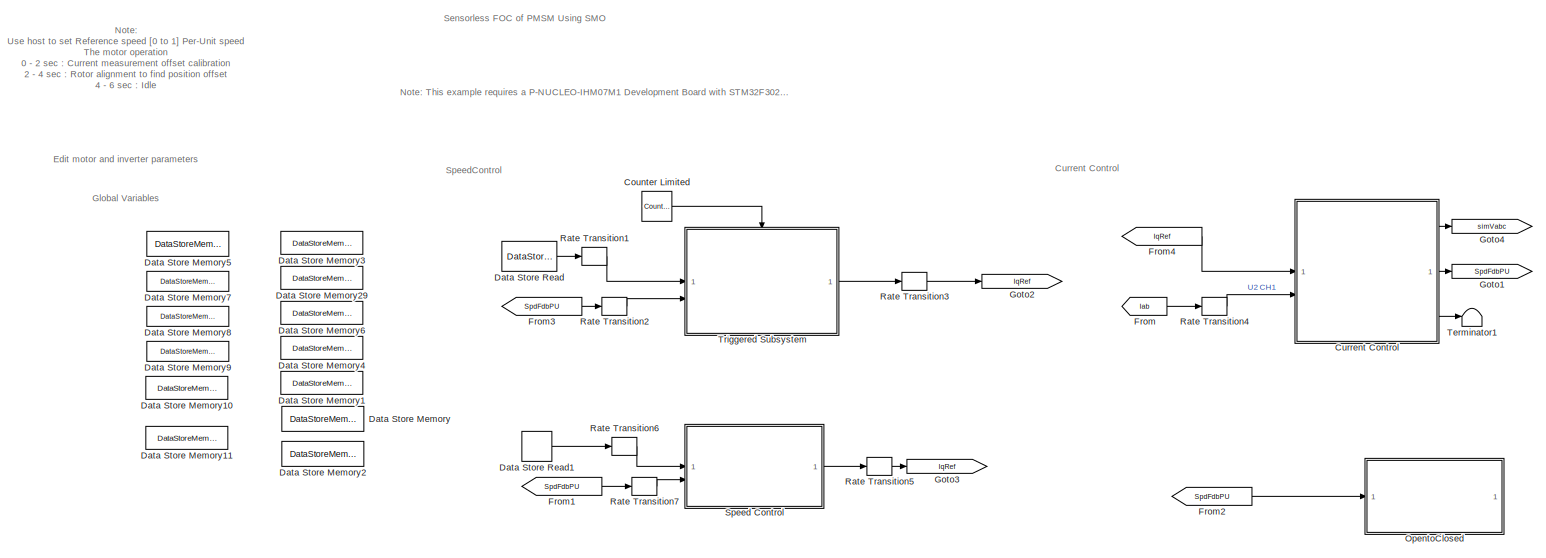
[diagram: root canvas - part 1/2, most of the canvas]
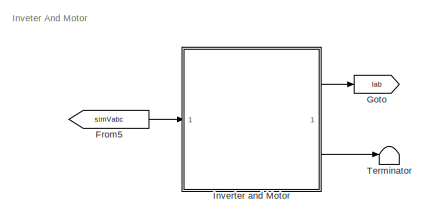
[diagram: root canvas - part 2/2, middle right region]
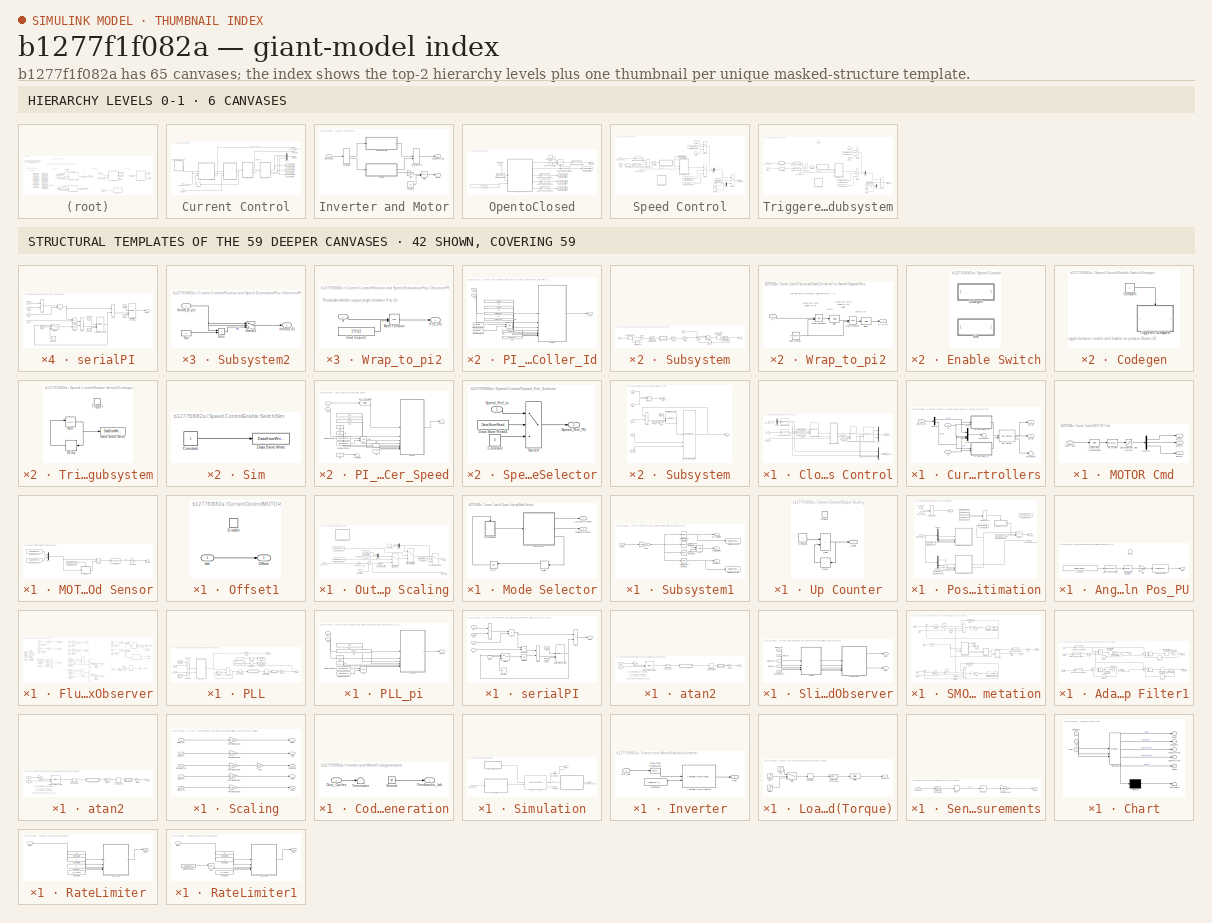
[diagram: thumbnail index - top-2 hierarchy levels (6 canvases) + 42 structural-template representatives of the remaining 59 canvases]
MODEL slx_b1277f1f082a
KIND model
CONFIG AbsTol = auto
CONFIG EnableMultiTasking = on
CONFIG FixedStep = .00005
CONFIG InitFcn = MBD_FOC_SENSORLESS_DATA;
CONFIG MaxStep = auto
CONFIG MinStep = auto
CONFIG PostLoadFcn = MBD_FOC_SENSORLESS_DATA;
CONFIG RelTol = 1e-3
CONFIG SampleTimeConstraint = Unconstrained
CONFIG SolverName = FixedStepDiscrete
CONFIG StartTime = 0.0
CONFIG StopTime = 4
WORKSPACE source: mxarray member
WORKSPACE mwTaskManagerKernelLatency = 1e-06
BLOCK [Reference] Counter Limited  REF=simulink/Sources/Counter
Limited
  Commented = on
  SourceBlock = simulink/Sources/Counter\nLimited
  SourceType = Counter Limited
BLOCK [SubSystem] Current Control
  VariantControl = Optimized
BLOCK [SubSystem] Current Control/Closed Loop Control
BLOCK [Reference] Current Control/Closed Loop Control/Clarke Transform  REF=mcbcontrolslib/Clarke Transform
  SourceBlock = mcbcontrolslib/Clarke Transform
  SourceType = Clarke Transform
BLOCK [SubSystem] Current Control/Closed Loop Control/Current_Controllers
BLOCK [Reference] Current Control/Closed Loop Control/Current_Controllers/DQ Limiter  REF=mcbcontrolslib/DQ Limiter
  SourceBlock = mcbcontrolslib/DQ Limiter
  SourceType = DQ Limiter
BLOCK [Demux] Current Control/Closed Loop Control/Current_Controllers/Demux
  Outputs = 2
BLOCK [Inport] Current Control/Closed Loop Control/Current_Controllers/Id
BLOCK [Inport] Current Control/Closed Loop Control/Current_Controllers/Idq_ref_PU
  Port = 3
BLOCK [Inport] Current Control/Closed Loop Control/Current_Controllers/Iq
  Port = 2
BLOCK [Mux] Current Control/Closed Loop Control/Current_Controllers/Mux
  DisplayOption = bar
BLOCK [SubSystem] Current Control/Closed Loop Control/Current_Controllers/PI_Controller_Id
  NameLocation = top
BLOCK [Logic] Current Control/Closed Loop Control/Current_Controllers/PI_Controller_Id/AND
  AllPortsSameDT = off
  IconShape = distinctive
  OutDataTypeStr = boolean
BLOCK [DataStoreRead] Current Control/Closed Loop Control/Current_Controllers/PI_Controller_Id/Data Store Read
  DataStoreName = Enable
  IndexOptions = Index vector (dialog)
  Indices = 1
  OutputSizes = 1
BLOCK [DataStoreRead] Current Control/Closed Loop Control/Current_Controllers/PI_Controller_Id/Data Store Read1
  DataStoreName = EnableFOC
  IndexOptions = Index vector (dialog)
  Indices = 1
  OutputSizes = 1
BLOCK [Inport] Current Control/Closed Loop Control/Current_Controllers/PI_Controller_Id/I_fb
  Port = 2
BLOCK [Inport] Current Control/Closed Loop Control/Current_Controllers/PI_Controller_Id/I_ref
BLOCK [Constant] Current Control/Closed Loop Control/Current_Controllers/PI_Controller_Id/Ki
  OutDataTypeStr = dataType
  SampleTime = -1
  Value = curPI.KiD
BLOCK [Constant] Current Control/Closed Loop Control/Current_Controllers/PI_Controller_Id/Ki1
  NameLocation = top
  OutDataTypeStr = dataType
  SampleTime = -1
  Value = curPI.UpLimitIntgD
BLOCK [Constant] Current Control/Closed Loop Control/Current_Controllers/PI_Controller_Id/Ki2
  NameLocation = top
  OutDataTypeStr = dataType
  SampleTime = -1
  Value = curPI.LoLimitIntgD
BLOCK [Constant] Current Control/Closed Loop Control/Current_Controllers/PI_Controller_Id/Ki3
  NameLocation = top
  OutDataTypeStr = dataType
  SampleTime = -1
  Value = curPI.LoLimitD
BLOCK [Constant] Current Control/Closed Loop Control/Current_Controllers/PI_Controller_Id/Ki4
  NameLocation = top
  OutDataTypeStr = dataType
  SampleTime = -1
  Value = curPI.UpLimitD
BLOCK [Constant] Current Control/Closed Loop Control/Current_Controllers/PI_Controller_Id/Kp
  NameLocation = top
  OutDataTypeStr = dataType
  SampleTime = -1
  Value = curPI.KpD
BLOCK [Outport] Current Control/Closed Loop Control/Current_Controllers/PI_Controller_Id/V_ref
  VectorParamsAs1DForOutWhenUnconnected = off
BLOCK [SubSystem] Current Control/Closed Loop Control/Current_Controllers/PI_Controller_Id/serialPI
BLOCK [Sum] Current Control/Closed Loop Control/Current_Controllers/PI_Controller_Id/serialPI/Add
  IconShape = rectangular
  Inputs = +-
BLOCK [Sum] Current Control/Closed Loop Control/Current_Controllers/PI_Controller_Id/serialPI/Add1
  IconShape = rectangular
BLOCK [Sum] Current Control/Closed Loop Control/Current_Controllers/PI_Controller_Id/serialPI/Add2
  IconShape = rectangular
BLOCK [Constant] Current Control/Closed Loop Control/Current_Controllers/PI_Controller_Id/serialPI/Constant
  NameLocation = top
  OutDataTypeStr = dataType
  Value = 0
BLOCK [Inport] Current Control/Closed Loop Control/Current_Controllers/PI_Controller_Id/serialPI/Fdb
  Port = 2
BLOCK [Inport] Current Control/Closed Loop Control/Current_Controllers/PI_Controller_Id/serialPI/Ki
  Port = 4
BLOCK [Inport] Current Control/Closed Loop Control/Current_Controllers/PI_Controller_Id/serialPI/Kp
  Port = 3
BLOCK [Inport] Current Control/Closed Loop Control/Current_Controllers/PI_Controller_Id/serialPI/LmLo
  Port = 9
BLOCK [Inport] Current Control/Closed Loop Control/Current_Controllers/PI_Controller_Id/serialPI/LmLoIntg
  Port = 6
BLOCK [Inport] Current Control/Closed Loop Control/Current_Controllers/PI_Controller_Id/serialPI/LmUp
  Port = 8
BLOCK [Inport] Current Control/Closed Loop Control/Current_Controllers/PI_Controller_Id/serialPI/LmUpIntg
  Port = 5
BLOCK [Outport] Current Control/Closed Loop Control/Current_Controllers/PI_Controller_Id/serialPI/Output
BLOCK [Product] Current Control/Closed Loop Control/Current_Controllers/PI_Controller_Id/serialPI/Product1
  OutDataTypeStr = dataType
BLOCK [Inport] Current Control/Closed Loop Control/Current_Controllers/PI_Controller_Id/serialPI/Ref
BLOCK [Inport] Current Control/Closed Loop Control/Current_Controllers/PI_Controller_Id/serialPI/RstUi
  Port = 7
BLOCK [Reference] Current Control/Closed Loop Control/Current_Controllers/PI_Controller_Id/serialPI/Saturation Dynamic  REF=simulink/Discontinuities/Saturation
Dynamic
  SourceBlock = simulink/Discontinuities/Saturation\nDynamic
  SourceType = Saturation Dynamic
BLOCK [Reference] Current Control/Closed Loop Control/Current_Controllers/PI_Controller_Id/serialPI/Saturation Dynamic1  REF=simulink/Discontinuities/Saturation
Dynamic
  SourceBlock = simulink/Discontinuities/Saturation\nDynamic
  SourceType = Saturation Dynamic
BLOCK [Switch] Current Control/Closed Loop Control/Current_Controllers/PI_Controller_Id/serialPI/Switch2
  Criteria = u2 > Threshold
  InputSameDT = off
  OutDataTypeStr = dataType
  SaturateOnIntegerOverflow = off
BLOCK [UnitDelay] Current Control/Closed Loop Control/Current_Controllers/PI_Controller_Id/serialPI/Unit Delay
  HasFrameUpgradeWarning = on
  SampleTime = -1
BLOCK [Product] Current Control/Closed Loop Control/Current_Controllers/PI_Controller_Id/serialPI/Up
  OutDataTypeStr = dataType
BLOCK [SubSystem] Current Control/Closed Loop Control/Current_Controllers/PI_Controller_Iq
  NameLocation = top
BLOCK [Logic] Current Control/Closed Loop Control/Current_Controllers/PI_Controller_Iq/AND
  AllPortsSameDT = off
  IconShape = distinctive
  OutDataTypeStr = boolean
BLOCK [DataStoreRead] Current Control/Closed Loop Control/Current_Controllers/PI_Controller_Iq/Data Store Read
  DataStoreName = Enable
  IndexOptions = Index vector (dialog)
  Indices = 1
  OutputSizes = 1
BLOCK [DataStoreRead] Current Control/Closed Loop Control/Current_Controllers/PI_Controller_Iq/Data Store Read1
  DataStoreName = EnableFOC
  IndexOptions = Index vector (dialog)
  Indices = 1
  OutputSizes = 1
BLOCK [Inport] Current Control/Closed Loop Control/Current_Controllers/PI_Controller_Iq/I_fb
  Port = 2
BLOCK [Inport] Current Control/Closed Loop Control/Current_Controllers/PI_Controller_Iq/I_ref
BLOCK [Constant] Current Control/Closed Loop Control/Current_Controllers/PI_Controller_Iq/Ki
  OutDataTypeStr = dataType
  SampleTime = -1
  Value = curPI.KiQ
BLOCK [Constant] Current Control/Closed Loop Control/Current_Controllers/PI_Controller_Iq/Ki1
  NameLocation = top
  OutDataTypeStr = dataType
  SampleTime = -1
  Value = curPI.UpLimitIntgQ
BLOCK [Constant] Current Control/Closed Loop Control/Current_Controllers/PI_Controller_Iq/Ki2
  NameLocation = top
  OutDataTypeStr = dataType
  SampleTime = -1
  Value = curPI.LoLimitIntgQ
BLOCK [Constant] Current Control/Closed Loop Control/Current_Controllers/PI_Controller_Iq/Ki3
  NameLocation = top
  OutDataTypeStr = dataType
  SampleTime = -1
  Value = curPI.LoLimitQ
BLOCK [Constant] Current Control/Closed Loop Control/Current_Controllers/PI_Controller_Iq/Ki4
  NameLocation = top
  OutDataTypeStr = dataType
  SampleTime = -1
  Value = curPI.UpLimitQ
BLOCK [Constant] Current Control/Closed Loop Control/Current_Controllers/PI_Controller_Iq/Kp
  NameLocation = top
  OutDataTypeStr = dataType
  SampleTime = -1
  Value = curPI.KpQ
BLOCK [Outport] Current Control/Closed Loop Control/Current_Controllers/PI_Controller_Iq/V_ref
  VectorParamsAs1DForOutWhenUnconnected = off
BLOCK [SubSystem] Current Control/Closed Loop Control/Current_Controllers/PI_Controller_Iq/serialPI
BLOCK [Sum] Current Control/Closed Loop Control/Current_Controllers/PI_Controller_Iq/serialPI/Add
  IconShape = rectangular
  Inputs = +-
BLOCK [Sum] Current Control/Closed Loop Control/Current_Controllers/PI_Controller_Iq/serialPI/Add1
  IconShape = rectangular
BLOCK [Sum] Current Control/Closed Loop Control/Current_Controllers/PI_Controller_Iq/serialPI/Add2
  IconShape = rectangular
BLOCK [Constant] Current Control/Closed Loop Control/Current_Controllers/PI_Controller_Iq/serialPI/Constant
  NameLocation = top
  OutDataTypeStr = dataType
  Value = 0
BLOCK [Inport] Current Control/Closed Loop Control/Current_Controllers/PI_Controller_Iq/serialPI/Fdb
  Port = 2
BLOCK [Inport] Current Control/Closed Loop Control/Current_Controllers/PI_Controller_Iq/serialPI/Ki
  Port = 4
BLOCK [Inport] Current Control/Closed Loop Control/Current_Controllers/PI_Controller_Iq/serialPI/Kp
  Port = 3
BLOCK [Inport] Current Control/Closed Loop Control/Current_Controllers/PI_Controller_Iq/serialPI/LmLo
  Port = 9
BLOCK [Inport] Current Control/Closed Loop Control/Current_Controllers/PI_Controller_Iq/serialPI/LmLoIntg
  Port = 6
BLOCK [Inport] Current Control/Closed Loop Control/Current_Controllers/PI_Controller_Iq/serialPI/LmUp
  Port = 8
BLOCK [Inport] Current Control/Closed Loop Control/Current_Controllers/PI_Controller_Iq/serialPI/LmUpIntg
  Port = 5
BLOCK [Outport] Current Control/Closed Loop Control/Current_Controllers/PI_Controller_Iq/serialPI/Output
BLOCK [Product] Current Control/Closed Loop Control/Current_Controllers/PI_Controller_Iq/serialPI/Product1
  OutDataTypeStr = dataType
BLOCK [Inport] Current Control/Closed Loop Control/Current_Controllers/PI_Controller_Iq/serialPI/Ref
BLOCK [Inport] Current Control/Closed Loop Control/Current_Controllers/PI_Controller_Iq/serialPI/RstUi
  Port = 7
BLOCK [Reference] Current Control/Closed Loop Control/Current_Controllers/PI_Controller_Iq/serialPI/Saturation Dynamic  REF=simulink/Discontinuities/Saturation
Dynamic
  SourceBlock = simulink/Discontinuities/Saturation\nDynamic
  SourceType = Saturation Dynamic
BLOCK [Reference] Current Control/Closed Loop Control/Current_Controllers/PI_Controller_Iq/serialPI/Saturation Dynamic1  REF=simulink/Discontinuities/Saturation
Dynamic
  SourceBlock = simulink/Discontinuities/Saturation\nDynamic
  SourceType = Saturation Dynamic
BLOCK [Switch] Current Control/Closed Loop Control/Current_Controllers/PI_Controller_Iq/serialPI/Switch2
  Criteria = u2 > Threshold
  InputSameDT = off
  OutDataTypeStr = dataType
  SaturateOnIntegerOverflow = off
BLOCK [UnitDelay] Current Control/Closed Loop Control/Current_Controllers/PI_Controller_Iq/serialPI/Unit Delay
  HasFrameUpgradeWarning = on
  SampleTime = -1
BLOCK [Product] Current Control/Closed Loop Control/Current_Controllers/PI_Controller_Iq/serialPI/Up
  OutDataTypeStr = dataType
BLOCK [Terminator] Current Control/Closed Loop Control/Current_Controllers/Terminator
BLOCK [Terminator] Current Control/Closed Loop Control/Current_Controllers/Terminator1
BLOCK [Outport] Current Control/Closed Loop Control/Current_Controllers/Vd_ref
  VectorParamsAs1DForOutWhenUnconnected = off
BLOCK [Outport] Current Control/Closed Loop Control/Current_Controllers/Vq_ref
  Port = 2
  VectorParamsAs1DForOutWhenUnconnected = off
BLOCK [Demux] Current Control/Closed Loop Control/Demux
  Outputs = 2
BLOCK [From] Current Control/Closed Loop Control/From
  GotoTag = sinTheta
BLOCK [From] Current Control/Closed Loop Control/From1
  GotoTag = cosTheta
BLOCK [Goto] Current Control/Closed Loop Control/Goto
  GotoTag = sinTheta
BLOCK [Goto] Current Control/Closed Loop Control/Goto1
  GotoTag = cosTheta
BLOCK [Inport] Current Control/Closed Loop Control/Iab_meas_PU
BLOCK [Inport] Current Control/Closed Loop Control/Idq_ref_PU
  Port = 3
BLOCK [Reference] Current Control/Closed Loop Control/Inverse Park Transform  REF=mcbcontrolslib/Inverse Park Transform
  SourceBlock = mcbcontrolslib/Inverse Park Transform
  SourceType = Inverse Park Transform
BLOCK [Mux] Current Control/Closed Loop Control/Mux
  DisplayOption = bar
BLOCK [Mux] Current Control/Closed Loop Control/Mux1
  DisplayOption = bar
  Inputs = 3
BLOCK [Reference] Current Control/Closed Loop Control/Park Transform  REF=mcbcontrolslib/Park Transform
  SourceBlock = mcbcontrolslib/Park Transform
  SourceType = Park Transform
BLOCK [Inport] Current Control/Closed Loop Control/Pos_PU
  Port = 2
BLOCK [Reference] Current Control/Closed Loop Control/Sine-Cosine Lookup  REF=mcbcontrolslib/Sine-Cosine Lookup
  SourceBlock = mcbcontrolslib/Sine-Cosine Lookup
  SourceType = Sine-Cosine Lookup
BLOCK [Reference] Current Control/Closed Loop Control/Space Vector Generator  REF=mcbcontrolslib/PWM Reference Generator
  SourceBlock = mcbcontrolslib/PWM Reference Generator
  SourceType = PWM Modulation
BLOCK [Outport] Current Control/Closed Loop Control/VIalphabeta_Fb
  Port = 2
BLOCK [Outport] Current Control/Closed Loop Control/Vabc in PU
  VectorParamsAs1DForOutWhenUnconnected = off
BLOCK [DataStoreWrite] Current Control/Data Store Write
  DataStoreElements = Pwm1Duty
  DataStoreName = Pwm1Duty
  IndexOptions = Index vector (dialog)
  Indices = 1
  OutputSizes = 1
BLOCK [DataStoreWrite] Current Control/Data Store Write1
  DataStoreElements = Pwm2Duty
  DataStoreName = Pwm2Duty
  IndexOptions = Index vector (dialog)
  Indices = 1
  OutputSizes = 1
BLOCK [DataStoreWrite] Current Control/Data Store Write2
  DataStoreElements = Pwm3Duty
  DataStoreName = Pwm3Duty
  IndexOptions = Index vector (dialog)
  Indices = 1
  OutputSizes = 1
BLOCK [Delay] Current Control/Delay
  DelayLength = 1
  InputPortMap = u0
  NameLocation = top
BLOCK [Inport] Current Control/Feedbacks_Iab
  Port = 2
BLOCK [Inport] Current Control/Idq_Ref
BLOCK [SubSystem] Current Control/MOTOR - Board Sensor
BLOCK [Sum] Current Control/MOTOR - Board Sensor/Add2
  IconShape = rectangular
  Inputs = +-
  OutDataTypeStr = int16
  RndMeth = Simplest
BLOCK [DataStoreRead] Current Control/MOTOR - Board Sensor/Data Store Read
  DataStoreName = EnCurOffset
  IndexOptions = Index vector (dialog)
  Indices = 1
  OutputSizes = 1
BLOCK [DataStoreRead] Current Control/MOTOR - Board Sensor/Data Store Read1
  DataStoreName = ADC_IA
  IndexOptions = Index vector (dialog)
  Indices = 1
  OutputSizes = 1
BLOCK [DataStoreRead] Current Control/MOTOR - Board Sensor/Data Store Read2
  DataStoreName = ADC_IB
  IndexOptions = Index vector (dialog)
  Indices = 1
  OutputSizes = 1
BLOCK [Outport] Current Control/MOTOR - Board Sensor/Iab_PU
  OutDataTypeStr = dataType
  VectorParamsAs1DForOutWhenUnconnected = off
BLOCK [Mux] Current Control/MOTOR - Board Sensor/Mux2
  DisplayOption = bar
  Inputs = 2
BLOCK [SubSystem] Current Control/MOTOR - Board Sensor/Offset1
BLOCK [EnablePort] Current Control/MOTOR - Board Sensor/Offset1/Enable
BLOCK [Inport] Current Control/MOTOR - Board Sensor/Offset1/Iab
BLOCK [Outport] Current Control/MOTOR - Board Sensor/Offset1/Offset
BLOCK [DataTypeConversion] Current Control/MOTOR - Board Sensor/Scale Ia Ib to (A)
  ConvertRealWorld = Stored Integer (SI)
  OutDataTypeStr = fixdt(1,16, 1.65/2048 / (inverter.Rshunt * inverter.opamp_Gain),0)
  RndMeth = Floor
  SaturateOnIntegerOverflow = off
BLOCK [Gain] Current Control/MOTOR - Board Sensor/To Per-Unit
  Gain = inverter.invertingAmp/Ibase
  OutDataTypeStr = dataType
  OutMax = 1
  OutMin = -1
  RndMeth = Zero
BLOCK [SubSystem] Current Control/MOTOR Cmd
BLOCK [Bias] Current Control/MOTOR Cmd/Dead time Compensation
  Bias = round( (inverter.deadtime/5e-5) *PWM1max )
  SaturateOnIntegerOverflow = off
BLOCK [Demux] Current Control/MOTOR Cmd/Demux
  Outputs = 3
BLOCK [Inport] Current Control/MOTOR Cmd/PWM (abc)
BLOCK [Saturate] Current Control/MOTOR Cmd/Saturation low side turn on
  LowerLimit = round( (inverter.deadtime/5e-5) *PWM1max )* 2
  UpperLimit = PWM1max
BLOCK [DataTypeConversion] Current Control/MOTOR Cmd/int to uint
  ConvertRealWorld = Stored Integer (SI)
  OutDataTypeStr = uint16
  RndMeth = Floor
  SaturateOnIntegerOverflow = off
BLOCK [Outport] Current Control/MOTOR Cmd/pwm1
  OutDataTypeStr = uint16
BLOCK [Outport] Current Control/MOTOR Cmd/pwm2
  OutDataTypeStr = uint16
  Port = 2
BLOCK [Outport] Current Control/MOTOR Cmd/pwm3
  OutDataTypeStr = uint16
  Port = 3
BLOCK [Mux] Current Control/Mux1
  DisplayOption = bar
  Inputs = 3
BLOCK [SubSystem] Current Control/Output Scaling
BLOCK [Constant] Current Control/Output Scaling/Constant
  OutDataTypeStr = dataType
  SampleTime = -1
  Value = 0.5
BLOCK [Constant] Current Control/Output Scaling/Constant2
  OutDataTypeStr = Inherit: Inherit via back propagation
  Value = 0
BLOCK [Constant] Current Control/Output Scaling/Constant3
  OutDataTypeStr = Inherit: Inherit via back propagation
  Value = 1371/4
BLOCK [Constant] Current Control/Output Scaling/Constant4
  OutDataTypeStr = Inherit: Inherit via back propagation
  Value = 2128/4
BLOCK [DataStoreRead] Current Control/Output Scaling/Data Store Read
  DataStoreName = EnCurOffset
  IndexOptions = Index vector (dialog)
  Indices = 1
  OutputSizes = 1
BLOCK [DataStoreRead] Current Control/Output Scaling/Data Store Read1
  DataStoreName = EnPosOffset
  IndexOptions = Index vector (dialog)
  Indices = 1
  OutputSizes = 1
BLOCK [DataStoreRead] Current Control/Output Scaling/Enable
  DataStoreName = Enable
  IndexOptions = Index vector (dialog)
  Indices = 1
  OutputSizes = 1
BLOCK [Switch] Current Control/Output Scaling/Enable motor control
  Criteria = u2 ~= 0
  InputSameDT = off
  SaturateOnIntegerOverflow = off
  Threshold = 250
BLOCK [SubSystem] Current Control/Output Scaling/Mode Selector
  Commented = on
BLOCK [Outport] Current Control/Output Scaling/Mode Selector/CurrentOffsetEn
BLOCK [Delay] Current Control/Output Scaling/Mode Selector/Delay
  DelayLength = 1
  InputPortMap = u0
BLOCK [Logic] Current Control/Output Scaling/Mode Selector/NOT
  AllPortsSameDT = off
  IconShape = distinctive
  Operator = NOT
  OutDataTypeStr = boolean
BLOCK [Outport] Current Control/Output Scaling/Mode Selector/PositionOffsetEn
  Port = 2
BLOCK [SubSystem] Current Control/Output Scaling/Mode Selector/Subsystem1
BLOCK [Logic] Current Control/Output Scaling/Mode Selector/Subsystem1/AND
  AllPortsSameDT = off
  IconShape = distinctive
  OutDataTypeStr = boolean
BLOCK [Reference] Current Control/Output Scaling/Mode Selector/Subsystem1/Compare To Constant  REF=simulink/Logic and Bit
Operations/Compare
To Constant
  SourceBlock = simulink/Logic and Bit\nOperations/Compare\nTo Constant
  SourceType = Compare To Constant
BLOCK [Reference] Current Control/Output Scaling/Mode Selector/Subsystem1/Compare To Constant1  REF=simulink/Logic and Bit
Operations/Compare
To Constant
  SourceBlock = simulink/Logic and Bit\nOperations/Compare\nTo Constant
  SourceType = Compare To Constant
BLOCK [Reference] Current Control/Output Scaling/Mode Selector/Subsystem1/Compare To Constant2  REF=simulink/Logic and Bit
Operations/Compare
To Constant
  SourceBlock = simulink/Logic and Bit\nOperations/Compare\nTo Constant
  SourceType = Compare To Constant
BLOCK [Reference] Current Control/Output Scaling/Mode Selector/Subsystem1/Compare To Constant3  REF=simulink/Logic and Bit
Operations/Compare
To Constant
  SourceBlock = simulink/Logic and Bit\nOperations/Compare\nTo Constant
  SourceType = Compare To Constant
BLOCK [Inport] Current Control/Output Scaling/Mode Selector/Subsystem1/Count
BLOCK [Outport] Current Control/Output Scaling/Mode Selector/Subsystem1/Current Offset
BLOCK [DataStoreWrite] Current Control/Output Scaling/Mode Selector/Subsystem1/Data Store Write
  DataStoreName = EnCurOffset
  IndexOptions = Index vector (dialog)
  Indices = 1
  OutputSizes = 1
BLOCK [DataStoreWrite] Current Control/Output Scaling/Mode Selector/Subsystem1/Data Store Write1
  DataStoreName = EnableFOC
  IndexOptions = Index vector (dialog)
  Indices = 1
  OutputSizes = 1
BLOCK [Outport] Current Control/Output Scaling/Mode Selector/Subsystem1/EnableFOC
  Port = 3
BLOCK [Gain] Current Control/Output Scaling/Mode Selector/Subsystem1/Gain
  Gain = 1/PWM_frequency
  OutDataTypeStr = dataType2
  RndMeth = Simplest
BLOCK [Outport] Current Control/Output Scaling/Mode Selector/Subsystem1/PositionOffset
  Port = 2
BLOCK [SubSystem] Current Control/Output Scaling/Mode Selector/Up Counter
BLOCK [Sum] Current Control/Output Scaling/Mode Selector/Up Counter/Add1
  IconShape = rectangular
  SaturateOnIntegerOverflow = on
BLOCK [Constant] Current Control/Output Scaling/Mode Selector/Up Counter/Constant
  OutDataTypeStr = uint32
BLOCK [Outport] Current Control/Output Scaling/Mode Selector/Up Counter/Count
  InitialOutput = 0
BLOCK [Delay] Current Control/Output Scaling/Mode Selector/Up Counter/Delay
  DelayLength = 1
  InputPortMap = u0
BLOCK [EnablePort] Current Control/Output Scaling/Mode Selector/Up Counter/Enable
  StatesWhenEnabling = reset
BLOCK [Mux] Current Control/Output Scaling/Mux1
  DisplayOption = bar
  Inputs = 3
BLOCK [Mux] Current Control/Output Scaling/Mux2
  DisplayOption = bar
  Inputs = 3
BLOCK [Gain] Current Control/Output Scaling/One_by_Two
  Gain = 0.5
  OutDataTypeStr = Inherit: Same as input
  RndMeth = Simplest
BLOCK [Outport] Current Control/Output Scaling/PWM
  Port = 2
BLOCK [Gain] Current Control/Output Scaling/Scale_to_PWM_Counter_PRD
  Gain = PWM1max + 1
  OutDataTypeStr = uint16
  RndMeth = Simplest
BLOCK [Sum] Current Control/Output Scaling/Sum
  AccumDataTypeStr = Inherit: Same as first input
  Inputs = |++
BLOCK [Switch] Current Control/Output Scaling/Switch for Current offset calibration
  Criteria = u2 ~= 0
  InputSameDT = off
  SaturateOnIntegerOverflow = off
  Threshold = 250
BLOCK [Switch] Current Control/Output Scaling/Switch for rotor alignment
  Criteria = u2 ~= 0
  InputSameDT = off
  SaturateOnIntegerOverflow = off
  Threshold = 250
BLOCK [Inport] Current Control/Output Scaling/Vabc_PU
BLOCK [Outport] Current Control/Output Scaling/Vabc_Sim
BLOCK [SubSystem] Current Control/Position and Speed Estimation
BLOCK [SubSystem] Current Control/Position and Speed Estimation/AngleGen Pos_PU
  TreatAsAtomicUnit = on
BLOCK [Constant] Current Control/Position and Speed Estimation/AngleGen Pos_PU/Constant
  OutDataTypeStr = dataType
  Value = Speed_Ref_openLoop/pmsm.N_max
BLOCK [DataTypeConversion] Current Control/Position and Speed Estimation/AngleGen Pos_PU/Data Type Conversion
  ConvertRealWorld = Stored Integer (SI)
  OutDataTypeStr = fixdt(1,32,20)
  RndMeth = Floor
  SaturateOnIntegerOverflow = off
BLOCK [DiscreteIntegrator] Current Control/Position and Speed Estimation/AngleGen Pos_PU/Discrete-Time Integrator
  ICPrevOutput = DiscIntNeverNeededParam
  ICPrevScaledInput = DiscIntNeverNeededParam
  InitialConditionSetting = Auto
  IntegratorMethod = Accumulation: Forward Euler
  LimitOutput = on
  LowerSaturationLimit = 0
  OutDataTypeStr = fixdt(1,32,20)
  SampleTime = -1
  UpperSaturationLimit = 500/Nbase
  gainval = 0.006
BLOCK [Gain] Current Control/Position and Speed Estimation/AngleGen Pos_PU/Gain
  Gain = Ts*pmsm.N_max*pmsm.p/60
  OutDataTypeStr = dataType
  ParamDataTypeStr = Inherit: Same as input
BLOCK [Reference] Current Control/Position and Speed Estimation/AngleGen Pos_PU/Position Generator  REF=mcbcontrolslib/Position Generator
  SourceBlock = mcbcontrolslib/Position Generator
  SourceType = Position Generator
BLOCK [ResetPort] Current Control/Position and Speed Estimation/AngleGen Pos_PU/Reset
  DisableCoverage = on
BLOCK [Outport] Current Control/Position and Speed Estimation/AngleGen Pos_PU/eps
BLOCK [DataStoreRead] Current Control/Position and Speed Estimation/Data Store Read
  DataStoreName = SpeedRef
  IndexOptions = Index vector (dialog)
  Indices = 1
  OutputSizes = 1
BLOCK [DataStoreRead] Current Control/Position and Speed Estimation/Data Store Read1
  DataStoreName = EnableFOC
  IndexOptions = Index vector (dialog)
  Indices = 1
  OutputSizes = 1
BLOCK [DataStoreRead] Current Control/Position and Speed Estimation/Data Store Read2
  DataStoreName = Enable
  IndexOptions = Index vector (dialog)
  Indices = 1
  OutputSizes = 1
BLOCK [DataStoreRead] Current Control/Position and Speed Estimation/Data Store Read3
  DataStoreName = EnableClosedLoop
  IndexOptions = Index vector (dialog)
  Indices = 1
  OutputSizes = 1
BLOCK [DataStoreRead] Current Control/Position and Speed Estimation/Data Store Read4
  Commented = on
  DataStoreName = EnPosOffset
  IndexOptions = Index vector (dialog)
  Indices = 1
  OutputSizes = 1
BLOCK [DataStoreRead] Current Control/Position and Speed Estimation/Data Store Read5
  DataStoreName = SpeedRef
  IndexOptions = Index vector (dialog)
  Indices = 1
  OutputSizes = 1
BLOCK [DataStoreWrite] Current Control/Position and Speed Estimation/Data Store Write
  DataStoreName = smoAnglePU
  IndexOptions = Index vector (dialog)
  Indices = 1
  OutputSizes = 1
BLOCK [Demux] Current Control/Position and Speed Estimation/Demux
BLOCK [Demux] Current Control/Position and Speed Estimation/Demux1
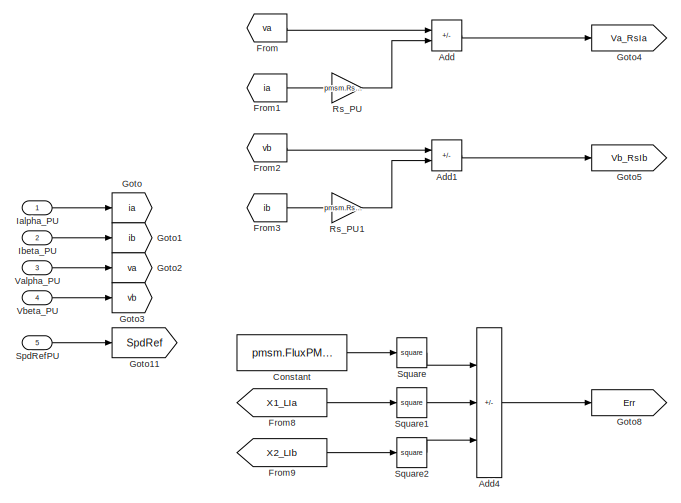
[diagram: Current Control/Position and Speed Estimation/Flux  Observer - part 1/2, middle left region]
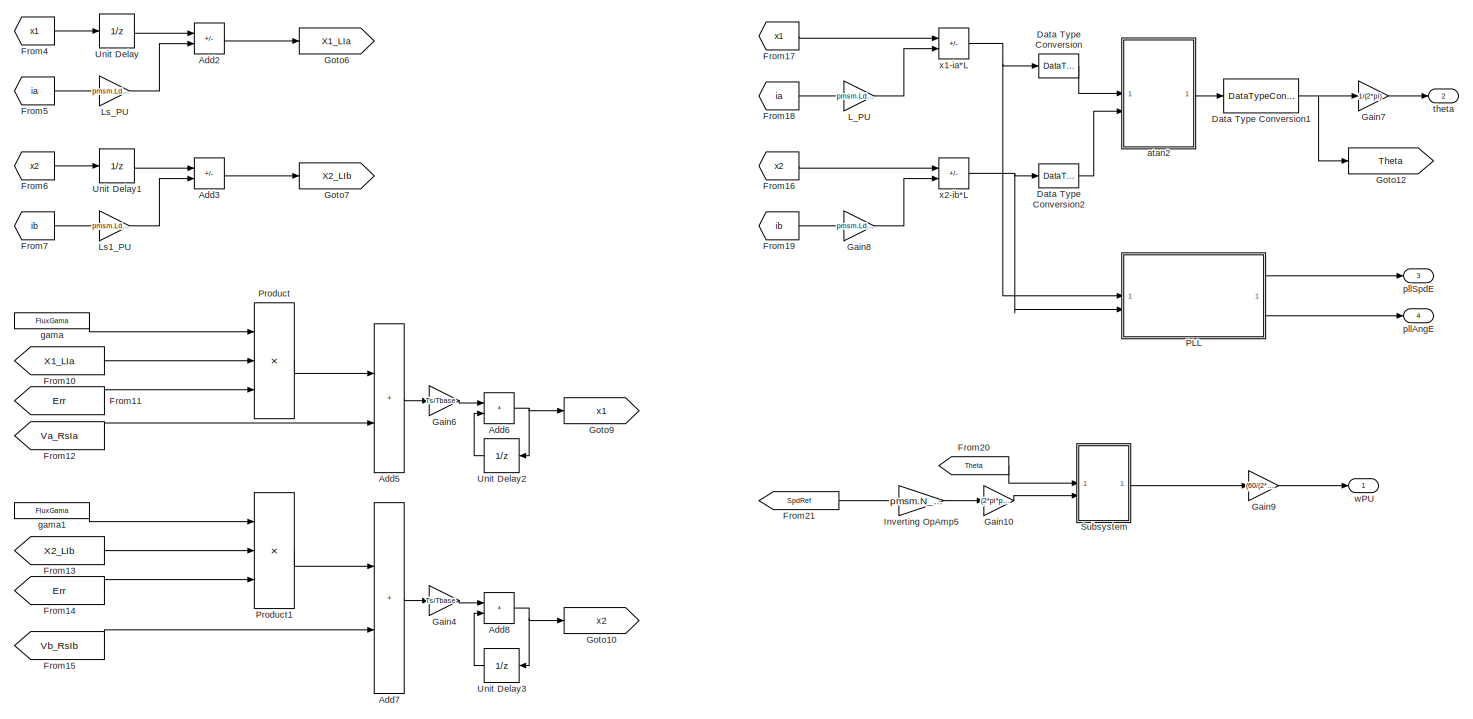
[diagram: Current Control/Position and Speed Estimation/Flux  Observer - part 2/2, right side, full height]
BLOCK [SubSystem] Current Control/Position and Speed Estimation/Flux  Observer
BLOCK [Sum] Current Control/Position and Speed Estimation/Flux  Observer/Add
  IconShape = rectangular
  Inputs = +-
BLOCK [Sum] Current Control/Position and Speed Estimation/Flux  Observer/Add1
  IconShape = rectangular
  Inputs = +-
BLOCK [Sum] Current Control/Position and Speed Estimation/Flux  Observer/Add2
  IconShape = rectangular
  Inputs = +-
BLOCK [Sum] Current Control/Position and Speed Estimation/Flux  Observer/Add3
  IconShape = rectangular
  Inputs = +-
BLOCK [Sum] Current Control/Position and Speed Estimation/Flux  Observer/Add4
  IconShape = rectangular
  Inputs = +--
BLOCK [Sum] Current Control/Position and Speed Estimation/Flux  Observer/Add5
  IconShape = rectangular
BLOCK [Sum] Current Control/Position and Speed Estimation/Flux  Observer/Add6
  IconShape = rectangular
BLOCK [Sum] Current Control/Position and Speed Estimation/Flux  Observer/Add7
  IconShape = rectangular
BLOCK [Sum] Current Control/Position and Speed Estimation/Flux  Observer/Add8
  IconShape = rectangular
BLOCK [Constant] Current Control/Position and Speed Estimation/Flux  Observer/Constant
  OutDataTypeStr = dataType
  Value = pmsm.FluxPM/Phibase
BLOCK [DataTypeConversion] Current Control/Position and Speed Estimation/Flux  Observer/Data Type Conversion
  OutDataTypeStr = dataType2
  RndMeth = Floor
  SaturateOnIntegerOverflow = off
BLOCK [DataTypeConversion] Current Control/Position and Speed Estimation/Flux  Observer/Data Type Conversion1
  OutDataTypeStr = fixdt(1,16,12)
  RndMeth = Floor
  SaturateOnIntegerOverflow = off
BLOCK [DataTypeConversion] Current Control/Position and Speed Estimation/Flux  Observer/Data Type Conversion2
  OutDataTypeStr = dataType2
  RndMeth = Floor
  SaturateOnIntegerOverflow = off
BLOCK [From] Current Control/Position and Speed Estimation/Flux  Observer/From
  GotoTag = va
BLOCK [From] Current Control/Position and Speed Estimation/Flux  Observer/From1
  GotoTag = ia
BLOCK [From] Current Control/Position and Speed Estimation/Flux  Observer/From10
  GotoTag = X1_LIa
BLOCK [From] Current Control/Position and Speed Estimation/Flux  Observer/From11
  GotoTag = Err
BLOCK [From] Current Control/Position and Speed Estimation/Flux  Observer/From12
  GotoTag = Va_RsIa
BLOCK [From] Current Control/Position and Speed Estimation/Flux  Observer/From13
  GotoTag = X2_LIb
BLOCK [From] Current Control/Position and Speed Estimation/Flux  Observer/From14
  GotoTag = Err
BLOCK [From] Current Control/Position and Speed Estimation/Flux  Observer/From15
  GotoTag = Vb_RsIb
BLOCK [From] Current Control/Position and Speed Estimation/Flux  Observer/From16
  GotoTag = x2
BLOCK [From] Current Control/Position and Speed Estimation/Flux  Observer/From17
  GotoTag = x1
BLOCK [From] Current Control/Position and Speed Estimation/Flux  Observer/From18
  GotoTag = ia
BLOCK [From] Current Control/Position and Speed Estimation/Flux  Observer/From19
  GotoTag = ib
BLOCK [From] Current Control/Position and Speed Estimation/Flux  Observer/From2
  GotoTag = vb
BLOCK [From] Current Control/Position and Speed Estimation/Flux  Observer/From20
  GotoTag = Theta
BLOCK [From] Current Control/Position and Speed Estimation/Flux  Observer/From21
  GotoTag = SpdRef
BLOCK [From] Current Control/Position and Speed Estimation/Flux  Observer/From3
  GotoTag = ib
BLOCK [From] Current Control/Position and Speed Estimation/Flux  Observer/From4
  GotoTag = x1
BLOCK [From] Current Control/Position and Speed Estimation/Flux  Observer/From5
  GotoTag = ia
BLOCK [From] Current Control/Position and Speed Estimation/Flux  Observer/From6
  GotoTag = x2
BLOCK [From] Current Control/Position and Speed Estimation/Flux  Observer/From7
  GotoTag = ib
BLOCK [From] Current Control/Position and Speed Estimation/Flux  Observer/From8
  GotoTag = X1_LIa
BLOCK [From] Current Control/Position and Speed Estimation/Flux  Observer/From9
  GotoTag = X2_LIb
BLOCK [Gain] Current Control/Position and Speed Estimation/Flux  Observer/Gain10
  Gain = (2*pi*pmsm.p)/60
  OutDataTypeStr = fixdt(1,16,3)
BLOCK [Gain] Current Control/Position and Speed Estimation/Flux  Observer/Gain4
  Gain = Ts/Tbase
  OutDataTypeStr = dataType
BLOCK [Gain] Current Control/Position and Speed Estimation/Flux  Observer/Gain6
  Gain = Ts/Tbase
  OutDataTypeStr = dataType
BLOCK [Gain] Current Control/Position and Speed Estimation/Flux  Observer/Gain7
  Gain = 1/(2*pi)
  OutDataTypeStr = dataType
BLOCK [Gain] Current Control/Position and Speed Estimation/Flux  Observer/Gain8
  Gain = pmsm.Ld/Lbase
  OutDataTypeStr = dataType
BLOCK [Gain] Current Control/Position and Speed Estimation/Flux  Observer/Gain9
  Gain = (60/(2*pi*pmsm.p))/pmsm.N_max
  OutDataTypeStr = dataType
BLOCK [Goto] Current Control/Position and Speed Estimation/Flux  Observer/Goto
  GotoTag = ia
BLOCK [Goto] Current Control/Position and Speed Estimation/Flux  Observer/Goto1
  GotoTag = ib
BLOCK [Goto] Current Control/Position and Speed Estimation/Flux  Observer/Goto10
  GotoTag = x2
BLOCK [Goto] Current Control/Position and Speed Estimation/Flux  Observer/Goto11
  GotoTag = SpdRef
BLOCK [Goto] Current Control/Position and Speed Estimation/Flux  Observer/Goto12
  GotoTag = Theta
BLOCK [Goto] Current Control/Position and Speed Estimation/Flux  Observer/Goto2
  GotoTag = va
BLOCK [Goto] Current Control/Position and Speed Estimation/Flux  Observer/Goto3
  GotoTag = vb
BLOCK [Goto] Current Control/Position and Speed Estimation/Flux  Observer/Goto4
  GotoTag = Va_RsIa
BLOCK [Goto] Current Control/Position and Speed Estimation/Flux  Observer/Goto5
  GotoTag = Vb_RsIb
BLOCK [Goto] Current Control/Position and Speed Estimation/Flux  Observer/Goto6
  GotoTag = X1_LIa
BLOCK [Goto] Current Control/Position and Speed Estimation/Flux  Observer/Goto7
  GotoTag = X2_LIb
BLOCK [Goto] Current Control/Position and Speed Estimation/Flux  Observer/Goto8
  GotoTag = Err
BLOCK [Goto] Current Control/Position and Speed Estimation/Flux  Observer/Goto9
  GotoTag = x1
BLOCK [Inport] Current Control/Position and Speed Estimation/Flux  Observer/Ialpha_PU
  NameLocation = top
BLOCK [Inport] Current Control/Position and Speed Estimation/Flux  Observer/Ibeta_PU
  NameLocation = top
  Port = 2
BLOCK [Gain] Current Control/Position and Speed Estimation/Flux  Observer/Inverting OpAmp5
  Gain = pmsm.N_max
  OutDataTypeStr = fixdt(1,16,2)
  RndMeth = Simplest
BLOCK [Gain] Current Control/Position and Speed Estimation/Flux  Observer/L_PU
  Gain = pmsm.Ld/Lbase
  OutDataTypeStr = dataType
BLOCK [Gain] Current Control/Position and Speed Estimation/Flux  Observer/Ls1_PU
  Gain = pmsm.Ld/Lbase
  OutDataTypeStr = dataType
BLOCK [Gain] Current Control/Position and Speed Estimation/Flux  Observer/Ls_PU
  Gain = pmsm.Ld/Lbase
  OutDataTypeStr = dataType
BLOCK [SubSystem] Current Control/Position and Speed Estimation/Flux  Observer/PLL
BLOCK [DataTypeConversion] Current Control/Position and Speed Estimation/Flux  Observer/PLL/Data Type Conversion1
  ConvertRealWorld = Stored Integer (SI)
  OutDataTypeStr = uint16
  RndMeth = Floor
  SaturateOnIntegerOverflow = off
BLOCK [DataTypeConversion] Current Control/Position and Speed Estimation/Flux  Observer/PLL/Data Type Conversion3
  OutDataTypeStr = fixdt(1,16,12)
  RndMeth = Floor
  SaturateOnIntegerOverflow = off
BLOCK [Gain] Current Control/Position and Speed Estimation/Flux  Observer/PLL/Gain1
  Gain = 600/pmsm.p
  OutDataTypeStr = dataType
BLOCK [Goto] Current Control/Position and Speed Estimation/Flux  Observer/PLL/Goto11
  GotoTag = sinEst
BLOCK [Goto] Current Control/Position and Speed Estimation/Flux  Observer/PLL/Goto12
  GotoTag = cosEst
BLOCK [Memory] Current Control/Position and Speed Estimation/Flux  Observer/PLL/Memory
BLOCK [Memory] Current Control/Position and Speed Estimation/Flux  Observer/PLL/Memory1
BLOCK [SubSystem] Current Control/Position and Speed Estimation/Flux  Observer/PLL/PLL_pi
BLOCK [Logic] Current Control/Position and Speed Estimation/Flux  Observer/PLL/PLL_pi/AND
  AllPortsSameDT = off
  IconShape = distinctive
  OutDataTypeStr = boolean
BLOCK [DataStoreRead] Current Control/Position and Speed Estimation/Flux  Observer/PLL/PLL_pi/Data Store Read1
  DataStoreName = EnableFOC
  IndexOptions = Index vector (dialog)
  Indices = 1
  OutputSizes = 1
BLOCK [DataStoreRead] Current Control/Position and Speed Estimation/Flux  Observer/PLL/PLL_pi/Data Store Read2
  DataStoreName = Enable
  IndexOptions = Index vector (dialog)
  Indices = 1
  OutputSizes = 1
BLOCK [Inport] Current Control/Position and Speed Estimation/Flux  Observer/PLL/PLL_pi/Fdb
  Port = 2
BLOCK [Constant] Current Control/Position and Speed Estimation/Flux  Observer/PLL/PLL_pi/Ki1
  NameLocation = top
  OutDataTypeStr = dataType
  SampleTime = -1
  Value = 0.0001
BLOCK [Constant] Current Control/Position and Speed Estimation/Flux  Observer/PLL/PLL_pi/Ki3
  NameLocation = top
  OutDataTypeStr = dataType
  SampleTime = -1
BLOCK [Constant] Current Control/Position and Speed Estimation/Flux  Observer/PLL/PLL_pi/Ki4
  NameLocation = top
  OutDataTypeStr = dataType
  SampleTime = -1
  Value = -1
BLOCK [Constant] Current Control/Position and Speed Estimation/Flux  Observer/PLL/PLL_pi/Kp1
  NameLocation = top
  OutDataTypeStr = dataType
  SampleTime = -1
  Value = 0.02
BLOCK [Inport] Current Control/Position and Speed Estimation/Flux  Observer/PLL/PLL_pi/Ref
BLOCK [Outport] Current Control/Position and Speed Estimation/Flux  Observer/PLL/PLL_pi/pll_spd
  VectorParamsAs1DForOutWhenUnconnected = off
BLOCK [SubSystem] Current Control/Position and Speed Estimation/Flux  Observer/PLL/PLL_pi/serialPI
BLOCK [Sum] Current Control/Position and Speed Estimation/Flux  Observer/PLL/PLL_pi/serialPI/Add
  IconShape = rectangular
  Inputs = +-
BLOCK [Sum] Current Control/Position and Speed Estimation/Flux  Observer/PLL/PLL_pi/serialPI/Add1
  IconShape = rectangular
BLOCK [Sum] Current Control/Position and Speed Estimation/Flux  Observer/PLL/PLL_pi/serialPI/Add2
  IconShape = rectangular
BLOCK [Constant] Current Control/Position and Speed Estimation/Flux  Observer/PLL/PLL_pi/serialPI/Constant
  NameLocation = top
  OutDataTypeStr = dataType
  Value = 0
BLOCK [Inport] Current Control/Position and Speed Estimation/Flux  Observer/PLL/PLL_pi/serialPI/Fdb
  Port = 2
BLOCK [Inport] Current Control/Position and Speed Estimation/Flux  Observer/PLL/PLL_pi/serialPI/Ki
  Port = 4
BLOCK [Inport] Current Control/Position and Speed Estimation/Flux  Observer/PLL/PLL_pi/serialPI/Kp
  Port = 3
BLOCK [Inport] Current Control/Position and Speed Estimation/Flux  Observer/PLL/PLL_pi/serialPI/LmLo
  Port = 6
BLOCK [Inport] Current Control/Position and Speed Estimation/Flux  Observer/PLL/PLL_pi/serialPI/LmUp
  Port = 5
BLOCK [Outport] Current Control/Position and Speed Estimation/Flux  Observer/PLL/PLL_pi/serialPI/Output
BLOCK [Product] Current Control/Position and Speed Estimation/Flux  Observer/PLL/PLL_pi/serialPI/Product1
  OutDataTypeStr = dataType
BLOCK [Inport] Current Control/Position and Speed Estimation/Flux  Observer/PLL/PLL_pi/serialPI/Ref
BLOCK [Inport] Current Control/Position and Speed Estimation/Flux  Observer/PLL/PLL_pi/serialPI/RstUi
  Port = 7
BLOCK [Reference] Current Control/Position and Speed Estimation/Flux  Observer/PLL/PLL_pi/serialPI/Saturation Dynamic  REF=simulink/Discontinuities/Saturation
Dynamic
  SourceBlock = simulink/Discontinuities/Saturation\nDynamic
  SourceType = Saturation Dynamic
BLOCK [Switch] Current Control/Position and Speed Estimation/Flux  Observer/PLL/PLL_pi/serialPI/Switch2
  Criteria = u2 > Threshold
  InputSameDT = off
  OutDataTypeStr = dataType
  SaturateOnIntegerOverflow = off
BLOCK [UnitDelay] Current Control/Position and Speed Estimation/Flux  Observer/PLL/PLL_pi/serialPI/Unit Delay
  HasFrameUpgradeWarning = on
  SampleTime = -1
BLOCK [Product] Current Control/Position and Speed Estimation/Flux  Observer/PLL/PLL_pi/serialPI/Up
  OutDataTypeStr = dataType
BLOCK [Sum] Current Control/Position and Speed Estimation/Flux  Observer/PLL/PLL_preAng
  IconShape = rectangular
  OutDataTypeStr = dataType
BLOCK [Product] Current Control/Position and Speed Estimation/Flux  Observer/PLL/Product2
  OutDataTypeStr = dataType
BLOCK [Product] Current Control/Position and Speed Estimation/Flux  Observer/PLL/Product3
  OutDataTypeStr = dataType
BLOCK [Reference] Current Control/Position and Speed Estimation/Flux  Observer/PLL/Sine-Cosine Lookup  REF=mcbcontrolslib/Sine-Cosine Lookup
  SourceBlock = mcbcontrolslib/Sine-Cosine Lookup
  SourceType = Sine-Cosine Lookup
BLOCK [SubSystem] Current Control/Position and Speed Estimation/Flux  Observer/PLL/Subsystem2
BLOCK [Constant] Current Control/Position and Speed Estimation/Flux  Observer/PLL/Subsystem2/2pi
  CopyFcn = if exist('tl_reset_reviewflag','file')==2,tl_reset_reviewflag(gcbh);end
  DeleteFcn = if exist('delete_tlblock','file')==2,delete_tlblock(gcbh);end
  NameChangeFcn = if exist('rename_tlblock','file')==2,rename_tlblock(gcbh);end
  OpenFcn = if exist('tl_open_blockdlg','file')==2,tl_open_blockdlg(gcbh);else,open_system(gcbh,'parameter');end
  OutDataTypeStr = fixdt(1,16,12)
  SampleTime = -1
  Value = 4
BLOCK [Sum] Current Control/Position and Speed Estimation/Flux  Observer/PLL/Subsystem2/Sum
  IconShape = rectangular
BLOCK [Switch] Current Control/Position and Speed Estimation/Flux  Observer/PLL/Subsystem2/Switch2
  Criteria = u2 > Threshold
  InputSameDT = off
  SaturateOnIntegerOverflow = off
BLOCK [Inport] Current Control/Position and Speed Estimation/Flux  Observer/PLL/Subsystem2/theta(-pi,pi)
BLOCK [Outport] Current Control/Position and Speed Estimation/Flux  Observer/PLL/Subsystem2/theta(0,4)
  VectorParamsAs1DForOutWhenUnconnected = off
BLOCK [Gain] Current Control/Position and Speed Estimation/Flux  Observer/PLL/ThetaPll
  Gain = 1/2^12
  OutDataTypeStr = dataType
BLOCK [UnitDelay] Current Control/Position and Speed Estimation/Flux  Observer/PLL/Unit Delay4
  HasFrameUpgradeWarning = on
  SampleTime = -1
BLOCK [SubSystem] Current Control/Position and Speed Estimation/Flux  Observer/PLL/Wrap_to_pi2
  VariantControl = VSS_STD
BLOCK [Math] Current Control/Position and Speed Estimation/Flux  Observer/PLL/Wrap_to_pi2/Math Function
  Operator = rem
  SignedPower = on
BLOCK [Constant] Current Control/Position and Speed Estimation/Flux  Observer/PLL/Wrap_to_pi2/load torque2
  OutDataTypeStr = uint16
  SampleTime = -1
  Value = 1*2^12
BLOCK [Inport] Current Control/Position and Speed Estimation/Flux  Observer/PLL/Wrap_to_pi2/θ
BLOCK [Outport] Current Control/Position and Speed Estimation/Flux  Observer/PLL/Wrap_to_pi2/θ (0,2π)
  VectorParamsAs1DForOutWhenUnconnected = off
BLOCK [From] Current Control/Position and Speed Estimation/Flux  Observer/PLL/cosEst
  GotoTag = cosEst
BLOCK [Inport] Current Control/Position and Speed Estimation/Flux  Observer/PLL/cosPhi
  OutDataTypeStr = dataType
BLOCK [Outport] Current Control/Position and Speed Estimation/Flux  Observer/PLL/pllAng
  Port = 2
  VectorParamsAs1DForOutWhenUnconnected = off
BLOCK [Outport] Current Control/Position and Speed Estimation/Flux  Observer/PLL/pllSpd
  OutDataTypeStr = dataType
BLOCK [From] Current Control/Position and Speed Estimation/Flux  Observer/PLL/sinEst
  GotoTag = sinEst
BLOCK [Inport] Current Control/Position and Speed Estimation/Flux  Observer/PLL/sinPhi
  OutDataTypeStr = dataType
  Port = 2
BLOCK [Product] Current Control/Position and Speed Estimation/Flux  Observer/Product
  Inputs = 3
  OutDataTypeStr = dataType
BLOCK [Product] Current Control/Position and Speed Estimation/Flux  Observer/Product1
  Inputs = 3
  OutDataTypeStr = dataType
BLOCK [Gain] Current Control/Position and Speed Estimation/Flux  Observer/Rs_PU
  Gain = pmsm.Rs/Rbase
  OutDataTypeStr = dataType
BLOCK [Gain] Current Control/Position and Speed Estimation/Flux  Observer/Rs_PU1
  Gain = pmsm.Rs/Rbase
  OutDataTypeStr = dataType
BLOCK [Inport] Current Control/Position and Speed Estimation/Flux  Observer/SpdRefPU
  NameLocation = top
  Port = 5
BLOCK [Math] Current Control/Position and Speed Estimation/Flux  Observer/Square
  Operator = square
BLOCK [Math] Current Control/Position and Speed Estimation/Flux  Observer/Square1
  Operator = square
BLOCK [Math] Current Control/Position and Speed Estimation/Flux  Observer/Square2
  Operator = square
BLOCK [SubSystem] Current Control/Position and Speed Estimation/Flux  Observer/Subsystem
BLOCK [DataTypeConversion] Current Control/Position and Speed Estimation/Flux  Observer/Subsystem/Data Type Conversion
  ConvertRealWorld = Stored Integer (SI)
  OutDataTypeStr = int32
  RndMeth = Floor
  SaturateOnIntegerOverflow = off
BLOCK [DataTypeConversion] Current Control/Position and Speed Estimation/Flux  Observer/Subsystem/Data Type Conversion1
  OutDataTypeStr = fixdt(1,16,2)
  RndMeth = Floor
  SaturateOnIntegerOverflow = off
BLOCK [Delay] Current Control/Position and Speed Estimation/Flux  Observer/Subsystem/Delay1
  DelayLength = 1
  InputPortMap = u0
  NameLocation = top
BLOCK [DiscreteIntegrator] Current Control/Position and Speed Estimation/Flux  Observer/Subsystem/Discrete-Time Integrator4
  ICPrevOutput = DiscIntNeverNeededParam
  ICPrevScaledInput = DiscIntNeverNeededParam
  InitialConditionSetting = Auto
  IntegratorMethod = Integration: Backward Euler
  OutDataTypeStr = fixdt(1,32,8)
  SampleTime = -1
BLOCK [Gain] Current Control/Position and Speed Estimation/Flux  Observer/Subsystem/Gain1
  Gain = 1/Ts
  OutDataTypeStr = fixdt(1,16,3)
BLOCK [Gain] Current Control/Position and Speed Estimation/Flux  Observer/Subsystem/Gain3
  Gain = 1/2^24
  OutDataTypeStr = fixdt(1,16,12)
BLOCK [Product] Current Control/Position and Speed Estimation/Flux  Observer/Subsystem/Product1
  OutDataTypeStr = fixdt(1,32,8)
BLOCK [Sum] Current Control/Position and Speed Estimation/Flux  Observer/Subsystem/Sum2
  AccumDataTypeStr = fixdt(1,16,12)
  Inputs = |+-
  NameLocation = top
  OutDataTypeStr = fixdt(1,32,24)
BLOCK [Sum] Current Control/Position and Speed Estimation/Flux  Observer/Subsystem/Sum4
  Inputs = |+-
BLOCK [UnitDelay] Current Control/Position and Speed Estimation/Flux  Observer/Subsystem/Unit Delay3
  HasFrameUpgradeWarning = on
  SampleTime = -1
BLOCK [SubSystem] Current Control/Position and Speed Estimation/Flux  Observer/Subsystem/Wrap_to_pi2
  VariantControl = VSS_STD
BLOCK [Bias] Current Control/Position and Speed Estimation/Flux  Observer/Subsystem/Wrap_to_pi2/Bias
  Bias = pi*16777216
  SaturateOnIntegerOverflow = off
BLOCK [Bias] Current Control/Position and Speed Estimation/Flux  Observer/Subsystem/Wrap_to_pi2/Bias1
  Bias = -pi*16777216
  SaturateOnIntegerOverflow = off
BLOCK [Math] Current Control/Position and Speed Estimation/Flux  Observer/Subsystem/Wrap_to_pi2/Math Function
  Operator = mod
  SignedPower = on
BLOCK [Math] Current Control/Position and Speed Estimation/Flux  Observer/Subsystem/Wrap_to_pi2/Math Function1
  Operator = mod
  SignedPower = on
BLOCK [Constant] Current Control/Position and Speed Estimation/Flux  Observer/Subsystem/Wrap_to_pi2/load torque1
  OutDataTypeStr = int32
  SampleTime = -1
  Value = 2*pi*16777216
BLOCK [Inport] Current Control/Position and Speed Estimation/Flux  Observer/Subsystem/Wrap_to_pi2/θ
BLOCK [Outport] Current Control/Position and Speed Estimation/Flux  Observer/Subsystem/Wrap_to_pi2/θ (-π,π)
  VectorParamsAs1DForOutWhenUnconnected = off
BLOCK [ZeroOrderHold] Current Control/Position and Speed Estimation/Flux  Observer/Subsystem/Zero-Order Hold2
  SampleTime = -1
BLOCK [Inport] Current Control/Position and Speed Estimation/Flux  Observer/Subsystem/w
  Port = 2
BLOCK [Inport] Current Control/Position and Speed Estimation/Flux  Observer/Subsystem/θ
BLOCK [Outport] Current Control/Position and Speed Estimation/Flux  Observer/Subsystem/ω_est
  VectorParamsAs1DForOutWhenUnconnected = off
BLOCK [UnitDelay] Current Control/Position and Speed Estimation/Flux  Observer/Unit Delay
  HasFrameUpgradeWarning = on
  SampleTime = -1
BLOCK [UnitDelay] Current Control/Position and Speed Estimation/Flux  Observer/Unit Delay1
  HasFrameUpgradeWarning = on
  SampleTime = -1
BLOCK [UnitDelay] Current Control/Position and Speed Estimation/Flux  Observer/Unit Delay2
  HasFrameUpgradeWarning = on
  NameLocation = top
  SampleTime = -1
BLOCK [UnitDelay] Current Control/Position and Speed Estimation/Flux  Observer/Unit Delay3
  HasFrameUpgradeWarning = on
  NameLocation = top
  SampleTime = -1
BLOCK [Inport] Current Control/Position and Speed Estimation/Flux  Observer/Valpha_PU
  NameLocation = top
  Port = 3
BLOCK [Inport] Current Control/Position and Speed Estimation/Flux  Observer/Vbeta_PU
  NameLocation = top
  Port = 4
BLOCK [SubSystem] Current Control/Position and Speed Estimation/Flux  Observer/atan2
BLOCK [DataTypeConversion] Current Control/Position and Speed Estimation/Flux  Observer/atan2/Data Type Conversion3
  OutDataTypeStr = fixdt(1,16,12)
  RndMeth = Floor
  SaturateOnIntegerOverflow = off
BLOCK [DataTypeConversion] Current Control/Position and Speed Estimation/Flux  Observer/atan2/Data Type Conversion4
  ConvertRealWorld = Stored Integer (SI)
  OutDataTypeStr = uint16
  RndMeth = Floor
  SaturateOnIntegerOverflow = off
BLOCK [Gain] Current Control/Position and Speed Estimation/Flux  Observer/atan2/Gain
  OutDataTypeStr = dataType2
BLOCK [Gain] Current Control/Position and Speed Estimation/Flux  Observer/atan2/Gain2
  Gain = 1/2^12
  OutDataTypeStr = fixdt(1,16,12)
BLOCK [SubSystem] Current Control/Position and Speed Estimation/Flux  Observer/atan2/Subsystem1
BLOCK [Constant] Current Control/Position and Speed Estimation/Flux  Observer/atan2/Subsystem1/2pi
  CopyFcn = if exist('tl_reset_reviewflag','file')==2,tl_reset_reviewflag(gcbh);end
  DeleteFcn = if exist('delete_tlblock','file')==2,delete_tlblock(gcbh);end
  NameChangeFcn = if exist('rename_tlblock','file')==2,rename_tlblock(gcbh);end
  OpenFcn = if exist('tl_open_blockdlg','file')==2,tl_open_blockdlg(gcbh);else,open_system(gcbh,'parameter');end
  OutDataTypeStr = fixdt(1,16,12)
  SampleTime = -1
  Value = 2*pi
BLOCK [Sum] Current Control/Position and Speed Estimation/Flux  Observer/atan2/Subsystem1/Sum
  IconShape = rectangular
BLOCK [Switch] Current Control/Position and Speed Estimation/Flux  Observer/atan2/Subsystem1/Switch2
  Criteria = u2 > Threshold
  InputSameDT = off
  SaturateOnIntegerOverflow = off
BLOCK [Inport] Current Control/Position and Speed Estimation/Flux  Observer/atan2/Subsystem1/theta(-pi,pi)
BLOCK [Outport] Current Control/Position and Speed Estimation/Flux  Observer/atan2/Subsystem1/theta(0,2pi)
  VectorParamsAs1DForOutWhenUnconnected = off
BLOCK [Trigonometry] Current Control/Position and Speed Estimation/Flux  Observer/atan2/Trigonometric Function
  ApproximationMethod = CORDIC
  Operator = atan2
BLOCK [SubSystem] Current Control/Position and Speed Estimation/Flux  Observer/atan2/Wrap_to_pi1
  VariantControl = VSS_STD
BLOCK [Math] Current Control/Position and Speed Estimation/Flux  Observer/atan2/Wrap_to_pi1/Math Function
  Operator = rem
  SignedPower = on
BLOCK [Constant] Current Control/Position and Speed Estimation/Flux  Observer/atan2/Wrap_to_pi1/load torque2
  OutDataTypeStr = uint16
  SampleTime = -1
  Value = 2*pi*2^12
BLOCK [Inport] Current Control/Position and Speed Estimation/Flux  Observer/atan2/Wrap_to_pi1/θ
BLOCK [Outport] Current Control/Position and Speed Estimation/Flux  Observer/atan2/Wrap_to_pi1/θ (0,2π)
  VectorParamsAs1DForOutWhenUnconnected = off
BLOCK [Inport] Current Control/Position and Speed Estimation/Flux  Observer/atan2/α
  NameLocation = top
BLOCK [Inport] Current Control/Position and Speed Estimation/Flux  Observer/atan2/β
  NameLocation = top
  Port = 2
BLOCK [Outport] Current Control/Position and Speed Estimation/Flux  Observer/atan2/θ
  VectorParamsAs1DForOutWhenUnconnected = off
BLOCK [Constant] Current Control/Position and Speed Estimation/Flux  Observer/gama
  OutDataTypeStr = dataType
  Value = FluxGama
BLOCK [Constant] Current Control/Position and Speed Estimation/Flux  Observer/gama1
  OutDataTypeStr = dataType
  Value = FluxGama
BLOCK [Outport] Current Control/Position and Speed Estimation/Flux  Observer/pllAngE
  NameLocation = top
  OutDataTypeStr = dataType
  Port = 4
BLOCK [Outport] Current Control/Position and Speed Estimation/Flux  Observer/pllSpdE
  NameLocation = top
  OutDataTypeStr = dataType
  Port = 3
BLOCK [Outport] Current Control/Position and Speed Estimation/Flux  Observer/theta
  NameLocation = top
  OutDataTypeStr = dataType
  Port = 2
BLOCK [Outport] Current Control/Position and Speed Estimation/Flux  Observer/wPU
  NameLocation = top
  OutDataTypeStr = dataType
BLOCK [Sum] Current Control/Position and Speed Estimation/Flux  Observer/x1-ia*L
  IconShape = rectangular
  Inputs = +-
  OutDataTypeStr = dataType
BLOCK [Sum] Current Control/Position and Speed Estimation/Flux  Observer/x2-ib*L
  IconShape = rectangular
  Inputs = +-
  OutDataTypeStr = dataType
BLOCK [Outport] Current Control/Position and Speed Estimation/Iab_PU
BLOCK [Inport] Current Control/Position and Speed Estimation/Iab_PU_In
  OutDataTypeStr = dataType
  SignalType = real
BLOCK [Inport] Current Control/Position and Speed Estimation/Iab_PU_Sim
  Port = 2
BLOCK [Outport] Current Control/Position and Speed Estimation/Pos_PU
  Port = 2
BLOCK [SubSystem] Current Control/Position and Speed Estimation/Sliding Mode Observer
  Commented = on
BLOCK [Inport] Current Control/Position and Speed Estimation/Sliding Mode Observer/Ialpha_PU
  NameLocation = top
BLOCK [Inport] Current Control/Position and Speed Estimation/Sliding Mode Observer/Ibeta_PU
  NameLocation = top
  Port = 2
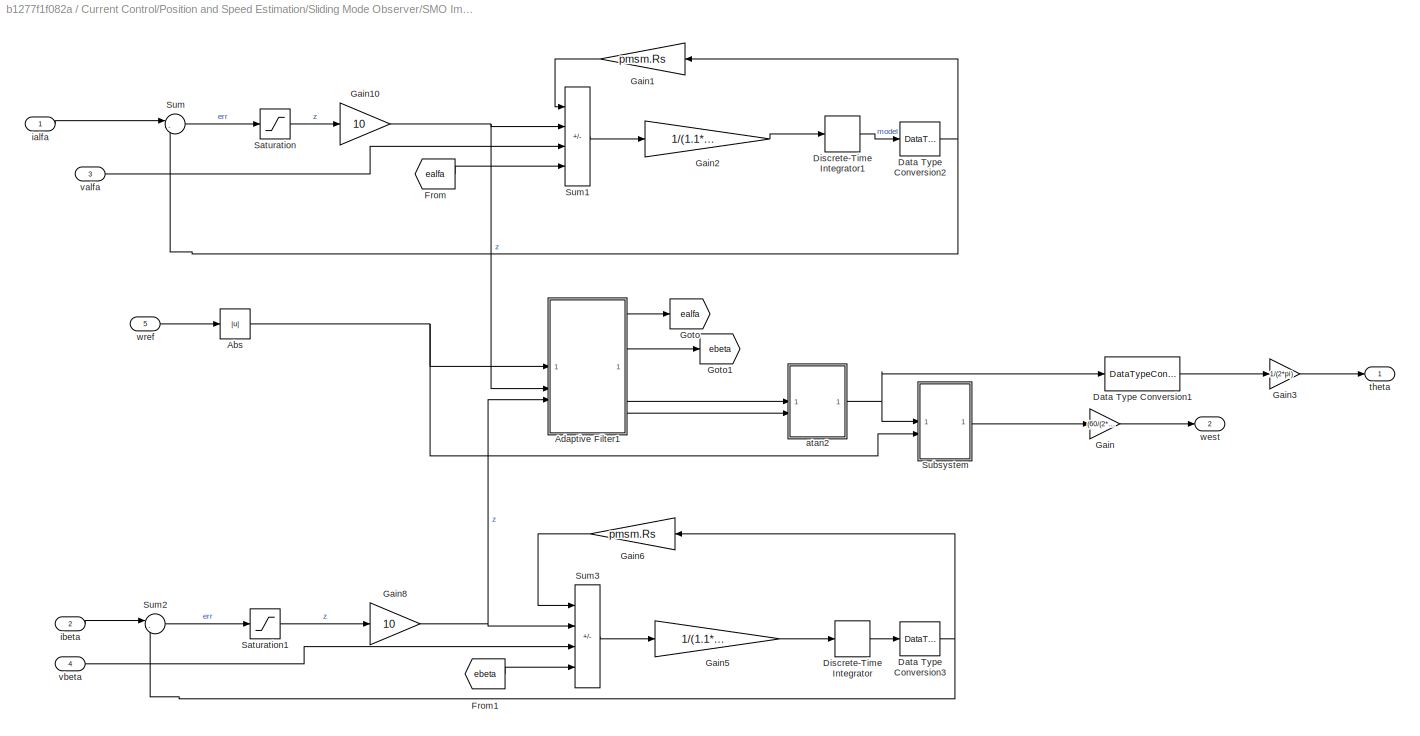
BLOCK [SubSystem] Current Control/Position and Speed Estimation/Sliding Mode Observer/SMO Implemetation
BLOCK [Abs] Current Control/Position and Speed Estimation/Sliding Mode Observer/SMO Implemetation/Abs
  SaturateOnIntegerOverflow = off
BLOCK [SubSystem] Current Control/Position and Speed Estimation/Sliding Mode Observer/SMO Implemetation/Adaptive Filter1
BLOCK [DataTypeConversion] Current Control/Position and Speed Estimation/Sliding Mode Observer/SMO Implemetation/Adaptive Filter1/Data Type Conversion
  OutDataTypeStr = fixdt(1,16,3)
  RndMeth = Floor
  SaturateOnIntegerOverflow = off
BLOCK [DataTypeConversion] Current Control/Position and Speed Estimation/Sliding Mode Observer/SMO Implemetation/Adaptive Filter1/Data Type Conversion1
  OutDataTypeStr = fixdt(1,16,11)
  RndMeth = Floor
  SaturateOnIntegerOverflow = off
BLOCK [DataTypeConversion] Current Control/Position and Speed Estimation/Sliding Mode Observer/SMO Implemetation/Adaptive Filter1/Data Type Conversion2
  OutDataTypeStr = fixdt(1,16,11)
  RndMeth = Floor
  SaturateOnIntegerOverflow = off
BLOCK [DataTypeConversion] Current Control/Position and Speed Estimation/Sliding Mode Observer/SMO Implemetation/Adaptive Filter1/Data Type Conversion3
  OutDataTypeStr = fixdt(1,16,11)
  RndMeth = Floor
  SaturateOnIntegerOverflow = off
BLOCK [DataTypeConversion] Current Control/Position and Speed Estimation/Sliding Mode Observer/SMO Implemetation/Adaptive Filter1/Data Type Conversion4
  OutDataTypeStr = fixdt(1,16,11)
  RndMeth = Floor
  SaturateOnIntegerOverflow = off
BLOCK [DataTypeConversion] Current Control/Position and Speed Estimation/Sliding Mode Observer/SMO Implemetation/Adaptive Filter1/Data Type Conversion5
  OutDataTypeStr = fixdt(1,16,11)
  RndMeth = Floor
  SaturateOnIntegerOverflow = off
BLOCK [DataTypeConversion] Current Control/Position and Speed Estimation/Sliding Mode Observer/SMO Implemetation/Adaptive Filter1/Data Type Conversion6
  OutDataTypeStr = fixdt(1,16,11)
  RndMeth = Floor
  SaturateOnIntegerOverflow = off
BLOCK [Delay] Current Control/Position and Speed Estimation/Sliding Mode Observer/SMO Implemetation/Adaptive Filter1/Delay
  DelayLength = 1
  InputPortMap = u0
  NameLocation = top
BLOCK [Delay] Current Control/Position and Speed Estimation/Sliding Mode Observer/SMO Implemetation/Adaptive Filter1/Delay1
  DelayLength = 1
  InputPortMap = u0
  NameLocation = top
BLOCK [Delay] Current Control/Position and Speed Estimation/Sliding Mode Observer/SMO Implemetation/Adaptive Filter1/Delay2
  DelayLength = 1
  InputPortMap = u0
  NameLocation = top
BLOCK [Delay] Current Control/Position and Speed Estimation/Sliding Mode Observer/SMO Implemetation/Adaptive Filter1/Delay3
  DelayLength = 1
  InputPortMap = u0
  NameLocation = top
BLOCK [DiscreteIntegrator] Current Control/Position and Speed Estimation/Sliding Mode Observer/SMO Implemetation/Adaptive Filter1/Discrete-Time Integrator
  ICPrevOutput = DiscIntNeverNeededParam
  ICPrevScaledInput = DiscIntNeverNeededParam
  InitialConditionSetting = Auto
  IntegratorMethod = Integration: Backward Euler
  OutDataTypeStr = fixdt(1,32,17)
  SampleTime = -1
BLOCK [DiscreteIntegrator] Current Control/Position and Speed Estimation/Sliding Mode Observer/SMO Implemetation/Adaptive Filter1/Discrete-Time Integrator1
  ICPrevOutput = DiscIntNeverNeededParam
  ICPrevScaledInput = DiscIntNeverNeededParam
  InitialConditionSetting = Auto
  IntegratorMethod = Integration: Backward Euler
  OutDataTypeStr = fixdt(1,32,17)
  SampleTime = -1
BLOCK [DiscreteIntegrator] Current Control/Position and Speed Estimation/Sliding Mode Observer/SMO Implemetation/Adaptive Filter1/Discrete-Time Integrator2
  ICPrevOutput = DiscIntNeverNeededParam
  ICPrevScaledInput = DiscIntNeverNeededParam
  InitialConditionSetting = Auto
  IntegratorMethod = Integration: Backward Euler
  OutDataTypeStr = fixdt(1,32,17)
  SampleTime = -1
BLOCK [DiscreteIntegrator] Current Control/Position and Speed Estimation/Sliding Mode Observer/SMO Implemetation/Adaptive Filter1/Discrete-Time Integrator3
  ICPrevOutput = DiscIntNeverNeededParam
  ICPrevScaledInput = DiscIntNeverNeededParam
  InitialConditionSetting = Auto
  IntegratorMethod = Integration: Backward Euler
  OutDataTypeStr = fixdt(1,32,17)
  SampleTime = -1
BLOCK [Product] Current Control/Position and Speed Estimation/Sliding Mode Observer/SMO Implemetation/Adaptive Filter1/Product
  OutDataTypeStr = fixdt(1,32,14)
BLOCK [Product] Current Control/Position and Speed Estimation/Sliding Mode Observer/SMO Implemetation/Adaptive Filter1/Product1
  OutDataTypeStr = fixdt(1,32,11)
BLOCK [Product] Current Control/Position and Speed Estimation/Sliding Mode Observer/SMO Implemetation/Adaptive Filter1/Product2
BLOCK [Product] Current Control/Position and Speed Estimation/Sliding Mode Observer/SMO Implemetation/Adaptive Filter1/Product3
BLOCK [Sum] Current Control/Position and Speed Estimation/Sliding Mode Observer/SMO Implemetation/Adaptive Filter1/Sum1
  Inputs = |+-
BLOCK [Sum] Current Control/Position and Speed Estimation/Sliding Mode Observer/SMO Implemetation/Adaptive Filter1/Sum2
  Inputs = |+-
BLOCK [Sum] Current Control/Position and Speed Estimation/Sliding Mode Observer/SMO Implemetation/Adaptive Filter1/Sum3
  Inputs = |+-
BLOCK [Sum] Current Control/Position and Speed Estimation/Sliding Mode Observer/SMO Implemetation/Adaptive Filter1/Sum4
  Inputs = |+-
BLOCK [Outport] Current Control/Position and Speed Estimation/Sliding Mode Observer/SMO Implemetation/Adaptive Filter1/ealfa
  NameLocation = top
  VectorParamsAs1DForOutWhenUnconnected = off
BLOCK [Outport] Current Control/Position and Speed Estimation/Sliding Mode Observer/SMO Implemetation/Adaptive Filter1/ealfa_fil
  NameLocation = top
  Port = 3
  VectorParamsAs1DForOutWhenUnconnected = off
BLOCK [Outport] Current Control/Position and Speed Estimation/Sliding Mode Observer/SMO Implemetation/Adaptive Filter1/ebeta
  NameLocation = top
  Port = 2
  VectorParamsAs1DForOutWhenUnconnected = off
BLOCK [Outport] Current Control/Position and Speed Estimation/Sliding Mode Observer/SMO Implemetation/Adaptive Filter1/ebeta_fil
  NameLocation = top
  Port = 4
  VectorParamsAs1DForOutWhenUnconnected = off
BLOCK [Inport] Current Control/Position and Speed Estimation/Sliding Mode Observer/SMO Implemetation/Adaptive Filter1/wc
BLOCK [Inport] Current Control/Position and Speed Estimation/Sliding Mode Observer/SMO Implemetation/Adaptive Filter1/zalfa
  Port = 2
BLOCK [Inport] Current Control/Position and Speed Estimation/Sliding Mode Observer/SMO Implemetation/Adaptive Filter1/zbeta
  Port = 3
BLOCK [DataTypeConversion] Current Control/Position and Speed Estimation/Sliding Mode Observer/SMO Implemetation/Data Type Conversion1
  OutDataTypeStr = fixdt(1,16,12)
  RndMeth = Floor
  SaturateOnIntegerOverflow = off
BLOCK [DataTypeConversion] Current Control/Position and Speed Estimation/Sliding Mode Observer/SMO Implemetation/Data Type Conversion2
  OutDataTypeStr = fixdt(1,16,12)
  RndMeth = Floor
  SaturateOnIntegerOverflow = off
BLOCK [DataTypeConversion] Current Control/Position and Speed Estimation/Sliding Mode Observer/SMO Implemetation/Data Type Conversion3
  OutDataTypeStr = fixdt(1,16,12)
  RndMeth = Floor
  SaturateOnIntegerOverflow = off
BLOCK [DiscreteIntegrator] Current Control/Position and Speed Estimation/Sliding Mode Observer/SMO Implemetation/Discrete-Time Integrator
  ICPrevOutput = DiscIntNeverNeededParam
  ICPrevScaledInput = DiscIntNeverNeededParam
  InitialConditionSetting = Auto
  OutDataTypeStr = fixdt(1,32,17)
  SampleTime = -1
BLOCK [DiscreteIntegrator] Current Control/Position and Speed Estimation/Sliding Mode Observer/SMO Implemetation/Discrete-Time Integrator1
  ICPrevOutput = DiscIntNeverNeededParam
  ICPrevScaledInput = DiscIntNeverNeededParam
  InitialConditionSetting = Auto
  OutDataTypeStr = fixdt(1,32,17)
  SampleTime = -1
BLOCK [From] Current Control/Position and Speed Estimation/Sliding Mode Observer/SMO Implemetation/From
  GotoTag = ealfa
BLOCK [From] Current Control/Position and Speed Estimation/Sliding Mode Observer/SMO Implemetation/From1
  GotoTag = ebeta
BLOCK [Gain] Current Control/Position and Speed Estimation/Sliding Mode Observer/SMO Implemetation/Gain
  Gain = (60/(2*pi*pmsm.p))/PU_System.N_base
  OutDataTypeStr = dataType
BLOCK [Gain] Current Control/Position and Speed Estimation/Sliding Mode Observer/SMO Implemetation/Gain1
  Gain = pmsm.Rs
  OutDataTypeStr = fixdt(1,16,12)
BLOCK [Gain] Current Control/Position and Speed Estimation/Sliding Mode Observer/SMO Implemetation/Gain10
  Gain = 10
  OutDataTypeStr = fixdt(1,16,8)
BLOCK [Gain] Current Control/Position and Speed Estimation/Sliding Mode Observer/SMO Implemetation/Gain2
  Gain = 1/(1.1*pmsm.Ld)
  OutDataTypeStr = fixdt(1,32,14)
BLOCK [Gain] Current Control/Position and Speed Estimation/Sliding Mode Observer/SMO Implemetation/Gain3
  Gain = 1/(2*pi)
  OutDataTypeStr = dataType
BLOCK [Gain] Current Control/Position and Speed Estimation/Sliding Mode Observer/SMO Implemetation/Gain5
  Gain = 1/(1.1*pmsm.Ld)
  OutDataTypeStr = fixdt(1,32,14)
BLOCK [Gain] Current Control/Position and Speed Estimation/Sliding Mode Observer/SMO Implemetation/Gain6
  Gain = pmsm.Rs
  OutDataTypeStr = fixdt(1,16,12)
BLOCK [Gain] Current Control/Position and Speed Estimation/Sliding Mode Observer/SMO Implemetation/Gain8
  Gain = 10
  OutDataTypeStr = fixdt(1,16,8)
BLOCK [Goto] Current Control/Position and Speed Estimation/Sliding Mode Observer/SMO Implemetation/Goto
  GotoTag = ealfa
BLOCK [Goto] Current Control/Position and Speed Estimation/Sliding Mode Observer/SMO Implemetation/Goto1
  GotoTag = ebeta
BLOCK [Saturate] Current Control/Position and Speed Estimation/Sliding Mode Observer/SMO Implemetation/Saturation
  LowerLimit = -0.7
  UpperLimit = 0.7
BLOCK [Saturate] Current Control/Position and Speed Estimation/Sliding Mode Observer/SMO Implemetation/Saturation1
  LowerLimit = -0.7
  UpperLimit = 0.7
BLOCK [SubSystem] Current Control/Position and Speed Estimation/Sliding Mode Observer/SMO Implemetation/Subsystem
BLOCK [DataTypeConversion] Current Control/Position and Speed Estimation/Sliding Mode Observer/SMO Implemetation/Subsystem/Data Type Conversion
  ConvertRealWorld = Stored Integer (SI)
  OutDataTypeStr = int32
  RndMeth = Floor
  SaturateOnIntegerOverflow = off
BLOCK [DataTypeConversion] Current Control/Position and Speed Estimation/Sliding Mode Observer/SMO Implemetation/Subsystem/Data Type Conversion1
  OutDataTypeStr = fixdt(1,16,2)
  RndMeth = Floor
  SaturateOnIntegerOverflow = off
BLOCK [Delay] Current Control/Position and Speed Estimation/Sliding Mode Observer/SMO Implemetation/Subsystem/Delay1
  DelayLength = 1
  InputPortMap = u0
  NameLocation = top
BLOCK [DiscreteIntegrator] Current Control/Position and Speed Estimation/Sliding Mode Observer/SMO Implemetation/Subsystem/Discrete-Time Integrator4
  ICPrevOutput = DiscIntNeverNeededParam
  ICPrevScaledInput = DiscIntNeverNeededParam
  InitialConditionSetting = Auto
  IntegratorMethod = Integration: Backward Euler
  OutDataTypeStr = fixdt(1,32,8)
  SampleTime = -1
BLOCK [Gain] Current Control/Position and Speed Estimation/Sliding Mode Observer/SMO Implemetation/Subsystem/Gain1
  Gain = 1/Ts
  OutDataTypeStr = fixdt(1,16,3)
BLOCK [Gain] Current Control/Position and Speed Estimation/Sliding Mode Observer/SMO Implemetation/Subsystem/Gain3
  Gain = 1/2^24
  OutDataTypeStr = fixdt(1,16,12)
BLOCK [Product] Current Control/Position and Speed Estimation/Sliding Mode Observer/SMO Implemetation/Subsystem/Product1
  OutDataTypeStr = fixdt(1,32,8)
BLOCK [Sum] Current Control/Position and Speed Estimation/Sliding Mode Observer/SMO Implemetation/Subsystem/Sum2
  AccumDataTypeStr = fixdt(1,16,12)
  Inputs = |+-
  NameLocation = top
  OutDataTypeStr = fixdt(1,32,24)
BLOCK [Sum] Current Control/Position and Speed Estimation/Sliding Mode Observer/SMO Implemetation/Subsystem/Sum4
  Inputs = |+-
BLOCK [UnitDelay] Current Control/Position and Speed Estimation/Sliding Mode Observer/SMO Implemetation/Subsystem/Unit Delay3
  HasFrameUpgradeWarning = on
  SampleTime = -1
BLOCK [SubSystem] Current Control/Position and Speed Estimation/Sliding Mode Observer/SMO Implemetation/Subsystem/Wrap_to_pi2
  VariantControl = VSS_STD
BLOCK [Bias] Current Control/Position and Speed Estimation/Sliding Mode Observer/SMO Implemetation/Subsystem/Wrap_to_pi2/Bias
  Bias = pi*16777216
  SaturateOnIntegerOverflow = off
BLOCK [Bias] Current Control/Position and Speed Estimation/Sliding Mode Observer/SMO Implemetation/Subsystem/Wrap_to_pi2/Bias1
  Bias = -pi*16777216
  SaturateOnIntegerOverflow = off
BLOCK [Math] Current Control/Position and Speed Estimation/Sliding Mode Observer/SMO Implemetation/Subsystem/Wrap_to_pi2/Math Function
  Operator = mod
  SignedPower = on
BLOCK [Math] Current Control/Position and Speed Estimation/Sliding Mode Observer/SMO Implemetation/Subsystem/Wrap_to_pi2/Math Function1
  Operator = mod
  SignedPower = on
BLOCK [Constant] Current Control/Position and Speed Estimation/Sliding Mode Observer/SMO Implemetation/Subsystem/Wrap_to_pi2/load torque1
  OutDataTypeStr = int32
  SampleTime = -1
  Value = 2*pi*16777216
BLOCK [Inport] Current Control/Position and Speed Estimation/Sliding Mode Observer/SMO Implemetation/Subsystem/Wrap_to_pi2/θ
BLOCK [Outport] Current Control/Position and Speed Estimation/Sliding Mode Observer/SMO Implemetation/Subsystem/Wrap_to_pi2/θ (-π,π)
  VectorParamsAs1DForOutWhenUnconnected = off
BLOCK [ZeroOrderHold] Current Control/Position and Speed Estimation/Sliding Mode Observer/SMO Implemetation/Subsystem/Zero-Order Hold2
  SampleTime = -1
BLOCK [Inport] Current Control/Position and Speed Estimation/Sliding Mode Observer/SMO Implemetation/Subsystem/w
  Port = 2
BLOCK [Inport] Current Control/Position and Speed Estimation/Sliding Mode Observer/SMO Implemetation/Subsystem/θ
BLOCK [Outport] Current Control/Position and Speed Estimation/Sliding Mode Observer/SMO Implemetation/Subsystem/ω_est
  VectorParamsAs1DForOutWhenUnconnected = off
BLOCK [Sum] Current Control/Position and Speed Estimation/Sliding Mode Observer/SMO Implemetation/Sum
  AccumDataTypeStr = fixdt(1,16,10)
  Inputs = |-+
  OutDataTypeStr = fixdt(1,16,10)
BLOCK [Sum] Current Control/Position and Speed Estimation/Sliding Mode Observer/SMO Implemetation/Sum1
  AccumDataTypeStr = fixdt(1,16,8)
  IconShape = rectangular
  Inputs = --+-
  OutDataTypeStr = fixdt(1,16,8)
BLOCK [Sum] Current Control/Position and Speed Estimation/Sliding Mode Observer/SMO Implemetation/Sum2
  AccumDataTypeStr = fixdt(1,16,10)
  Inputs = |-+
  OutDataTypeStr = fixdt(1,16,10)
BLOCK [Sum] Current Control/Position and Speed Estimation/Sliding Mode Observer/SMO Implemetation/Sum3
  AccumDataTypeStr = fixdt(1,16,8)
  IconShape = rectangular
  Inputs = --+-
  OutDataTypeStr = fixdt(1,16,8)
BLOCK [SubSystem] Current Control/Position and Speed Estimation/Sliding Mode Observer/SMO Implemetation/atan2
BLOCK [Bias] Current Control/Position and Speed Estimation/Sliding Mode Observer/SMO Implemetation/atan2/Bias2
  Bias = (pi/4)+(pi/4)
  SaturateOnIntegerOverflow = off
BLOCK [DataTypeConversion] Current Control/Position and Speed Estimation/Sliding Mode Observer/SMO Implemetation/atan2/Data Type Conversion3
  OutDataTypeStr = fixdt(1,16,12)
  RndMeth = Floor
  SaturateOnIntegerOverflow = off
BLOCK [DataTypeConversion] Current Control/Position and Speed Estimation/Sliding Mode Observer/SMO Implemetation/atan2/Data Type Conversion4
  ConvertRealWorld = Stored Integer (SI)
  OutDataTypeStr = uint16
  RndMeth = Floor
  SaturateOnIntegerOverflow = off
BLOCK [Gain] Current Control/Position and Speed Estimation/Sliding Mode Observer/SMO Implemetation/atan2/Gain2
  Gain = 1/2^12
  OutDataTypeStr = fixdt(1,16,12)
BLOCK [Gain] Current Control/Position and Speed Estimation/Sliding Mode Observer/SMO Implemetation/atan2/Gain3
  Gain = -1
  OutDataTypeStr = Inherit: Same as input
BLOCK [SubSystem] Current Control/Position and Speed Estimation/Sliding Mode Observer/SMO Implemetation/atan2/Subsystem1
BLOCK [Constant] Current Control/Position and Speed Estimation/Sliding Mode Observer/SMO Implemetation/atan2/Subsystem1/2pi
  CopyFcn = if exist('tl_reset_reviewflag','file')==2,tl_reset_reviewflag(gcbh);end
  DeleteFcn = if exist('delete_tlblock','file')==2,delete_tlblock(gcbh);end
  NameChangeFcn = if exist('rename_tlblock','file')==2,rename_tlblock(gcbh);end
  OpenFcn = if exist('tl_open_blockdlg','file')==2,tl_open_blockdlg(gcbh);else,open_system(gcbh,'parameter');end
  OutDataTypeStr = fixdt(1,16,12)
  SampleTime = -1
  Value = 2*pi
BLOCK [Sum] Current Control/Position and Speed Estimation/Sliding Mode Observer/SMO Implemetation/atan2/Subsystem1/Sum
  IconShape = rectangular
BLOCK [Switch] Current Control/Position and Speed Estimation/Sliding Mode Observer/SMO Implemetation/atan2/Subsystem1/Switch2
  Criteria = u2 > Threshold
  InputSameDT = off
  SaturateOnIntegerOverflow = off
BLOCK [Inport] Current Control/Position and Speed Estimation/Sliding Mode Observer/SMO Implemetation/atan2/Subsystem1/theta(-pi,pi)
BLOCK [Outport] Current Control/Position and Speed Estimation/Sliding Mode Observer/SMO Implemetation/atan2/Subsystem1/theta(0,2pi)
  VectorParamsAs1DForOutWhenUnconnected = off
BLOCK [Trigonometry] Current Control/Position and Speed Estimation/Sliding Mode Observer/SMO Implemetation/atan2/Trigonometric Function
  ApproximationMethod = CORDIC
  Operator = atan2
BLOCK [SubSystem] Current Control/Position and Speed Estimation/Sliding Mode Observer/SMO Implemetation/atan2/Wrap_to_pi1
  VariantControl = VSS_STD
BLOCK [Math] Current Control/Position and Speed Estimation/Sliding Mode Observer/SMO Implemetation/atan2/Wrap_to_pi1/Math Function
  Operator = rem
  SignedPower = on
BLOCK [Constant] Current Control/Position and Speed Estimation/Sliding Mode Observer/SMO Implemetation/atan2/Wrap_to_pi1/load torque2
  OutDataTypeStr = uint16
  SampleTime = -1
  Value = 2*pi*2^12
BLOCK [Inport] Current Control/Position and Speed Estimation/Sliding Mode Observer/SMO Implemetation/atan2/Wrap_to_pi1/θ
BLOCK [Outport] Current Control/Position and Speed Estimation/Sliding Mode Observer/SMO Implemetation/atan2/Wrap_to_pi1/θ (0,2π)
  VectorParamsAs1DForOutWhenUnconnected = off
BLOCK [Inport] Current Control/Position and Speed Estimation/Sliding Mode Observer/SMO Implemetation/atan2/α
  NameLocation = top
BLOCK [Inport] Current Control/Position and Speed Estimation/Sliding Mode Observer/SMO Implemetation/atan2/β
  NameLocation = top
  Port = 2
BLOCK [Outport] Current Control/Position and Speed Estimation/Sliding Mode Observer/SMO Implemetation/atan2/θ
  VectorParamsAs1DForOutWhenUnconnected = off
BLOCK [Inport] Current Control/Position and Speed Estimation/Sliding Mode Observer/SMO Implemetation/ialfa
  NameLocation = top
BLOCK [Inport] Current Control/Position and Speed Estimation/Sliding Mode Observer/SMO Implemetation/ibeta
  NameLocation = top
  Port = 2
BLOCK [Outport] Current Control/Position and Speed Estimation/Sliding Mode Observer/SMO Implemetation/theta
  VectorParamsAs1DForOutWhenUnconnected = off
BLOCK [Inport] Current Control/Position and Speed Estimation/Sliding Mode Observer/SMO Implemetation/valfa
  Port = 3
BLOCK [Inport] Current Control/Position and Speed Estimation/Sliding Mode Observer/SMO Implemetation/vbeta
  Port = 4
BLOCK [Outport] Current Control/Position and Speed Estimation/Sliding Mode Observer/SMO Implemetation/west
  Port = 2
  VectorParamsAs1DForOutWhenUnconnected = off
BLOCK [Inport] Current Control/Position and Speed Estimation/Sliding Mode Observer/SMO Implemetation/wref
  Port = 5
BLOCK [SubSystem] Current Control/Position and Speed Estimation/Sliding Mode Observer/Scaling
BLOCK [Gain] Current Control/Position and Speed Estimation/Sliding Mode Observer/Scaling/Gain
  Gain = (2*pi*pmsm.p)/60
  OutDataTypeStr = fixdt(1,16,3)
BLOCK [Outport] Current Control/Position and Speed Estimation/Sliding Mode Observer/Scaling/Ialpha
  NameLocation = top
BLOCK [Inport] Current Control/Position and Speed Estimation/Sliding Mode Observer/Scaling/Ialpha_PU
BLOCK [Outport] Current Control/Position and Speed Estimation/Sliding Mode Observer/Scaling/Ibeta
  NameLocation = top
  Port = 2
BLOCK [Inport] Current Control/Position and Speed Estimation/Sliding Mode Observer/Scaling/Ibeta_PU
  Port = 2
BLOCK [Gain] Current Control/Position and Speed Estimation/Sliding Mode Observer/Scaling/Inverting OpAmp1
  Gain = PU_System.I_base
  OutDataTypeStr = fixdt(1,16,12)
  RndMeth = Simplest
BLOCK [Gain] Current Control/Position and Speed Estimation/Sliding Mode Observer/Scaling/Inverting OpAmp2
  Gain = PU_System.I_base
  OutDataTypeStr = fixdt(1,16,12)
  RndMeth = Simplest
BLOCK [Gain] Current Control/Position and Speed Estimation/Sliding Mode Observer/Scaling/Inverting OpAmp3
  Gain = PU_System.V_base
  OutDataTypeStr = fixdt(1,16,11)
  RndMeth = Simplest
BLOCK [Gain] Current Control/Position and Speed Estimation/Sliding Mode Observer/Scaling/Inverting OpAmp4
  Gain = PU_System.V_base
  OutDataTypeStr = fixdt(1,16,11)
  RndMeth = Simplest
BLOCK [Gain] Current Control/Position and Speed Estimation/Sliding Mode Observer/Scaling/Inverting OpAmp5
  Gain = PU_System.N_base
  OutDataTypeStr = fixdt(1,16,2)
  RndMeth = Simplest
BLOCK [Outport] Current Control/Position and Speed Estimation/Sliding Mode Observer/Scaling/SpeedRef
  NameLocation = top
  Port = 5
BLOCK [Inport] Current Control/Position and Speed Estimation/Sliding Mode Observer/Scaling/SpeedRef_PU
  NameLocation = top
  Port = 5
BLOCK [Outport] Current Control/Position and Speed Estimation/Sliding Mode Observer/Scaling/Valpha
  NameLocation = top
  Port = 3
BLOCK [Inport] Current Control/Position and Speed Estimation/Sliding Mode Observer/Scaling/Valpha_PU
  Port = 3
BLOCK [Outport] Current Control/Position and Speed Estimation/Sliding Mode Observer/Scaling/Vbeta
  NameLocation = top
  Port = 4
BLOCK [Inport] Current Control/Position and Speed Estimation/Sliding Mode Observer/Scaling/Vbeta_PU
  Port = 4
BLOCK [Inport] Current Control/Position and Speed Estimation/Sliding Mode Observer/SpeedRef_PU
  NameLocation = top
  Port = 5
BLOCK [Inport] Current Control/Position and Speed Estimation/Sliding Mode Observer/Valpha_PU
  NameLocation = top
  Port = 3
BLOCK [Inport] Current Control/Position and Speed Estimation/Sliding Mode Observer/Vbeta_PU
  NameLocation = top
  Port = 4
BLOCK [Outport] Current Control/Position and Speed Estimation/Sliding Mode Observer/theta
  NameLocation = top
BLOCK [Outport] Current Control/Position and Speed Estimation/Sliding Mode Observer/west
  NameLocation = top
  Port = 2
BLOCK [Outport] Current Control/Position and Speed Estimation/Speed_meas_PU
  Port = 3
BLOCK [Switch] Current Control/Position and Speed Estimation/Switch
  Criteria = u2 > Threshold
  InputSameDT = off
  SaturateOnIntegerOverflow = off
BLOCK [Inport] Current Control/Position and Speed Estimation/VIalphabeta_Fb
  Port = 3
BLOCK [VariantSource] Current Control/Position and Speed Estimation/Variant Source
BLOCK [VariantSource] Current Control/Position and Speed Estimation/Variant Source3
BLOCK [Outport] Current Control/Speed_meas_PU
  Port = 2
BLOCK [Outport] Current Control/Vabc_Sim
BLOCK [Outport] Current Control/pwm123
  OutDataTypeStr = uint16
  Port = 3
BLOCK [DataStoreMemory] Data Store Memory
  DataStoreName = ADC_IA
  OutDataTypeStr = uint16
  ShowAdditionalParam = off
  WriteAfterWriteMsg = warning
BLOCK [DataStoreMemory] Data Store Memory1
  DataStoreName = EnCurOffset
  OutDataTypeStr = boolean
  ShowAdditionalParam = off
BLOCK [DataStoreMemory] Data Store Memory10
  DataStoreName = EnPosOffset
  OutDataTypeStr = boolean
  ShowAdditionalParam = off
BLOCK [DataStoreMemory] Data Store Memory11
  DataStoreName = VelRef
  OutDataTypeStr = single
  ShowAdditionalParam = off
BLOCK [DataStoreMemory] Data Store Memory2
  DataStoreName = ADC_IB
  OutDataTypeStr = uint16
  ShowAdditionalParam = off
  WriteAfterWriteMsg = warning
BLOCK [DataStoreMemory] Data Store Memory29
  DataStoreName = EnableFOC
  OutDataTypeStr = boolean
  ShowAdditionalParam = off
BLOCK [DataStoreMemory] Data Store Memory3
  DataStoreName = Enable
  OutDataTypeStr = boolean
  ShowAdditionalParam = off
BLOCK [DataStoreMemory] Data Store Memory4
  DataStoreName = SpeedRef
  OutDataTypeStr = single
  ShowAdditionalParam = off
BLOCK [DataStoreMemory] Data Store Memory5
  DataStoreName = Pwm1Duty
  NameLocation = top
  OutDataTypeStr = uint16
  ShowAdditionalParam = off
  WriteAfterWriteMsg = warning
BLOCK [DataStoreMemory] Data Store Memory6
  DataStoreName = EnableClosedLoop
  OutDataTypeStr = boolean
  ShowAdditionalParam = off
BLOCK [DataStoreMemory] Data Store Memory7
  DataStoreName = Pwm2Duty
  OutDataTypeStr = uint16
  ShowAdditionalParam = off
  WriteAfterWriteMsg = warning
BLOCK [DataStoreMemory] Data Store Memory8
  DataStoreName = Pwm3Duty
  OutDataTypeStr = uint16
  ShowAdditionalParam = off
  WriteAfterWriteMsg = warning
BLOCK [DataStoreMemory] Data Store Memory9
  DataStoreName = smoAnglePU
  OutDataTypeStr = dataType
  ShowAdditionalParam = off
  WriteAfterWriteMsg = warning
BLOCK [DataStoreRead] Data Store Read
  Commented = on
  DataStoreName = SpeedRef
  IndexOptions = Index vector (dialog)
  Indices = 1
  OutputSizes = 1
BLOCK [DataStoreRead] Data Store Read1
  DataStoreName = VelRef
  IndexOptions = Index vector (dialog)
  Indices = 1
  OutputSizes = 1
BLOCK [From] From
  GotoTag = Iab
BLOCK [From] From1
  GotoTag = SpdFdbPU
BLOCK [From] From2
  GotoTag = SpdFdbPU
BLOCK [From] From3
  Commented = on
  GotoTag = SpdFdbPU
BLOCK [From] From4
  GotoTag = IqRef
BLOCK [From] From5
  GotoTag = simVabc
BLOCK [Goto] Goto
  GotoTag = Iab
BLOCK [Goto] Goto1
  GotoTag = SpdFdbPU
BLOCK [Goto] Goto2
  Commented = on
  GotoTag = IqRef
BLOCK [Goto] Goto3
  GotoTag = IqRef
BLOCK [Goto] Goto4
  GotoTag = simVabc
BLOCK [SubSystem] Inverter and Motor
  RTWSystemCode = Reusable function
BLOCK [SubSystem] Inverter and Motor/Codegeneration
BLOCK [Inport] Inverter and Motor/Codegeneration/Duty_Cycles
BLOCK [Outport] Inverter and Motor/Codegeneration/Feedbacks_Iab
  VectorParamsAs1DForOutWhenUnconnected = off
BLOCK [Ground] Inverter and Motor/Codegeneration/Ground
BLOCK [Terminator] Inverter and Motor/Codegeneration/Terminator
BLOCK [Constant] Inverter and Motor/Constant
  Value = 1.0
BLOCK [Inport] Inverter and Motor/Duty_Cycles
BLOCK [Outport] Inverter and Motor/Feedbacks_Iab
  VectorParamsAs1DForOutWhenUnconnected = off
BLOCK [Gain] Inverter and Motor/Gain
  Gain = pmsm.p/2/pi
BLOCK [Math] Inverter and Motor/Mod
  Operator = mod
BLOCK [Outport] Inverter and Motor/MtrPos
  Port = 2
BLOCK [SubSystem] Inverter and Motor/Simulation
BLOCK [BusSelector] Inverter and Motor/Simulation/Bus Selector
  OutputSignals = MtrPos
BLOCK [Inport] Inverter and Motor/Simulation/Duty_Cycles
BLOCK [Outport] Inverter and Motor/Simulation/Feedbacks_Iab
  VectorParamsAs1DForOutWhenUnconnected = off
BLOCK [SubSystem] Inverter and Motor/Simulation/Inverter
BLOCK [Reference] Inverter and Motor/Simulation/Inverter/Average-Value Inverter  REF=mcbplantlib/Average-Value Inverter
  SourceBlock = mcbplantlib/Average-Value Inverter
  SourceType = Average Value Inverter
BLOCK [Constant] Inverter and Motor/Simulation/Inverter/Constant2
  OutDataTypeStr = single
  SampleTime = -1
  Value = inverter.V_dc
BLOCK [DataTypeConversion] Inverter and Motor/Simulation/Inverter/Data Type Conversion1
  OutDataTypeStr = single
  RndMeth = Simplest
  SaturateOnIntegerOverflow = off
BLOCK [Inport] Inverter and Motor/Simulation/Inverter/Duty_abc
BLOCK [Outport] Inverter and Motor/Simulation/Inverter/Vabc
  VectorParamsAs1DForOutWhenUnconnected = off
BLOCK [SubSystem] Inverter and Motor/Simulation/Load_Profile (Torque)
BLOCK [DataTypeConversion] Inverter and Motor/Simulation/Load_Profile (Torque)/Data Type Conversion
  OutDataTypeStr = single
  RndMeth = Floor
  SaturateOnIntegerOverflow = off
BLOCK [Reference] Inverter and Motor/Simulation/Load_Profile (Torque)/IIR Filter  REF=mcbcontrolslib/IIR Filter
  SourceBlock = mcbcontrolslib/IIR Filter
  SourceType = IIR Filter
BLOCK [Outport] Inverter and Motor/Simulation/Load_Profile (Torque)/Load_Trq
  VectorParamsAs1DForOutWhenUnconnected = off
BLOCK [RateLimiter] Inverter and Motor/Simulation/Load_Profile (Torque)/Rate Limiter1
  FallingSlewLimit = -0.2
  RisingSlewLimit = 0.5
  SampleTimeMode = inherited
BLOCK [Step] Inverter and Motor/Simulation/Load_Profile (Torque)/Step
  After = 0.25* pmsm.T_rated
  Before = 0.0* pmsm.T_rated
  Commented = on
  Time = 5
BLOCK [Step] Inverter and Motor/Simulation/Load_Profile (Torque)/Step1
  After = pmsm.T_rated
  Before = 0.25* pmsm.T_rated
  Commented = on
  Time = 8
BLOCK [Step] Inverter and Motor/Simulation/Load_Profile (Torque)/Step2
  After = 0
  Before = 1
  Commented = on
  Time = 8
BLOCK [Switch] Inverter and Motor/Simulation/Load_Profile (Torque)/Switch
  Criteria = u2 > Threshold
  InputSameDT = off
  SaturateOnIntegerOverflow = off
BLOCK [Outport] Inverter and Motor/Simulation/MtrPos
  Port = 2
BLOCK [SubSystem] Inverter and Motor/Simulation/Sensor_Measurements
BLOCK [DataTypeConversion] Inverter and Motor/Simulation/Sensor_Measurements/Data Type Conversion4
  OutDataTypeStr = single
  RndMeth = Simplest
  SaturateOnIntegerOverflow = off
BLOCK [Delay] Inverter and Motor/Simulation/Sensor_Measurements/Delay1
  DelayLength = Ts/Ts_simulink
  InputPortMap = u0
BLOCK [Outport] Inverter and Motor/Simulation/Sensor_Measurements/Iab_fb
  VectorParamsAs1DForOutWhenUnconnected = off
BLOCK [Gain] Inverter and Motor/Simulation/Sensor_Measurements/Inverting OpAmp
  Gain = 1/Ibase
  OutDataTypeStr = dataType
  RndMeth = Simplest
BLOCK [Inport] Inverter and Motor/Simulation/Sensor_Measurements/PhaseCurr
BLOCK [Selector] Inverter and Motor/Simulation/Sensor_Measurements/Selector
  IndexOptions = Index vector (dialog)
  Indices = [1 2]
  InputPortWidth = 3
  OutputSizes = 1
BLOCK [Reference] Inverter and Motor/Simulation/Surface Mount PMSM  REF=autolibpmsmexterior/Surface Mount PMSM
  SourceBlock = autolibpmsmexterior/Surface Mount PMSM
  SourceType = Surface Mount PMSM
BLOCK [Terminator] Inverter and Motor/Simulation/Terminator
BLOCK [VariantSink] Inverter and Motor/Variant Sink
BLOCK [VariantSource] Inverter and Motor/Variant Source
BLOCK [SubSystem] OpentoClosed
BLOCK [SubSystem] OpentoClosed/Chart
  ErrorFcn = Stateflow.Translate.translate
  PermitHierarchicalResolution = ExplicitOnly
  SFBlockType = Chart
  TreatAsAtomicUnit = on
BLOCK [Demux] OpentoClosed/Chart/ Demux 
  Outputs = 1
BLOCK [S-Function] OpentoClosed/Chart/ SFunction 
  EnableBusSupport = on
  FunctionName = sf_sfun
  PortCounts = [3 6]
  SFcnIsStateOwnerBlock = off
  SFunctionDeploymentMode = off
  Tag = Stateflow S-Function 3
BLOCK [Terminator] OpentoClosed/Chart/ Terminator 
BLOCK [Inport] OpentoClosed/Chart/En
  Port = 2
BLOCK [Outport] OpentoClosed/Chart/EnCurOffset
  Port = 3
BLOCK [Outport] OpentoClosed/Chart/EnFoc
  Port = 5
BLOCK [Outport] OpentoClosed/Chart/EnPosOffset
  Port = 4
BLOCK [Inport] OpentoClosed/Chart/Limit
  Port = 3
BLOCK [Outport] OpentoClosed/Chart/Mode
BLOCK [Outport] OpentoClosed/Chart/SpeedCtrl
  Port = 2
BLOCK [Inport] OpentoClosed/Chart/SpeedFb
BLOCK [Constant] OpentoClosed/Constant
  OutDataTypeStr = dataType
  Value = (Speed_Ref_openLoop/Nbase)-0.1
BLOCK [DataStoreRead] OpentoClosed/Data Store Read5
  DataStoreName = Enable
  IndexOptions = Index vector (dialog)
  Indices = 1
  OutputSizes = 1
BLOCK [DataStoreWrite] OpentoClosed/Data Store Write
  DataStoreName = EnCurOffset
  IndexOptions = Index vector (dialog)
  Indices = 1
  OutputSizes = 1
BLOCK [DataStoreWrite] OpentoClosed/Data Store Write1
  DataStoreName = EnPosOffset
  IndexOptions = Index vector (dialog)
  Indices = 1
  OutputSizes = 1
BLOCK [DataStoreWrite] OpentoClosed/Data Store Write3
  DataStoreName = EnableFOC
  IndexOptions = Index vector (dialog)
  Indices = 1
  OutputSizes = 1
BLOCK [DataStoreWrite] OpentoClosed/Data Store Write4
  DataStoreName = EnableClosedLoop
  IndexOptions = Index vector (dialog)
  Indices = 1
  OutputSizes = 1
BLOCK [DataTypeConversion] OpentoClosed/Data Type Conversion
  OutDataTypeStr = boolean
  RndMeth = Simplest
  SaturateOnIntegerOverflow = off
BLOCK [DataTypeConversion] OpentoClosed/Data Type Conversion1
  OutDataTypeStr = boolean
  RndMeth = Simplest
  SaturateOnIntegerOverflow = off
BLOCK [DataTypeConversion] OpentoClosed/Data Type Conversion2
  OutDataTypeStr = boolean
  RndMeth = Simplest
  SaturateOnIntegerOverflow = off
BLOCK [DataTypeConversion] OpentoClosed/Data Type Conversion3
  OutDataTypeStr = boolean
  RndMeth = Simplest
  SaturateOnIntegerOverflow = off
BLOCK [DataTypeConversion] OpentoClosed/Data Type Conversion4
  OutDataTypeStr = boolean
  RndMeth = Simplest
  SaturateOnIntegerOverflow = off
BLOCK [Constant] OpentoClosed/Enable Closed Loop
  OutDataTypeStr = uint16
BLOCK [Constant] OpentoClosed/Open Loop Start-up
  OutDataTypeStr = uint16
  Value = 0
BLOCK [Inport] OpentoClosed/Speed_fb
BLOCK [Switch] OpentoClosed/Switch2
  Criteria = u2 > Threshold
  InputSameDT = off
  SaturateOnIntegerOverflow = off
  Threshold = 1
BLOCK [Terminator] OpentoClosed/Terminator
BLOCK [RateTransition] Rate Transition1
  Commented = on
  Deterministic = off
BLOCK [RateTransition] Rate Transition2
  Commented = on
  Deterministic = off
BLOCK [RateTransition] Rate Transition3
  Commented = on
  Deterministic = off
BLOCK [RateTransition] Rate Transition4
  Deterministic = off
BLOCK [RateTransition] Rate Transition5
  Deterministic = off
BLOCK [RateTransition] Rate Transition6
  Deterministic = off
BLOCK [RateTransition] Rate Transition7
  Deterministic = off
BLOCK [SubSystem] Speed Control
  RTWSystemCode = Reusable function
  SystemSampleTime = Ts_speed
  TreatAsAtomicUnit = on
BLOCK [DataStoreRead] Speed Control/Data Store Read
  DataStoreName = EnableClosedLoop
  IndexOptions = Index vector (dialog)
  Indices = 1
  OutputSizes = 1
BLOCK [DataStoreRead] Speed Control/Data Store Read1
  DataStoreName = EnableClosedLoop
  IndexOptions = Index vector (dialog)
  Indices = 1
  OutputSizes = 1
BLOCK [DataStoreRead] Speed Control/Data Store Read5
  DataStoreName = Enable
  IndexOptions = Index vector (dialog)
  Indices = 1
  OutputSizes = 1
BLOCK [DataStoreWrite] Speed Control/Data Store Write
  DataStoreName = SpeedRef
  IndexOptions = Index vector (dialog)
  Indices = 1
  OutputSizes = 1
BLOCK [DataTypeConversion] Speed Control/Data Type Conversion
  RndMeth = Floor
  SaturateOnIntegerOverflow = off
BLOCK [DataTypeConversion] Speed Control/Data Type Conversion1
  RndMeth = Floor
  SaturateOnIntegerOverflow = off
BLOCK [SubSystem] Speed Control/Enable Switch
  Variant = on
  VariantControlMode = sim codegen switching
BLOCK [SubSystem] Speed Control/Enable Switch/Codegen
  VariantControl = (codegen)
BLOCK [Constant] Speed Control/Enable Switch/Codegen/Constant
  OutDataTypeStr = boolean
BLOCK [SubSystem] Speed Control/Enable Switch/Codegen/Triggered Subsystem
  TreatAsAtomicUnit = on
BLOCK [DataStoreWrite] Speed Control/Enable Switch/Codegen/Triggered Subsystem/Data Store Write
  DataStoreName = Enable
  IndexOptions = Index vector (dialog)
  Indices = 1
  OutputSizes = 1
BLOCK [Delay] Speed Control/Enable Switch/Codegen/Triggered Subsystem/Delay
  DelayLength = 1
  InitialCondition = 0
  InputPortMap = u0
BLOCK [Logic] Speed Control/Enable Switch/Codegen/Triggered Subsystem/NOT
  AllPortsSameDT = off
  IconShape = distinctive
  Operator = NOT
  OutDataTypeStr = boolean
BLOCK [TriggerPort] Speed Control/Enable Switch/Codegen/Triggered Subsystem/Trigger
  StatesWhenEnabling = held
  TriggerType = falling
  VariantControl = Variant
BLOCK [SubSystem] Speed Control/Enable Switch/Sim
  VariantControl = (sim)
BLOCK [Constant] Speed Control/Enable Switch/Sim/Constant
  OutDataTypeStr = Inherit: Inherit via back propagation
BLOCK [DataStoreWrite] Speed Control/Enable Switch/Sim/Data Store Write
  DataStoreName = Enable
  IndexOptions = Index vector (dialog)
  Indices = 1
  OutputSizes = 1
BLOCK [Constant] Speed Control/Id_ref
  OutDataTypeStr = dataType
  SampleTime = Ts_speed
  Value = 0.8
BLOCK [Constant] Speed Control/Id_ref1
  OutDataTypeStr = dataType
  SampleTime = Ts_speed
  Value = 0
BLOCK [Constant] Speed Control/Id_ref2
  OutDataTypeStr = dataType
  SampleTime = Ts_speed
  Value = 0
BLOCK [Outport] Speed Control/IdqRef_PU
  VectorParamsAs1DForOutWhenUnconnected = off
BLOCK [Constant] Speed Control/Iq_ref3
  OutDataTypeStr = dataType
  SampleTime = Ts_speed
  Value = 0
BLOCK [Constant] Speed Control/Iq_ref_openloop
  OutDataTypeStr = dataType
  SampleTime = Ts_speed
  Value = Iq_Ref_openLoop/Ibase
BLOCK [Mux] Speed Control/Mux1
  DisplayOption = bar
  Inputs = 2
BLOCK [Mux] Speed Control/Mux2
  DisplayOption = bar
  Inputs = 2
BLOCK [SubSystem] Speed Control/PI_Controller_Speed
BLOCK [Logic] Speed Control/PI_Controller_Speed/AND
  AllPortsSameDT = off
  IconShape = distinctive
  OutDataTypeStr = boolean
BLOCK [DataStoreRead] Speed Control/PI_Controller_Speed/Data Store Read1
  DataStoreName = EnableClosedLoop
  IndexOptions = Index vector (dialog)
  Indices = 1
  OutputSizes = 1
BLOCK [DataStoreRead] Speed Control/PI_Controller_Speed/Data Store Read2
  DataStoreName = Enable
  IndexOptions = Index vector (dialog)
  Indices = 1
  OutputSizes = 1
BLOCK [Outport] Speed Control/PI_Controller_Speed/Iq_ref
  VectorParamsAs1DForOutWhenUnconnected = off
BLOCK [Constant] Speed Control/PI_Controller_Speed/Ki1
  NameLocation = top
  OutDataTypeStr = dataType
  SampleTime = -1
  Value = 0.0093
BLOCK [Constant] Speed Control/PI_Controller_Speed/Ki2
  NameLocation = top
  OutDataTypeStr = dataType
  SampleTime = -1
  Value = 0
BLOCK [Constant] Speed Control/PI_Controller_Speed/Ki3
  NameLocation = top
  OutDataTypeStr = dataType
  SampleTime = -1
  Value = 0.8
BLOCK [Constant] Speed Control/PI_Controller_Speed/Ki4
  NameLocation = top
  OutDataTypeStr = dataType
  SampleTime = -1
  Value = -0.8
BLOCK [Constant] Speed Control/PI_Controller_Speed/Ki5
  NameLocation = top
  OutDataTypeStr = dataType
  SampleTime = -1
BLOCK [Constant] Speed Control/PI_Controller_Speed/Ki6
  NameLocation = top
  OutDataTypeStr = dataType
  SampleTime = -1
  Value = -1
BLOCK [Constant] Speed Control/PI_Controller_Speed/Kp1
  NameLocation = top
  OutDataTypeStr = dataType
  SampleTime = -1
  Value = 0.65
BLOCK [Inport] Speed Control/PI_Controller_Speed/N_fb
  Port = 2
BLOCK [Inport] Speed Control/PI_Controller_Speed/N_ref
BLOCK [Terminator] Speed Control/PI_Controller_Speed/Terminator
BLOCK [Reference] Speed Control/PI_Controller_Speed/Zero_Cancellation  REF=mcbcontrolslib/IIR Filter
  SourceBlock = mcbcontrolslib/IIR Filter
  SourceType = IIR Filter
BLOCK [SubSystem] Speed Control/PI_Controller_Speed/serialPI
BLOCK [Sum] Speed Control/PI_Controller_Speed/serialPI/Add
  IconShape = rectangular
  Inputs = +-
BLOCK [Sum] Speed Control/PI_Controller_Speed/serialPI/Add1
  IconShape = rectangular
BLOCK [Sum] Speed Control/PI_Controller_Speed/serialPI/Add2
  IconShape = rectangular
BLOCK [Constant] Speed Control/PI_Controller_Speed/serialPI/Constant
  NameLocation = top
  OutDataTypeStr = dataType
  Value = 0
BLOCK [Inport] Speed Control/PI_Controller_Speed/serialPI/Fdb
  Port = 2
BLOCK [Inport] Speed Control/PI_Controller_Speed/serialPI/Ki
  Port = 4
BLOCK [Inport] Speed Control/PI_Controller_Speed/serialPI/Kp
  Port = 3
BLOCK [Inport] Speed Control/PI_Controller_Speed/serialPI/LmLo
  Port = 9
BLOCK [Inport] Speed Control/PI_Controller_Speed/serialPI/LmLoIntg
  Port = 6
BLOCK [Inport] Speed Control/PI_Controller_Speed/serialPI/LmUp
  Port = 8
BLOCK [Inport] Speed Control/PI_Controller_Speed/serialPI/LmUpIntg
  Port = 5
BLOCK [Outport] Speed Control/PI_Controller_Speed/serialPI/Output
BLOCK [Product] Speed Control/PI_Controller_Speed/serialPI/Product1
  OutDataTypeStr = dataType
BLOCK [Inport] Speed Control/PI_Controller_Speed/serialPI/Ref
BLOCK [Inport] Speed Control/PI_Controller_Speed/serialPI/RstUi
  Port = 7
BLOCK [Reference] Speed Control/PI_Controller_Speed/serialPI/Saturation Dynamic  REF=simulink/Discontinuities/Saturation
Dynamic
  SourceBlock = simulink/Discontinuities/Saturation\nDynamic
  SourceType = Saturation Dynamic
BLOCK [Reference] Speed Control/PI_Controller_Speed/serialPI/Saturation Dynamic1  REF=simulink/Discontinuities/Saturation
Dynamic
  SourceBlock = simulink/Discontinuities/Saturation\nDynamic
  SourceType = Saturation Dynamic
BLOCK [Switch] Speed Control/PI_Controller_Speed/serialPI/Switch2
  Criteria = u2 > Threshold
  InputSameDT = off
  OutDataTypeStr = dataType
  SaturateOnIntegerOverflow = off
BLOCK [UnitDelay] Speed Control/PI_Controller_Speed/serialPI/Unit Delay
  HasFrameUpgradeWarning = on
  SampleTime = -1
BLOCK [Product] Speed Control/PI_Controller_Speed/serialPI/Up
  OutDataTypeStr = dataType
BLOCK [RateLimiter] Speed Control/Rate Limiter1
  FallingSlewLimit = -0.2
  RisingSlewLimit = 0.5
  SampleTimeMode = inherited
BLOCK [Saturate] Speed Control/Saturation
  LowerLimit = Speed_Ref_openLoop/Nbase
  UpperLimit = (pmsm.N_max/Nbase)
BLOCK [Inport] Speed Control/Speed_Meas_PU
  Port = 2
BLOCK [Inport] Speed Control/Speed_Ref_PU
  OutDataTypeStr = single
BLOCK [SubSystem] Speed Control/Speed_Ref_Selector
BLOCK [Constant] Speed Control/Speed_Ref_Selector/Constant
  OutDataTypeStr = dataType
  Value = 0
BLOCK [DataStoreRead] Speed Control/Speed_Ref_Selector/Data Store Read1
  DataStoreName = EnableFOC
  IndexOptions = Index vector (dialog)
  Indices = 1
  OutputSizes = 1
BLOCK [Inport] Speed Control/Speed_Ref_Selector/Speed_Ref_In
BLOCK [Outport] Speed Control/Speed_Ref_Selector/Speed_Ref_PU
BLOCK [Switch] Speed Control/Speed_Ref_Selector/Switch
  Criteria = u2 > Threshold
  InputSameDT = off
  SaturateOnIntegerOverflow = off
  Threshold = 0.5
BLOCK [Step] Speed Control/Step
  After = 2000/pmsm.N_max
  Before = Speed_Ref_openLoop/pmsm.N_max
  OutDataTypeStr = single
  Time = 2
BLOCK [Switch] Speed Control/Switch
  Criteria = u2 > Threshold
  InputSameDT = off
  SaturateOnIntegerOverflow = off
BLOCK [Switch] Speed Control/Switch1
  Criteria = u2 > Threshold
  InputSameDT = off
  SaturateOnIntegerOverflow = off
BLOCK [Switch] Speed Control/Switch2
  Criteria = u2 > Threshold
  InputSameDT = off
  SaturateOnIntegerOverflow = off
BLOCK [VariantSource] Speed Control/Variant Source1
BLOCK [Terminator] Terminator
BLOCK [Terminator] Terminator1
BLOCK [SubSystem] Triggered Subsystem
  Commented = on
  TreatAsAtomicUnit = on
BLOCK [DataStoreRead] Triggered Subsystem/Data Store Read
  DataStoreName = EnableClosedLoop
  IndexOptions = Index vector (dialog)
  Indices = 1
  OutputSizes = 1
BLOCK [DataStoreRead] Triggered Subsystem/Data Store Read1
  DataStoreName = EnableClosedLoop
  IndexOptions = Index vector (dialog)
  Indices = 1
  OutputSizes = 1
BLOCK [DataStoreRead] Triggered Subsystem/Data Store Read5
  DataStoreName = Enable
  IndexOptions = Index vector (dialog)
  Indices = 1
  OutputSizes = 1
BLOCK [DataTypeConversion] Triggered Subsystem/Data Type Conversion
  RndMeth = Floor
  SaturateOnIntegerOverflow = off
BLOCK [DataTypeConversion] Triggered Subsystem/Data Type Conversion1
  RndMeth = Floor
  SaturateOnIntegerOverflow = off
BLOCK [SubSystem] Triggered Subsystem/Enable Switch
  Variant = on
  VariantControlMode = sim codegen switching
BLOCK [SubSystem] Triggered Subsystem/Enable Switch/Codegen
  VariantControl = (codegen)
BLOCK [Constant] Triggered Subsystem/Enable Switch/Codegen/Constant
  OutDataTypeStr = boolean
BLOCK [SubSystem] Triggered Subsystem/Enable Switch/Codegen/Triggered Subsystem
  TreatAsAtomicUnit = on
BLOCK [DataStoreWrite] Triggered Subsystem/Enable Switch/Codegen/Triggered Subsystem/Data Store Write
  DataStoreName = Enable
  IndexOptions = Index vector (dialog)
  Indices = 1
  OutputSizes = 1
BLOCK [Delay] Triggered Subsystem/Enable Switch/Codegen/Triggered Subsystem/Delay
  DelayLength = 1
  InitialCondition = 0
  InputPortMap = u0
BLOCK [Logic] Triggered Subsystem/Enable Switch/Codegen/Triggered Subsystem/NOT
  AllPortsSameDT = off
  IconShape = distinctive
  Operator = NOT
  OutDataTypeStr = boolean
BLOCK [TriggerPort] Triggered Subsystem/Enable Switch/Codegen/Triggered Subsystem/Trigger
  StatesWhenEnabling = held
  TriggerType = falling
  VariantControl = Variant
BLOCK [SubSystem] Triggered Subsystem/Enable Switch/Sim
  VariantControl = (sim)
BLOCK [Constant] Triggered Subsystem/Enable Switch/Sim/Constant
  OutDataTypeStr = Inherit: Inherit via back propagation
BLOCK [DataStoreWrite] Triggered Subsystem/Enable Switch/Sim/Data Store Write
  DataStoreName = Enable
  IndexOptions = Index vector (dialog)
  Indices = 1
  OutputSizes = 1
BLOCK [Constant] Triggered Subsystem/Id_ref
  OutDataTypeStr = dataType
  SampleTime = -1
  Value = 0.8
BLOCK [Constant] Triggered Subsystem/Id_ref1
  OutDataTypeStr = dataType
  SampleTime = -1
  Value = 0
BLOCK [Constant] Triggered Subsystem/Id_ref2
  OutDataTypeStr = dataType
  SampleTime = -1
  Value = 0
BLOCK [Outport] Triggered Subsystem/IdqRef_PU
  VectorParamsAs1DForOutWhenUnconnected = off
BLOCK [Constant] Triggered Subsystem/Iq_ref3
  OutDataTypeStr = dataType
  SampleTime = -1
  Value = 0
BLOCK [Constant] Triggered Subsystem/Iq_ref_openloop
  OutDataTypeStr = dataType
  SampleTime = -1
  Value = Iq_Ref_openLoop/Ibase
BLOCK [Mux] Triggered Subsystem/Mux1
  DisplayOption = bar
  Inputs = 2
BLOCK [Mux] Triggered Subsystem/Mux2
  DisplayOption = bar
  Inputs = 2
BLOCK [SubSystem] Triggered Subsystem/PI_Controller_Speed
BLOCK [Logic] Triggered Subsystem/PI_Controller_Speed/AND
  AllPortsSameDT = off
  IconShape = distinctive
  OutDataTypeStr = boolean
BLOCK [DataStoreRead] Triggered Subsystem/PI_Controller_Speed/Data Store Read1
  DataStoreName = EnableClosedLoop
  IndexOptions = Index vector (dialog)
  Indices = 1
  OutputSizes = 1
BLOCK [DataStoreRead] Triggered Subsystem/PI_Controller_Speed/Data Store Read2
  DataStoreName = Enable
  IndexOptions = Index vector (dialog)
  Indices = 1
  OutputSizes = 1
BLOCK [Outport] Triggered Subsystem/PI_Controller_Speed/Iq_ref
  VectorParamsAs1DForOutWhenUnconnected = off
BLOCK [Constant] Triggered Subsystem/PI_Controller_Speed/Ki1
  NameLocation = top
  OutDataTypeStr = dataType
  SampleTime = -1
  Value = 0.0093
BLOCK [Constant] Triggered Subsystem/PI_Controller_Speed/Ki2
  NameLocation = top
  OutDataTypeStr = dataType
  SampleTime = -1
  Value = 0
BLOCK [Constant] Triggered Subsystem/PI_Controller_Speed/Ki3
  NameLocation = top
  OutDataTypeStr = dataType
  SampleTime = -1
  Value = 0.8
BLOCK [Constant] Triggered Subsystem/PI_Controller_Speed/Ki4
  NameLocation = top
  OutDataTypeStr = dataType
  SampleTime = -1
  Value = -0.8
BLOCK [Constant] Triggered Subsystem/PI_Controller_Speed/Ki5
  NameLocation = top
  OutDataTypeStr = dataType
  SampleTime = -1
BLOCK [Constant] Triggered Subsystem/PI_Controller_Speed/Ki6
  NameLocation = top
  OutDataTypeStr = dataType
  SampleTime = -1
  Value = -1
BLOCK [Constant] Triggered Subsystem/PI_Controller_Speed/Kp1
  NameLocation = top
  OutDataTypeStr = dataType
  SampleTime = -1
  Value = 0.65
BLOCK [Inport] Triggered Subsystem/PI_Controller_Speed/N_fb
  Port = 2
BLOCK [Inport] Triggered Subsystem/PI_Controller_Speed/N_ref
BLOCK [Terminator] Triggered Subsystem/PI_Controller_Speed/Terminator
BLOCK [Reference] Triggered Subsystem/PI_Controller_Speed/Zero_Cancellation  REF=mcbcontrolslib/IIR Filter
  SourceBlock = mcbcontrolslib/IIR Filter
  SourceType = IIR Filter
BLOCK [SubSystem] Triggered Subsystem/PI_Controller_Speed/serialPI
BLOCK [Sum] Triggered Subsystem/PI_Controller_Speed/serialPI/Add
  IconShape = rectangular
  Inputs = +-
BLOCK [Sum] Triggered Subsystem/PI_Controller_Speed/serialPI/Add1
  IconShape = rectangular
BLOCK [Sum] Triggered Subsystem/PI_Controller_Speed/serialPI/Add2
  IconShape = rectangular
BLOCK [Constant] Triggered Subsystem/PI_Controller_Speed/serialPI/Constant
  NameLocation = top
  OutDataTypeStr = dataType
  Value = 0
BLOCK [Inport] Triggered Subsystem/PI_Controller_Speed/serialPI/Fdb
  Port = 2
BLOCK [Inport] Triggered Subsystem/PI_Controller_Speed/serialPI/Ki
  Port = 4
BLOCK [Inport] Triggered Subsystem/PI_Controller_Speed/serialPI/Kp
  Port = 3
BLOCK [Inport] Triggered Subsystem/PI_Controller_Speed/serialPI/LmLo
  Port = 9
BLOCK [Inport] Triggered Subsystem/PI_Controller_Speed/serialPI/LmLoIntg
  Port = 6
BLOCK [Inport] Triggered Subsystem/PI_Controller_Speed/serialPI/LmUp
  Port = 8
BLOCK [Inport] Triggered Subsystem/PI_Controller_Speed/serialPI/LmUpIntg
  Port = 5
BLOCK [Outport] Triggered Subsystem/PI_Controller_Speed/serialPI/Output
BLOCK [Product] Triggered Subsystem/PI_Controller_Speed/serialPI/Product1
  OutDataTypeStr = dataType
BLOCK [Inport] Triggered Subsystem/PI_Controller_Speed/serialPI/Ref
BLOCK [Inport] Triggered Subsystem/PI_Controller_Speed/serialPI/RstUi
  Port = 7
BLOCK [Reference] Triggered Subsystem/PI_Controller_Speed/serialPI/Saturation Dynamic  REF=simulink/Discontinuities/Saturation
Dynamic
  SourceBlock = simulink/Discontinuities/Saturation\nDynamic
  SourceType = Saturation Dynamic
BLOCK [Reference] Triggered Subsystem/PI_Controller_Speed/serialPI/Saturation Dynamic1  REF=simulink/Discontinuities/Saturation
Dynamic
  SourceBlock = simulink/Discontinuities/Saturation\nDynamic
  SourceType = Saturation Dynamic
BLOCK [Switch] Triggered Subsystem/PI_Controller_Speed/serialPI/Switch2
  Criteria = u2 > Threshold
  InputSameDT = off
  OutDataTypeStr = dataType
  SaturateOnIntegerOverflow = off
BLOCK [UnitDelay] Triggered Subsystem/PI_Controller_Speed/serialPI/Unit Delay
  HasFrameUpgradeWarning = on
  SampleTime = -1
BLOCK [Product] Triggered Subsystem/PI_Controller_Speed/serialPI/Up
  OutDataTypeStr = dataType
BLOCK [SubSystem] Triggered Subsystem/RateLimiter
BLOCK [Constant] Triggered Subsystem/RateLimiter/Constant
  OutDataTypeStr = boolean
  Value = 0
BLOCK [Constant] Triggered Subsystem/RateLimiter/Constant1
  OutDataTypeStr = single
  Value = Ts_speed
BLOCK [Constant] Triggered Subsystem/RateLimiter/Constant2
  OutDataTypeStr = single
  Value = 0
BLOCK [Constant] Triggered Subsystem/RateLimiter/Constant3
  OutDataTypeStr = single
  Value = 0.8
BLOCK [SubSystem] Triggered Subsystem/RateLimiter/Subsystem
BLOCK [DiscreteIntegrator] Triggered Subsystem/RateLimiter/Subsystem/Discrete-Time Integrator
  ExternalReset = level
  ICPrevOutput = DiscIntNeverNeededParam
  ICPrevScaledInput = DiscIntNeverNeededParam
  InitialConditionSetting = Auto
  InitialConditionSource = external
  IntegratorMethod = Accumulation: Forward Euler
  SampleTime = -1
BLOCK [From] Triggered Subsystem/RateLimiter/Subsystem/From
  GotoTag = Limit
BLOCK [From] Triggered Subsystem/RateLimiter/Subsystem/From1
  GotoTag = Limit
BLOCK [Gain] Triggered Subsystem/RateLimiter/Subsystem/Gain
  Gain = -1
BLOCK [Goto] Triggered Subsystem/RateLimiter/Subsystem/Goto
  GotoTag = Limit
BLOCK [Product] Triggered Subsystem/RateLimiter/Subsystem/Product
BLOCK [Reference] Triggered Subsystem/RateLimiter/Subsystem/Saturation Dynamic  REF=simulink/Discontinuities/Saturation
Dynamic
  SourceBlock = simulink/Discontinuities/Saturation\nDynamic
  SourceType = Saturation Dynamic
BLOCK [Sum] Triggered Subsystem/RateLimiter/Subsystem/Sum
  IconShape = rectangular
  Inputs = -+
BLOCK [Inport] Triggered Subsystem/RateLimiter/Subsystem/input
BLOCK [Outport] Triggered Subsystem/RateLimiter/Subsystem/output
BLOCK [Inport] Triggered Subsystem/RateLimiter/Subsystem/period
  Port = 5
BLOCK [Inport] Triggered Subsystem/RateLimiter/Subsystem/rate
  Port = 2
BLOCK [Inport] Triggered Subsystem/RateLimiter/Subsystem/reset
  Port = 4
BLOCK [Inport] Triggered Subsystem/RateLimiter/Subsystem/set_value
  Port = 3
BLOCK [Inport] Triggered Subsystem/RateLimiter/input
BLOCK [Outport] Triggered Subsystem/RateLimiter/output
BLOCK [SubSystem] Triggered Subsystem/RateLimiter1
BLOCK [Constant] Triggered Subsystem/RateLimiter1/Constant1
  OutDataTypeStr = single
  Value = Ts_speed
BLOCK [Constant] Triggered Subsystem/RateLimiter1/Constant2
  OutDataTypeStr = single
  Value = 0
BLOCK [Constant] Triggered Subsystem/RateLimiter1/Constant3
  OutDataTypeStr = single
  Value = 0.8
BLOCK [DataStoreRead] Triggered Subsystem/RateLimiter1/Data Store Read1
  DataStoreName = EnableClosedLoop
  IndexOptions = Index vector (dialog)
  Indices = 1
  OutputSizes = 1
BLOCK [Logic] Triggered Subsystem/RateLimiter1/NOT
  AllPortsSameDT = off
  IconShape = distinctive
  Operator = NOT
  OutDataTypeStr = boolean
BLOCK [SubSystem] Triggered Subsystem/RateLimiter1/Subsystem
BLOCK [DiscreteIntegrator] Triggered Subsystem/RateLimiter1/Subsystem/Discrete-Time Integrator
  ExternalReset = level
  ICPrevOutput = DiscIntNeverNeededParam
  ICPrevScaledInput = DiscIntNeverNeededParam
  InitialConditionSetting = Auto
  InitialConditionSource = external
  IntegratorMethod = Accumulation: Forward Euler
  SampleTime = -1
BLOCK [From] Triggered Subsystem/RateLimiter1/Subsystem/From
  GotoTag = Limit
BLOCK [From] Triggered Subsystem/RateLimiter1/Subsystem/From1
  GotoTag = Limit
BLOCK [Gain] Triggered Subsystem/RateLimiter1/Subsystem/Gain
  Gain = -1
BLOCK [Goto] Triggered Subsystem/RateLimiter1/Subsystem/Goto
  GotoTag = Limit
BLOCK [Product] Triggered Subsystem/RateLimiter1/Subsystem/Product
BLOCK [Reference] Triggered Subsystem/RateLimiter1/Subsystem/Saturation Dynamic  REF=simulink/Discontinuities/Saturation
Dynamic
  SourceBlock = simulink/Discontinuities/Saturation\nDynamic
  SourceType = Saturation Dynamic
BLOCK [Sum] Triggered Subsystem/RateLimiter1/Subsystem/Sum
  IconShape = rectangular
  Inputs = -+
BLOCK [Inport] Triggered Subsystem/RateLimiter1/Subsystem/input
BLOCK [Outport] Triggered Subsystem/RateLimiter1/Subsystem/output
BLOCK [Inport] Triggered Subsystem/RateLimiter1/Subsystem/period
  Port = 5
BLOCK [Inport] Triggered Subsystem/RateLimiter1/Subsystem/rate
  Port = 2
BLOCK [Inport] Triggered Subsystem/RateLimiter1/Subsystem/reset
  Port = 4
BLOCK [Inport] Triggered Subsystem/RateLimiter1/Subsystem/set_value
  Port = 3
BLOCK [Inport] Triggered Subsystem/RateLimiter1/input
BLOCK [Outport] Triggered Subsystem/RateLimiter1/output
BLOCK [Saturate] Triggered Subsystem/Saturation
  LowerLimit = 100/Nbase
  UpperLimit = (pmsm.N_max/Nbase)
BLOCK [Inport] Triggered Subsystem/Speed_Meas_PU
  Port = 2
BLOCK [Inport] Triggered Subsystem/Speed_Ref_PU
  OutDataTypeStr = single
BLOCK [SubSystem] Triggered Subsystem/Speed_Ref_Selector
BLOCK [Constant] Triggered Subsystem/Speed_Ref_Selector/Constant
  OutDataTypeStr = dataType
  Value = 0
BLOCK [DataStoreRead] Triggered Subsystem/Speed_Ref_Selector/Data Store Read1
  DataStoreName = EnableFOC
  IndexOptions = Index vector (dialog)
  Indices = 1
  OutputSizes = 1
BLOCK [Inport] Triggered Subsystem/Speed_Ref_Selector/Speed_Ref_In
BLOCK [Outport] Triggered Subsystem/Speed_Ref_Selector/Speed_Ref_PU
BLOCK [Switch] Triggered Subsystem/Speed_Ref_Selector/Switch
  Criteria = u2 > Threshold
  InputSameDT = off
  SaturateOnIntegerOverflow = off
  Threshold = 0.5
BLOCK [Step] Triggered Subsystem/Step
  After = 1000/pmsm.N_max
  Before = Speed_Ref_openLoop/pmsm.N_max
  OutDataTypeStr = single
  Time = 2
BLOCK [Switch] Triggered Subsystem/Switch
  Criteria = u2 > Threshold
  InputSameDT = off
  SaturateOnIntegerOverflow = off
BLOCK [Switch] Triggered Subsystem/Switch1
  Criteria = u2 > Threshold
  InputSameDT = off
  SaturateOnIntegerOverflow = off
BLOCK [Switch] Triggered Subsystem/Switch2
  Criteria = u2 > Threshold
  InputSameDT = off
  SaturateOnIntegerOverflow = off
BLOCK [TriggerPort] Triggered Subsystem/Trigger
  StatesWhenEnabling = held
  TriggerType = falling
  VariantControl = (inherit)
BLOCK [VariantSource] Triggered Subsystem/Variant Source1
ANNOTATION (root): Note: This example requires a P-NUCLEO-IHM07M1 Development Board with STM32F302R8 connected to a PMSM
ANNOTATION (root): Sensorless FOC of PMSM Using SMO
ANNOTATION (root): Edit motor and inverter parameters
ANNOTATION (root): Note: Use host to set Reference speed [0 to 1] Per-Unit speed The motor operation 0 - 2 sec : Current measurement offset calibration 2 - 4 sec : Rotor alignment to find position offset 4 - 6 sec : Idle > 6 sec: Closed Loop Speed Control Press S2 button to Start and stop the motor. Press S3 button to switch between encoder and the SMO
ANNOTATION (root): Current Control
ANNOTATION (root): Global Variables
ANNOTATION (root): Inveter And Motor
ANNOTATION (root): SpeedControl
ANNOTATION Current Control: PWM Drivers
ANNOTATION Current Control/Position and Speed Estimation/Flux  Observer/PLL/Wrap_to_pi2: This block limits the output angle between 0 to 2π.
ANNOTATION Current Control/Position and Speed Estimation/Flux  Observer/Subsystem/Wrap_to_pi2: Add pi
ANNOTATION Current Control/Position and Speed Estimation/Flux  Observer/Subsystem/Wrap_to_pi2: Subtract pi
ANNOTATION Current Control/Position and Speed Estimation/Flux  Observer/Subsystem/Wrap_to_pi2: This block limits the output angle between +/- π.
ANNOTATION Current Control/Position and Speed Estimation/Flux  Observer/Subsystem/Wrap_to_pi2: What's left after division by 2pi
ANNOTATION Current Control/Position and Speed Estimation/Flux  Observer/Subsystem/Wrap_to_pi2: What's left after division by 2pi again
ANNOTATION Current Control/Position and Speed Estimation/Flux  Observer/atan2: Consistent with Microchip notation: x_α = cos(θ) * x_d - sin(θ) * x_q x_β = sin(θ) * x_d + cos(θ) * x_q θ = atan2(sin(θ)/cos(θ)) = atan2(-x_α/x_β) provided x_d = 0, which is true in case of E_d
ANNOTATION Current Control/Position and Speed Estimation/Flux  Observer/atan2/Wrap_to_pi1: This block limits the output angle between 0 to 2π.
ANNOTATION Current Control/Position and Speed Estimation/Sliding Mode Observer/SMO Implemetation/Subsystem/Wrap_to_pi2: Add pi
ANNOTATION Current Control/Position and Speed Estimation/Sliding Mode Observer/SMO Implemetation/Subsystem/Wrap_to_pi2: Subtract pi
ANNOTATION Current Control/Position and Speed Estimation/Sliding Mode Observer/SMO Implemetation/Subsystem/Wrap_to_pi2: This block limits the output angle between +/- π.
ANNOTATION Current Control/Position and Speed Estimation/Sliding Mode Observer/SMO Implemetation/Subsystem/Wrap_to_pi2: What's left after division by 2pi
ANNOTATION Current Control/Position and Speed Estimation/Sliding Mode Observer/SMO Implemetation/Subsystem/Wrap_to_pi2: What's left after division by 2pi again
ANNOTATION Current Control/Position and Speed Estimation/Sliding Mode Observer/SMO Implemetation/atan2: Consistent with Microchip notation: x_α = cos(θ) * x_d - sin(θ) * x_q x_β = sin(θ) * x_d + cos(θ) * x_q θ = atan2(sin(θ)/cos(θ)) = atan2(-x_α/x_β) provided x_d = 0, which is true in case of E_d
ANNOTATION Current Control/Position and Speed Estimation/Sliding Mode Observer/SMO Implemetation/atan2/Wrap_to_pi1: This block limits the output angle between 0 to 2π.
ANNOTATION Speed Control/Enable Switch/Codegen: Toggle between enable and disable on press on Button S2
ANNOTATION Triggered Subsystem/Enable Switch/Codegen: Toggle between enable and disable on press on Button S2
LINE Counter Limited:1 -> Triggered Subsystem:trigger
NET Current Control/Closed Loop Control/Clarke Transform:1 -> Current Control/Closed Loop Control/Mux:1, Current Control/Closed Loop Control/Park Transform:1
NET Current Control/Closed Loop Control/Clarke Transform:2 -> Current Control/Closed Loop Control/Mux:2, Current Control/Closed Loop Control/Park Transform:2
LINE Current Control/Closed Loop Control/Current_Controllers/DQ Limiter:1 -> Current Control/Closed Loop Control/Current_Controllers/Vd_ref:1
LINE Current Control/Closed Loop Control/Current_Controllers/DQ Limiter:2 -> Current Control/Closed Loop Control/Current_Controllers/Vq_ref:1
LINE Current Control/Closed Loop Control/Current_Controllers/DQ Limiter:3 -> Current Control/Closed Loop Control/Current_Controllers/Terminator:1
NET Current Control/Closed Loop Control/Current_Controllers/Demux:1 -> Current Control/Closed Loop Control/Current_Controllers/Mux:1, Current Control/Closed Loop Control/Current_Controllers/PI_Controller_Id:1
NET Current Control/Closed Loop Control/Current_Controllers/Demux:2 -> Current Control/Closed Loop Control/Current_Controllers/Mux:3, Current Control/Closed Loop Control/Current_Controllers/PI_Controller_Iq:1
NET Current Control/Closed Loop Control/Current_Controllers/Id:1 -> Current Control/Closed Loop Control/Current_Controllers/Mux:2, Current Control/Closed Loop Control/Current_Controllers/PI_Controller_Id:2
LINE Current Control/Closed Loop Control/Current_Controllers/Idq_ref_PU:1 -> Current Control/Closed Loop Control/Current_Controllers/Demux:1
NET Current Control/Closed Loop Control/Current_Controllers/Iq:1 -> Current Control/Closed Loop Control/Current_Controllers/Mux:4, Current Control/Closed Loop Control/Current_Controllers/PI_Controller_Iq:2
LINE Current Control/Closed Loop Control/Current_Controllers/Mux:1 -> Current Control/Closed Loop Control/Current_Controllers/Terminator1:1
LINE Current Control/Closed Loop Control/Current_Controllers/PI_Controller_Id/AND:1 -> Current Control/Closed Loop Control/Current_Controllers/PI_Controller_Id/serialPI:7
LINE Current Control/Closed Loop Control/Current_Controllers/PI_Controller_Id/Data Store Read1:1 -> Current Control/Closed Loop Control/Current_Controllers/PI_Controller_Id/AND:1
LINE Current Control/Closed Loop Control/Current_Controllers/PI_Controller_Id/Data Store Read:1 -> Current Control/Closed Loop Control/Current_Controllers/PI_Controller_Id/AND:2
LINE Current Control/Closed Loop Control/Current_Controllers/PI_Controller_Id/I_fb:1 -> Current Control/Closed Loop Control/Current_Controllers/PI_Controller_Id/serialPI:2
LINE Current Control/Closed Loop Control/Current_Controllers/PI_Controller_Id/I_ref:1 -> Current Control/Closed Loop Control/Current_Controllers/PI_Controller_Id/serialPI:1
LINE Current Control/Closed Loop Control/Current_Controllers/PI_Controller_Id/Ki1:1 -> Current Control/Closed Loop Control/Current_Controllers/PI_Controller_Id/serialPI:5
LINE Current Control/Closed Loop Control/Current_Controllers/PI_Controller_Id/Ki2:1 -> Current Control/Closed Loop Control/Current_Controllers/PI_Controller_Id/serialPI:6
LINE Current Control/Closed Loop Control/Current_Controllers/PI_Controller_Id/Ki3:1 -> Current Control/Closed Loop Control/Current_Controllers/PI_Controller_Id/serialPI:9
LINE Current Control/Closed Loop Control/Current_Controllers/PI_Controller_Id/Ki4:1 -> Current Control/Closed Loop Control/Current_Controllers/PI_Controller_Id/serialPI:8
LINE Current Control/Closed Loop Control/Current_Controllers/PI_Controller_Id/Ki:1 -> Current Control/Closed Loop Control/Current_Controllers/PI_Controller_Id/serialPI:4
LINE Current Control/Closed Loop Control/Current_Controllers/PI_Controller_Id/Kp:1 -> Current Control/Closed Loop Control/Current_Controllers/PI_Controller_Id/serialPI:3
LINE Current Control/Closed Loop Control/Current_Controllers/PI_Controller_Id/serialPI/Add1:1 -> Current Control/Closed Loop Control/Current_Controllers/PI_Controller_Id/serialPI/Saturation Dynamic1:2
LINE Current Control/Closed Loop Control/Current_Controllers/PI_Controller_Id/serialPI/Add2:1 -> Current Control/Closed Loop Control/Current_Controllers/PI_Controller_Id/serialPI/Saturation Dynamic:2
LINE Current Control/Closed Loop Control/Current_Controllers/PI_Controller_Id/serialPI/Add:1 -> Current Control/Closed Loop Control/Current_Controllers/PI_Controller_Id/serialPI/Up:1
LINE Current Control/Closed Loop Control/Current_Controllers/PI_Controller_Id/serialPI/Constant:1 -> Current Control/Closed Loop Control/Current_Controllers/PI_Controller_Id/serialPI/Switch2:3
LINE Current Control/Closed Loop Control/Current_Controllers/PI_Controller_Id/serialPI/Fdb:1 -> Current Control/Closed Loop Control/Current_Controllers/PI_Controller_Id/serialPI/Add:2
LINE Current Control/Closed Loop Control/Current_Controllers/PI_Controller_Id/serialPI/Ki:1 -> Current Control/Closed Loop Control/Current_Controllers/PI_Controller_Id/serialPI/Product1:2
LINE Current Control/Closed Loop Control/Current_Controllers/PI_Controller_Id/serialPI/Kp:1 -> Current Control/Closed Loop Control/Current_Controllers/PI_Controller_Id/serialPI/Up:2
LINE Current Control/Closed Loop Control/Current_Controllers/PI_Controller_Id/serialPI/LmLo:1 -> Current Control/Closed Loop Control/Current_Controllers/PI_Controller_Id/serialPI/Saturation Dynamic1:3
LINE Current Control/Closed Loop Control/Current_Controllers/PI_Controller_Id/serialPI/LmLoIntg:1 -> Current Control/Closed Loop Control/Current_Controllers/PI_Controller_Id/serialPI/Saturation Dynamic:3
LINE Current Control/Closed Loop Control/Current_Controllers/PI_Controller_Id/serialPI/LmUp:1 -> Current Control/Closed Loop Control/Current_Controllers/PI_Controller_Id/serialPI/Saturation Dynamic1:1
LINE Current Control/Closed Loop Control/Current_Controllers/PI_Controller_Id/serialPI/LmUpIntg:1 -> Current Control/Closed Loop Control/Current_Controllers/PI_Controller_Id/serialPI/Saturation Dynamic:1
LINE Current Control/Closed Loop Control/Current_Controllers/PI_Controller_Id/serialPI/Product1:1 -> Current Control/Closed Loop Control/Current_Controllers/PI_Controller_Id/serialPI/Add2:1
LINE Current Control/Closed Loop Control/Current_Controllers/PI_Controller_Id/serialPI/Ref:1 -> Current Control/Closed Loop Control/Current_Controllers/PI_Controller_Id/serialPI/Add:1
LINE Current Control/Closed Loop Control/Current_Controllers/PI_Controller_Id/serialPI/RstUi:1 -> Current Control/Closed Loop Control/Current_Controllers/PI_Controller_Id/serialPI/Switch2:2
LINE Current Control/Closed Loop Control/Current_Controllers/PI_Controller_Id/serialPI/Saturation Dynamic1:1 -> Current Control/Closed Loop Control/Current_Controllers/PI_Controller_Id/serialPI/Output:1
NET Current Control/Closed Loop Control/Current_Controllers/PI_Controller_Id/serialPI/Saturation Dynamic:1 -> Current Control/Closed Loop Control/Current_Controllers/PI_Controller_Id/serialPI/Add1:2, Current Control/Closed Loop Control/Current_Controllers/PI_Controller_Id/serialPI/Switch2:1
LINE Current Control/Closed Loop Control/Current_Controllers/PI_Controller_Id/serialPI/Switch2:1 -> Current Control/Closed Loop Control/Current_Controllers/PI_Controller_Id/serialPI/Unit Delay:1
LINE Current Control/Closed Loop Control/Current_Controllers/PI_Controller_Id/serialPI/Unit Delay:1 -> Current Control/Closed Loop Control/Current_Controllers/PI_Controller_Id/serialPI/Add2:2
NET Current Control/Closed Loop Control/Current_Controllers/PI_Controller_Id/serialPI/Up:1 -> Current Control/Closed Loop Control/Current_Controllers/PI_Controller_Id/serialPI/Add1:1, Current Control/Closed Loop Control/Current_Controllers/PI_Controller_Id/serialPI/Product1:1
LINE Current Control/Closed Loop Control/Current_Controllers/PI_Controller_Id/serialPI:1 -> Current Control/Closed Loop Control/Current_Controllers/PI_Controller_Id/V_ref:1
LINE Current Control/Closed Loop Control/Current_Controllers/PI_Controller_Id:1 -> Current Control/Closed Loop Control/Current_Controllers/DQ Limiter:1
LINE Current Control/Closed Loop Control/Current_Controllers/PI_Controller_Iq/AND:1 -> Current Control/Closed Loop Control/Current_Controllers/PI_Controller_Iq/serialPI:7
LINE Current Control/Closed Loop Control/Current_Controllers/PI_Controller_Iq/Data Store Read1:1 -> Current Control/Closed Loop Control/Current_Controllers/PI_Controller_Iq/AND:1
LINE Current Control/Closed Loop Control/Current_Controllers/PI_Controller_Iq/Data Store Read:1 -> Current Control/Closed Loop Control/Current_Controllers/PI_Controller_Iq/AND:2
LINE Current Control/Closed Loop Control/Current_Controllers/PI_Controller_Iq/I_fb:1 -> Current Control/Closed Loop Control/Current_Controllers/PI_Controller_Iq/serialPI:2
LINE Current Control/Closed Loop Control/Current_Controllers/PI_Controller_Iq/I_ref:1 -> Current Control/Closed Loop Control/Current_Controllers/PI_Controller_Iq/serialPI:1
LINE Current Control/Closed Loop Control/Current_Controllers/PI_Controller_Iq/Ki1:1 -> Current Control/Closed Loop Control/Current_Controllers/PI_Controller_Iq/serialPI:5
LINE Current Control/Closed Loop Control/Current_Controllers/PI_Controller_Iq/Ki2:1 -> Current Control/Closed Loop Control/Current_Controllers/PI_Controller_Iq/serialPI:6
LINE Current Control/Closed Loop Control/Current_Controllers/PI_Controller_Iq/Ki3:1 -> Current Control/Closed Loop Control/Current_Controllers/PI_Controller_Iq/serialPI:9
LINE Current Control/Closed Loop Control/Current_Controllers/PI_Controller_Iq/Ki4:1 -> Current Control/Closed Loop Control/Current_Controllers/PI_Controller_Iq/serialPI:8
LINE Current Control/Closed Loop Control/Current_Controllers/PI_Controller_Iq/Ki:1 -> Current Control/Closed Loop Control/Current_Controllers/PI_Controller_Iq/serialPI:4
LINE Current Control/Closed Loop Control/Current_Controllers/PI_Controller_Iq/Kp:1 -> Current Control/Closed Loop Control/Current_Controllers/PI_Controller_Iq/serialPI:3
LINE Current Control/Closed Loop Control/Current_Controllers/PI_Controller_Iq/serialPI/Add1:1 -> Current Control/Closed Loop Control/Current_Controllers/PI_Controller_Iq/serialPI/Saturation Dynamic1:2
LINE Current Control/Closed Loop Control/Current_Controllers/PI_Controller_Iq/serialPI/Add2:1 -> Current Control/Closed Loop Control/Current_Controllers/PI_Controller_Iq/serialPI/Saturation Dynamic:2
LINE Current Control/Closed Loop Control/Current_Controllers/PI_Controller_Iq/serialPI/Add:1 -> Current Control/Closed Loop Control/Current_Controllers/PI_Controller_Iq/serialPI/Up:1
LINE Current Control/Closed Loop Control/Current_Controllers/PI_Controller_Iq/serialPI/Constant:1 -> Current Control/Closed Loop Control/Current_Controllers/PI_Controller_Iq/serialPI/Switch2:3
LINE Current Control/Closed Loop Control/Current_Controllers/PI_Controller_Iq/serialPI/Fdb:1 -> Current Control/Closed Loop Control/Current_Controllers/PI_Controller_Iq/serialPI/Add:2
LINE Current Control/Closed Loop Control/Current_Controllers/PI_Controller_Iq/serialPI/Ki:1 -> Current Control/Closed Loop Control/Current_Controllers/PI_Controller_Iq/serialPI/Product1:2
LINE Current Control/Closed Loop Control/Current_Controllers/PI_Controller_Iq/serialPI/Kp:1 -> Current Control/Closed Loop Control/Current_Controllers/PI_Controller_Iq/serialPI/Up:2
LINE Current Control/Closed Loop Control/Current_Controllers/PI_Controller_Iq/serialPI/LmLo:1 -> Current Control/Closed Loop Control/Current_Controllers/PI_Controller_Iq/serialPI/Saturation Dynamic1:3
LINE Current Control/Closed Loop Control/Current_Controllers/PI_Controller_Iq/serialPI/LmLoIntg:1 -> Current Control/Closed Loop Control/Current_Controllers/PI_Controller_Iq/serialPI/Saturation Dynamic:3
LINE Current Control/Closed Loop Control/Current_Controllers/PI_Controller_Iq/serialPI/LmUp:1 -> Current Control/Closed Loop Control/Current_Controllers/PI_Controller_Iq/serialPI/Saturation Dynamic1:1
LINE Current Control/Closed Loop Control/Current_Controllers/PI_Controller_Iq/serialPI/LmUpIntg:1 -> Current Control/Closed Loop Control/Current_Controllers/PI_Controller_Iq/serialPI/Saturation Dynamic:1
LINE Current Control/Closed Loop Control/Current_Controllers/PI_Controller_Iq/serialPI/Product1:1 -> Current Control/Closed Loop Control/Current_Controllers/PI_Controller_Iq/serialPI/Add2:1
LINE Current Control/Closed Loop Control/Current_Controllers/PI_Controller_Iq/serialPI/Ref:1 -> Current Control/Closed Loop Control/Current_Controllers/PI_Controller_Iq/serialPI/Add:1
LINE Current Control/Closed Loop Control/Current_Controllers/PI_Controller_Iq/serialPI/RstUi:1 -> Current Control/Closed Loop Control/Current_Controllers/PI_Controller_Iq/serialPI/Switch2:2
LINE Current Control/Closed Loop Control/Current_Controllers/PI_Controller_Iq/serialPI/Saturation Dynamic1:1 -> Current Control/Closed Loop Control/Current_Controllers/PI_Controller_Iq/serialPI/Output:1
NET Current Control/Closed Loop Control/Current_Controllers/PI_Controller_Iq/serialPI/Saturation Dynamic:1 -> Current Control/Closed Loop Control/Current_Controllers/PI_Controller_Iq/serialPI/Add1:2, Current Control/Closed Loop Control/Current_Controllers/PI_Controller_Iq/serialPI/Switch2:1
LINE Current Control/Closed Loop Control/Current_Controllers/PI_Controller_Iq/serialPI/Switch2:1 -> Current Control/Closed Loop Control/Current_Controllers/PI_Controller_Iq/serialPI/Unit Delay:1
LINE Current Control/Closed Loop Control/Current_Controllers/PI_Controller_Iq/serialPI/Unit Delay:1 -> Current Control/Closed Loop Control/Current_Controllers/PI_Controller_Iq/serialPI/Add2:2
NET Current Control/Closed Loop Control/Current_Controllers/PI_Controller_Iq/serialPI/Up:1 -> Current Control/Closed Loop Control/Current_Controllers/PI_Controller_Iq/serialPI/Add1:1, Current Control/Closed Loop Control/Current_Controllers/PI_Controller_Iq/serialPI/Product1:1
LINE Current Control/Closed Loop Control/Current_Controllers/PI_Controller_Iq/serialPI:1 -> Current Control/Closed Loop Control/Current_Controllers/PI_Controller_Iq/V_ref:1
LINE Current Control/Closed Loop Control/Current_Controllers/PI_Controller_Iq:1 -> Current Control/Closed Loop Control/Current_Controllers/DQ Limiter:2
LINE Current Control/Closed Loop Control/Current_Controllers:1 -> Current Control/Closed Loop Control/Inverse Park Transform:1
LINE Current Control/Closed Loop Control/Current_Controllers:2 -> Current Control/Closed Loop Control/Inverse Park Transform:2
LINE Current Control/Closed Loop Control/Demux:1 -> Current Control/Closed Loop Control/Clarke Transform:1
LINE Current Control/Closed Loop Control/Demux:2 -> Current Control/Closed Loop Control/Clarke Transform:2
LINE Current Control/Closed Loop Control/From1:1 -> Current Control/Closed Loop Control/Inverse Park Transform:4
LINE Current Control/Closed Loop Control/From:1 -> Current Control/Closed Loop Control/Inverse Park Transform:3
LINE Current Control/Closed Loop Control/Iab_meas_PU:1 -> Current Control/Closed Loop Control/Demux:1
LINE Current Control/Closed Loop Control/Idq_ref_PU:1 -> Current Control/Closed Loop Control/Current_Controllers:3
NET Current Control/Closed Loop Control/Inverse Park Transform:1 -> Current Control/Closed Loop Control/Mux:3, Current Control/Closed Loop Control/Space Vector Generator:1
NET Current Control/Closed Loop Control/Inverse Park Transform:2 -> Current Control/Closed Loop Control/Mux:4, Current Control/Closed Loop Control/Space Vector Generator:2
LINE Current Control/Closed Loop Control/Mux1:1 -> Current Control/Closed Loop Control/Vabc in PU:1
LINE Current Control/Closed Loop Control/Mux:1 -> Current Control/Closed Loop Control/VIalphabeta_Fb:1
LINE Current Control/Closed Loop Control/Park Transform:1 -> Current Control/Closed Loop Control/Current_Controllers:1
LINE Current Control/Closed Loop Control/Park Transform:2 -> Current Control/Closed Loop Control/Current_Controllers:2
LINE Current Control/Closed Loop Control/Pos_PU:1 -> Current Control/Closed Loop Control/Sine-Cosine Lookup:1
NET Current Control/Closed Loop Control/Sine-Cosine Lookup:1 -> Current Control/Closed Loop Control/Goto:1, Current Control/Closed Loop Control/Park Transform:3
NET Current Control/Closed Loop Control/Sine-Cosine Lookup:2 -> Current Control/Closed Loop Control/Goto1:1, Current Control/Closed Loop Control/Park Transform:4
LINE Current Control/Closed Loop Control/Space Vector Generator:1 -> Current Control/Closed Loop Control/Mux1:1
LINE Current Control/Closed Loop Control/Space Vector Generator:2 -> Current Control/Closed Loop Control/Mux1:2
LINE Current Control/Closed Loop Control/Space Vector Generator:3 -> Current Control/Closed Loop Control/Mux1:3
LINE Current Control/Closed Loop Control:1 -> Current Control/Output Scaling:1
LINE Current Control/Closed Loop Control:2 -> Current Control/Delay:1
LINE Current Control/Delay:1 -> Current Control/Position and Speed Estimation:3
LINE Current Control/Feedbacks_Iab:1 -> Current Control/Position and Speed Estimation:2
LINE Current Control/Idq_Ref:1 -> Current Control/Closed Loop Control:3
LINE Current Control/MOTOR - Board Sensor/Add2:1 -> Current Control/MOTOR - Board Sensor/Scale Ia Ib to (A):1
LINE Current Control/MOTOR - Board Sensor/Data Store Read1:1 -> Current Control/MOTOR - Board Sensor/Mux2:1
LINE Current Control/MOTOR - Board Sensor/Data Store Read2:1 -> Current Control/MOTOR - Board Sensor/Mux2:2
LINE Current Control/MOTOR - Board Sensor/Data Store Read:1 -> Current Control/MOTOR - Board Sensor/Offset1:enable
NET Current Control/MOTOR - Board Sensor/Mux2:1 -> Current Control/MOTOR - Board Sensor/Add2:1, Current Control/MOTOR - Board Sensor/Offset1:1
LINE Current Control/MOTOR - Board Sensor/Offset1/Iab:1 -> Current Control/MOTOR - Board Sensor/Offset1/Offset:1
LINE Current Control/MOTOR - Board Sensor/Offset1:1 -> Current Control/MOTOR - Board Sensor/Add2:2
LINE Current Control/MOTOR - Board Sensor/Scale Ia Ib to (A):1 -> Current Control/MOTOR - Board Sensor/To Per-Unit:1
LINE Current Control/MOTOR - Board Sensor/To Per-Unit:1 -> Current Control/MOTOR - Board Sensor/Iab_PU:1
LINE Current Control/MOTOR - Board Sensor:1 -> Current Control/Position and Speed Estimation:1
LINE Current Control/MOTOR Cmd/Dead time Compensation:1 -> Current Control/MOTOR Cmd/int to uint:1
LINE Current Control/MOTOR Cmd/Demux:1 -> Current Control/MOTOR Cmd/pwm1:1
LINE Current Control/MOTOR Cmd/Demux:2 -> Current Control/MOTOR Cmd/pwm2:1
LINE Current Control/MOTOR Cmd/Demux:3 -> Current Control/MOTOR Cmd/pwm3:1
LINE Current Control/MOTOR Cmd/PWM (abc):1 -> Current Control/MOTOR Cmd/Dead time Compensation:1
LINE Current Control/MOTOR Cmd/Saturation low side turn on:1 -> Current Control/MOTOR Cmd/Demux:1
LINE Current Control/MOTOR Cmd/int to uint:1 -> Current Control/MOTOR Cmd/Saturation low side turn on:1
NET Current Control/MOTOR Cmd:1 -> Current Control/Data Store Write:1, Current Control/Mux1:1
NET Current Control/MOTOR Cmd:2 -> Current Control/Data Store Write1:1, Current Control/Mux1:2
NET Current Control/MOTOR Cmd:3 -> Current Control/Data Store Write2:1, Current Control/Mux1:3
LINE Current Control/Mux1:1 -> Current Control/pwm123:1
NET Current Control/Output Scaling/Constant2:1 -> Current Control/Output Scaling/Mux1:1, Current Control/Output Scaling/Mux1:2, Current Control/Output Scaling/Mux1:3
NET Current Control/Output Scaling/Constant3:1 -> Current Control/Output Scaling/Mux2:2, Current Control/Output Scaling/Mux2:3
LINE Current Control/Output Scaling/Constant4:1 -> Current Control/Output Scaling/Mux2:1
LINE Current Control/Output Scaling/Constant:1 -> Current Control/Output Scaling/Sum:2
LINE Current Control/Output Scaling/Data Store Read1:1 -> Current Control/Output Scaling/Switch for rotor alignment:2
LINE Current Control/Output Scaling/Data Store Read:1 -> Current Control/Output Scaling/Switch for Current offset calibration:2
LINE Current Control/Output Scaling/Enable motor control:1 -> Current Control/Output Scaling/PWM:1
LINE Current Control/Output Scaling/Enable:1 -> Current Control/Output Scaling/Enable motor control:2
LINE Current Control/Output Scaling/Mode Selector/Delay:1 -> Current Control/Output Scaling/Mode Selector/NOT:1
LINE Current Control/Output Scaling/Mode Selector/NOT:1 -> Current Control/Output Scaling/Mode Selector/Up Counter:enable
LINE Current Control/Output Scaling/Mode Selector/Subsystem1/AND:1 -> Current Control/Output Scaling/Mode Selector/Subsystem1/PositionOffset:1
NET Current Control/Output Scaling/Mode Selector/Subsystem1/Compare To Constant1:1 -> Current Control/Output Scaling/Mode Selector/Subsystem1/Current Offset:1, Current Control/Output Scaling/Mode Selector/Subsystem1/Data Store Write:1
LINE Current Control/Output Scaling/Mode Selector/Subsystem1/Compare To Constant2:1 -> Current Control/Output Scaling/Mode Selector/Subsystem1/AND:2
LINE Current Control/Output Scaling/Mode Selector/Subsystem1/Compare To Constant3:1 -> Current Control/Output Scaling/Mode Selector/Subsystem1/AND:1
NET Current Control/Output Scaling/Mode Selector/Subsystem1/Compare To Constant:1 -> Current Control/Output Scaling/Mode Selector/Subsystem1/Data Store Write1:1, Current Control/Output Scaling/Mode Selector/Subsystem1/EnableFOC:1
LINE Current Control/Output Scaling/Mode Selector/Subsystem1/Count:1 -> Current Control/Output Scaling/Mode Selector/Subsystem1/Gain:1
NET Current Control/Output Scaling/Mode Selector/Subsystem1/Gain:1 -> Current Control/Output Scaling/Mode Selector/Subsystem1/Compare To Constant1:1, Current Control/Output Scaling/Mode Selector/Subsystem1/Compare To Constant2:1, Current Control/Output Scaling/Mode Selector/Subsystem1/Compare To Constant3:1, Current Control/Output Scaling/Mode Selector/Subsystem1/Compare To Constant:1
LINE Current Control/Output Scaling/Mode Selector/Subsystem1:1 -> Current Control/Output Scaling/Mode Selector/CurrentOffsetEn:1
LINE Current Control/Output Scaling/Mode Selector/Subsystem1:2 -> Current Control/Output Scaling/Mode Selector/PositionOffsetEn:1
LINE Current Control/Output Scaling/Mode Selector/Subsystem1:3 -> Current Control/Output Scaling/Mode Selector/Delay:1
NET Current Control/Output Scaling/Mode Selector/Up Counter/Add1:1 -> Current Control/Output Scaling/Mode Selector/Up Counter/Count:1, Current Control/Output Scaling/Mode Selector/Up Counter/Delay:1
LINE Current Control/Output Scaling/Mode Selector/Up Counter/Constant:1 -> Current Control/Output Scaling/Mode Selector/Up Counter/Add1:1
LINE Current Control/Output Scaling/Mode Selector/Up Counter/Delay:1 -> Current Control/Output Scaling/Mode Selector/Up Counter/Add1:2
LINE Current Control/Output Scaling/Mode Selector/Up Counter:1 -> Current Control/Output Scaling/Mode Selector/Subsystem1:1
NET Current Control/Output Scaling/Mux1:1 -> Current Control/Output Scaling/Enable motor control:3, Current Control/Output Scaling/Switch for Current offset calibration:1
LINE Current Control/Output Scaling/Mux2:1 -> Current Control/Output Scaling/Switch for rotor alignment:1
LINE Current Control/Output Scaling/One_by_Two:1 -> Current Control/Output Scaling/Sum:1
LINE Current Control/Output Scaling/Scale_to_PWM_Counter_PRD:1 -> Current Control/Output Scaling/Switch for rotor alignment:3
NET Current Control/Output Scaling/Sum:1 -> Current Control/Output Scaling/Scale_to_PWM_Counter_PRD:1, Current Control/Output Scaling/Vabc_Sim:1
LINE Current Control/Output Scaling/Switch for Current offset calibration:1 -> Current Control/Output Scaling/Enable motor control:1
LINE Current Control/Output Scaling/Switch for rotor alignment:1 -> Current Control/Output Scaling/Switch for Current offset calibration:3
LINE Current Control/Output Scaling/Vabc_PU:1 -> Current Control/Output Scaling/One_by_Two:1
LINE Current Control/Output Scaling:1 -> Current Control/Vabc_Sim:1
LINE Current Control/Output Scaling:2 -> Current Control/MOTOR Cmd:1
LINE Current Control/Position and Speed Estimation/AngleGen Pos_PU/Constant:1 -> Current Control/Position and Speed Estimation/AngleGen Pos_PU/Data Type Conversion:1
LINE Current Control/Position and Speed Estimation/AngleGen Pos_PU/Data Type Conversion:1 -> Current Control/Position and Speed Estimation/AngleGen Pos_PU/Discrete-Time Integrator:1
LINE Current Control/Position and Speed Estimation/AngleGen Pos_PU/Discrete-Time Integrator:1 -> Current Control/Position and Speed Estimation/AngleGen Pos_PU/Gain:1
LINE Current Control/Position and Speed Estimation/AngleGen Pos_PU/Gain:1 -> Current Control/Position and Speed Estimation/AngleGen Pos_PU/Position Generator:1
LINE Current Control/Position and Speed Estimation/AngleGen Pos_PU/Position Generator:1 -> Current Control/Position and Speed Estimation/AngleGen Pos_PU/eps:1
LINE Current Control/Position and Speed Estimation/AngleGen Pos_PU:1 -> Current Control/Position and Speed Estimation/Switch:3
LINE Current Control/Position and Speed Estimation/Data Store Read1:1 -> Current Control/Position and Speed Estimation/Variant Source3:2
LINE Current Control/Position and Speed Estimation/Data Store Read2:1 -> Current Control/Position and Speed Estimation/Variant Source3:1
LINE Current Control/Position and Speed Estimation/Data Store Read3:1 -> Current Control/Position and Speed Estimation/Switch:2
LINE Current Control/Position and Speed Estimation/Data Store Read5:1 -> Current Control/Position and Speed Estimation/Flux  Observer:5
LINE Current Control/Position and Speed Estimation/Data Store Read:1 -> Current Control/Position and Speed Estimation/Sliding Mode Observer:5
LINE Current Control/Position and Speed Estimation/Demux1:1 -> Current Control/Position and Speed Estimation/Flux  Observer:1
LINE Current Control/Position and Speed Estimation/Demux1:2 -> Current Control/Position and Speed Estimation/Flux  Observer:2
LINE Current Control/Position and Speed Estimation/Demux1:3 -> Current Control/Position and Speed Estimation/Flux  Observer:3
LINE Current Control/Position and Speed Estimation/Demux1:4 -> Current Control/Position and Speed Estimation/Flux  Observer:4
LINE Current Control/Position and Speed Estimation/Demux:1 -> Current Control/Position and Speed Estimation/Sliding Mode Observer:1
LINE Current Control/Position and Speed Estimation/Demux:2 -> Current Control/Position and Speed Estimation/Sliding Mode Observer:2
LINE Current Control/Position and Speed Estimation/Demux:3 -> Current Control/Position and Speed Estimation/Sliding Mode Observer:3
LINE Current Control/Position and Speed Estimation/Demux:4 -> Current Control/Position and Speed Estimation/Sliding Mode Observer:4
LINE Current Control/Position and Speed Estimation/Flux  Observer/Add1:1 -> Current Control/Position and Speed Estimation/Flux  Observer/Goto5:1
LINE Current Control/Position and Speed Estimation/Flux  Observer/Add2:1 -> Current Control/Position and Speed Estimation/Flux  Observer/Goto6:1
LINE Current Control/Position and Speed Estimation/Flux  Observer/Add3:1 -> Current Control/Position and Speed Estimation/Flux  Observer/Goto7:1
LINE Current Control/Position and Speed Estimation/Flux  Observer/Add4:1 -> Current Control/Position and Speed Estimation/Flux  Observer/Goto8:1
LINE Current Control/Position and Speed Estimation/Flux  Observer/Add5:1 -> Current Control/Position and Speed Estimation/Flux  Observer/Gain6:1
NET Current Control/Position and Speed Estimation/Flux  Observer/Add6:1 -> Current Control/Position and Speed Estimation/Flux  Observer/Goto9:1, Current Control/Position and Speed Estimation/Flux  Observer/Unit Delay2:1
LINE Current Control/Position and Speed Estimation/Flux  Observer/Add7:1 -> Current Control/Position and Speed Estimation/Flux  Observer/Gain4:1
NET Current Control/Position and Speed Estimation/Flux  Observer/Add8:1 -> Current Control/Position and Speed Estimation/Flux  Observer/Goto10:1, Current Control/Position and Speed Estimation/Flux  Observer/Unit Delay3:1
LINE Current Control/Position and Speed Estimation/Flux  Observer/Add:1 -> Current Control/Position and Speed Estimation/Flux  Observer/Goto4:1
LINE Current Control/Position and Speed Estimation/Flux  Observer/Constant:1 -> Current Control/Position and Speed Estimation/Flux  Observer/Square:1
NET Current Control/Position and Speed Estimation/Flux  Observer/Data Type Conversion1:1 -> Current Control/Position and Speed Estimation/Flux  Observer/Gain7:1, Current Control/Position and Speed Estimation/Flux  Observer/Goto12:1
LINE Current Control/Position and Speed Estimation/Flux  Observer/Data Type Conversion2:1 -> Current Control/Position and Speed Estimation/Flux  Observer/atan2:2
LINE Current Control/Position and Speed Estimation/Flux  Observer/Data Type Conversion:1 -> Current Control/Position and Speed Estimation/Flux  Observer/atan2:1
LINE Current Control/Position and Speed Estimation/Flux  Observer/From10:1 -> Current Control/Position and Speed Estimation/Flux  Observer/Product:2
LINE Current Control/Position and Speed Estimation/Flux  Observer/From11:1 -> Current Control/Position and Speed Estimation/Flux  Observer/Product:3
LINE Current Control/Position and Speed Estimation/Flux  Observer/From12:1 -> Current Control/Position and Speed Estimation/Flux  Observer/Add5:2
LINE Current Control/Position and Speed Estimation/Flux  Observer/From13:1 -> Current Control/Position and Speed Estimation/Flux  Observer/Product1:2
LINE Current Control/Position and Speed Estimation/Flux  Observer/From14:1 -> Current Control/Position and Speed Estimation/Flux  Observer/Product1:3
LINE Current Control/Position and Speed Estimation/Flux  Observer/From15:1 -> Current Control/Position and Speed Estimation/Flux  Observer/Add7:2
LINE Current Control/Position and Speed Estimation/Flux  Observer/From16:1 -> Current Control/Position and Speed Estimation/Flux  Observer/x2-ib*L:1
LINE Current Control/Position and Speed Estimation/Flux  Observer/From17:1 -> Current Control/Position and Speed Estimation/Flux  Observer/x1-ia*L:1
LINE Current Control/Position and Speed Estimation/Flux  Observer/From18:1 -> Current Control/Position and Speed Estimation/Flux  Observer/L_PU:1
LINE Current Control/Position and Speed Estimation/Flux  Observer/From19:1 -> Current Control/Position and Speed Estimation/Flux  Observer/Gain8:1
LINE Current Control/Position and Speed Estimation/Flux  Observer/From1:1 -> Current Control/Position and Speed Estimation/Flux  Observer/Rs_PU:1
LINE Current Control/Position and Speed Estimation/Flux  Observer/From20:1 -> Current Control/Position and Speed Estimation/Flux  Observer/Subsystem:1
LINE Current Control/Position and Speed Estimation/Flux  Observer/From21:1 -> Current Control/Position and Speed Estimation/Flux  Observer/Inverting OpAmp5:1
LINE Current Control/Position and Speed Estimation/Flux  Observer/From2:1 -> Current Control/Position and Speed Estimation/Flux  Observer/Add1:1
LINE Current Control/Position and Speed Estimation/Flux  Observer/From3:1 -> Current Control/Position and Speed Estimation/Flux  Observer/Rs_PU1:1
LINE Current Control/Position and Speed Estimation/Flux  Observer/From4:1 -> Current Control/Position and Speed Estimation/Flux  Observer/Unit Delay:1
LINE Current Control/Position and Speed Estimation/Flux  Observer/From5:1 -> Current Control/Position and Speed Estimation/Flux  Observer/Ls_PU:1
LINE Current Control/Position and Speed Estimation/Flux  Observer/From6:1 -> Current Control/Position and Speed Estimation/Flux  Observer/Unit Delay1:1
LINE Current Control/Position and Speed Estimation/Flux  Observer/From7:1 -> Current Control/Position and Speed Estimation/Flux  Observer/Ls1_PU:1
LINE Current Control/Position and Speed Estimation/Flux  Observer/From8:1 -> Current Control/Position and Speed Estimation/Flux  Observer/Square1:1
LINE Current Control/Position and Speed Estimation/Flux  Observer/From9:1 -> Current Control/Position and Speed Estimation/Flux  Observer/Square2:1
LINE Current Control/Position and Speed Estimation/Flux  Observer/From:1 -> Current Control/Position and Speed Estimation/Flux  Observer/Add:1
LINE Current Control/Position and Speed Estimation/Flux  Observer/Gain10:1 -> Current Control/Position and Speed Estimation/Flux  Observer/Subsystem:2
LINE Current Control/Position and Speed Estimation/Flux  Observer/Gain4:1 -> Current Control/Position and Speed Estimation/Flux  Observer/Add8:1
LINE Current Control/Position and Speed Estimation/Flux  Observer/Gain6:1 -> Current Control/Position and Speed Estimation/Flux  Observer/Add6:1
LINE Current Control/Position and Speed Estimation/Flux  Observer/Gain7:1 -> Current Control/Position and Speed Estimation/Flux  Observer/theta:1
LINE Current Control/Position and Speed Estimation/Flux  Observer/Gain8:1 -> Current Control/Position and Speed Estimation/Flux  Observer/x2-ib*L:2
LINE Current Control/Position and Speed Estimation/Flux  Observer/Gain9:1 -> Current Control/Position and Speed Estimation/Flux  Observer/wPU:1
LINE Current Control/Position and Speed Estimation/Flux  Observer/Ialpha_PU:1 -> Current Control/Position and Speed Estimation/Flux  Observer/Goto:1
LINE Current Control/Position and Speed Estimation/Flux  Observer/Ibeta_PU:1 -> Current Control/Position and Speed Estimation/Flux  Observer/Goto1:1
LINE Current Control/Position and Speed Estimation/Flux  Observer/Inverting OpAmp5:1 -> Current Control/Position and Speed Estimation/Flux  Observer/Gain10:1
LINE Current Control/Position and Speed Estimation/Flux  Observer/L_PU:1 -> Current Control/Position and Speed Estimation/Flux  Observer/x1-ia*L:2
LINE Current Control/Position and Speed Estimation/Flux  Observer/Ls1_PU:1 -> Current Control/Position and Speed Estimation/Flux  Observer/Add3:2
LINE Current Control/Position and Speed Estimation/Flux  Observer/Ls_PU:1 -> Current Control/Position and Speed Estimation/Flux  Observer/Add2:2
LINE Current Control/Position and Speed Estimation/Flux  Observer/PLL/Data Type Conversion1:1 -> Current Control/Position and Speed Estimation/Flux  Observer/PLL/Wrap_to_pi2:1
LINE Current Control/Position and Speed Estimation/Flux  Observer/PLL/Data Type Conversion3:1 -> Current Control/Position and Speed Estimation/Flux  Observer/PLL/Subsystem2:1
LINE Current Control/Position and Speed Estimation/Flux  Observer/PLL/Gain1:1 -> Current Control/Position and Speed Estimation/Flux  Observer/PLL/pllSpd:1
LINE Current Control/Position and Speed Estimation/Flux  Observer/PLL/Memory1:1 -> Current Control/Position and Speed Estimation/Flux  Observer/PLL/Goto12:1
LINE Current Control/Position and Speed Estimation/Flux  Observer/PLL/Memory:1 -> Current Control/Position and Speed Estimation/Flux  Observer/PLL/Goto11:1
LINE Current Control/Position and Speed Estimation/Flux  Observer/PLL/PLL_pi/AND:1 -> Current Control/Position and Speed Estimation/Flux  Observer/PLL/PLL_pi/serialPI:7
LINE Current Control/Position and Speed Estimation/Flux  Observer/PLL/PLL_pi/Data Store Read1:1 -> Current Control/Position and Speed Estimation/Flux  Observer/PLL/PLL_pi/AND:1
LINE Current Control/Position and Speed Estimation/Flux  Observer/PLL/PLL_pi/Data Store Read2:1 -> Current Control/Position and Speed Estimation/Flux  Observer/PLL/PLL_pi/AND:2
LINE Current Control/Position and Speed Estimation/Flux  Observer/PLL/PLL_pi/Fdb:1 -> Current Control/Position and Speed Estimation/Flux  Observer/PLL/PLL_pi/serialPI:2
LINE Current Control/Position and Speed Estimation/Flux  Observer/PLL/PLL_pi/Ki1:1 -> Current Control/Position and Speed Estimation/Flux  Observer/PLL/PLL_pi/serialPI:4
LINE Current Control/Position and Speed Estimation/Flux  Observer/PLL/PLL_pi/Ki3:1 -> Current Control/Position and Speed Estimation/Flux  Observer/PLL/PLL_pi/serialPI:5
LINE Current Control/Position and Speed Estimation/Flux  Observer/PLL/PLL_pi/Ki4:1 -> Current Control/Position and Speed Estimation/Flux  Observer/PLL/PLL_pi/serialPI:6
LINE Current Control/Position and Speed Estimation/Flux  Observer/PLL/PLL_pi/Kp1:1 -> Current Control/Position and Speed Estimation/Flux  Observer/PLL/PLL_pi/serialPI:3
LINE Current Control/Position and Speed Estimation/Flux  Observer/PLL/PLL_pi/Ref:1 -> Current Control/Position and Speed Estimation/Flux  Observer/PLL/PLL_pi/serialPI:1
LINE Current Control/Position and Speed Estimation/Flux  Observer/PLL/PLL_pi/serialPI/Add1:1 -> Current Control/Position and Speed Estimation/Flux  Observer/PLL/PLL_pi/serialPI/Output:1
LINE Current Control/Position and Speed Estimation/Flux  Observer/PLL/PLL_pi/serialPI/Add2:1 -> Current Control/Position and Speed Estimation/Flux  Observer/PLL/PLL_pi/serialPI/Saturation Dynamic:2
LINE Current Control/Position and Speed Estimation/Flux  Observer/PLL/PLL_pi/serialPI/Add:1 -> Current Control/Position and Speed Estimation/Flux  Observer/PLL/PLL_pi/serialPI/Up:1
LINE Current Control/Position and Speed Estimation/Flux  Observer/PLL/PLL_pi/serialPI/Constant:1 -> Current Control/Position and Speed Estimation/Flux  Observer/PLL/PLL_pi/serialPI/Switch2:3
LINE Current Control/Position and Speed Estimation/Flux  Observer/PLL/PLL_pi/serialPI/Fdb:1 -> Current Control/Position and Speed Estimation/Flux  Observer/PLL/PLL_pi/serialPI/Add:2
LINE Current Control/Position and Speed Estimation/Flux  Observer/PLL/PLL_pi/serialPI/Ki:1 -> Current Control/Position and Speed Estimation/Flux  Observer/PLL/PLL_pi/serialPI/Product1:2
LINE Current Control/Position and Speed Estimation/Flux  Observer/PLL/PLL_pi/serialPI/Kp:1 -> Current Control/Position and Speed Estimation/Flux  Observer/PLL/PLL_pi/serialPI/Up:2
LINE Current Control/Position and Speed Estimation/Flux  Observer/PLL/PLL_pi/serialPI/LmLo:1 -> Current Control/Position and Speed Estimation/Flux  Observer/PLL/PLL_pi/serialPI/Saturation Dynamic:3
LINE Current Control/Position and Speed Estimation/Flux  Observer/PLL/PLL_pi/serialPI/LmUp:1 -> Current Control/Position and Speed Estimation/Flux  Observer/PLL/PLL_pi/serialPI/Saturation Dynamic:1
LINE Current Control/Position and Speed Estimation/Flux  Observer/PLL/PLL_pi/serialPI/Product1:1 -> Current Control/Position and Speed Estimation/Flux  Observer/PLL/PLL_pi/serialPI/Add2:1
LINE Current Control/Position and Speed Estimation/Flux  Observer/PLL/PLL_pi/serialPI/Ref:1 -> Current Control/Position and Speed Estimation/Flux  Observer/PLL/PLL_pi/serialPI/Add:1
LINE Current Control/Position and Speed Estimation/Flux  Observer/PLL/PLL_pi/serialPI/RstUi:1 -> Current Control/Position and Speed Estimation/Flux  Observer/PLL/PLL_pi/serialPI/Switch2:2
NET Current Control/Position and Speed Estimation/Flux  Observer/PLL/PLL_pi/serialPI/Saturation Dynamic:1 -> Current Control/Position and Speed Estimation/Flux  Observer/PLL/PLL_pi/serialPI/Add1:2, Current Control/Position and Speed Estimation/Flux  Observer/PLL/PLL_pi/serialPI/Switch2:1
LINE Current Control/Position and Speed Estimation/Flux  Observer/PLL/PLL_pi/serialPI/Switch2:1 -> Current Control/Position and Speed Estimation/Flux  Observer/PLL/PLL_pi/serialPI/Unit Delay:1
LINE Current Control/Position and Speed Estimation/Flux  Observer/PLL/PLL_pi/serialPI/Unit Delay:1 -> Current Control/Position and Speed Estimation/Flux  Observer/PLL/PLL_pi/serialPI/Add2:2
NET Current Control/Position and Speed Estimation/Flux  Observer/PLL/PLL_pi/serialPI/Up:1 -> Current Control/Position and Speed Estimation/Flux  Observer/PLL/PLL_pi/serialPI/Add1:1, Current Control/Position and Speed Estimation/Flux  Observer/PLL/PLL_pi/serialPI/Product1:1
LINE Current Control/Position and Speed Estimation/Flux  Observer/PLL/PLL_pi/serialPI:1 -> Current Control/Position and Speed Estimation/Flux  Observer/PLL/PLL_pi/pll_spd:1
NET Current Control/Position and Speed Estimation/Flux  Observer/PLL/PLL_pi:1 -> Current Control/Position and Speed Estimation/Flux  Observer/PLL/Gain1:1, Current Control/Position and Speed Estimation/Flux  Observer/PLL/PLL_preAng:1
NET Current Control/Position and Speed Estimation/Flux  Observer/PLL/PLL_preAng:1 -> Current Control/Position and Speed Estimation/Flux  Observer/PLL/Data Type Conversion3:1, Current Control/Position and Speed Estimation/Flux  Observer/PLL/Unit Delay4:1
LINE Current Control/Position and Speed Estimation/Flux  Observer/PLL/Product2:1 -> Current Control/Position and Speed Estimation/Flux  Observer/PLL/PLL_pi:1
LINE Current Control/Position and Speed Estimation/Flux  Observer/PLL/Product3:1 -> Current Control/Position and Speed Estimation/Flux  Observer/PLL/PLL_pi:2
LINE Current Control/Position and Speed Estimation/Flux  Observer/PLL/Sine-Cosine Lookup:1 -> Current Control/Position and Speed Estimation/Flux  Observer/PLL/Memory:1
LINE Current Control/Position and Speed Estimation/Flux  Observer/PLL/Sine-Cosine Lookup:2 -> Current Control/Position and Speed Estimation/Flux  Observer/PLL/Memory1:1
LINE Current Control/Position and Speed Estimation/Flux  Observer/PLL/Subsystem2/2pi:1 -> Current Control/Position and Speed Estimation/Flux  Observer/PLL/Subsystem2/Sum:2
LINE Current Control/Position and Speed Estimation/Flux  Observer/PLL/Subsystem2/Sum:1 -> Current Control/Position and Speed Estimation/Flux  Observer/PLL/Subsystem2/Switch2:3
LINE Current Control/Position and Speed Estimation/Flux  Observer/PLL/Subsystem2/Switch2:1 -> Current Control/Position and Speed Estimation/Flux  Observer/PLL/Subsystem2/theta(0,4):1
NET Current Control/Position and Speed Estimation/Flux  Observer/PLL/Subsystem2/theta(-pi,pi):1 -> Current Control/Position and Speed Estimation/Flux  Observer/PLL/Subsystem2/Sum:1, Current Control/Position and Speed Estimation/Flux  Observer/PLL/Subsystem2/Switch2:1, Current Control/Position and Speed Estimation/Flux  Observer/PLL/Subsystem2/Switch2:2
LINE Current Control/Position and Speed Estimation/Flux  Observer/PLL/Subsystem2:1 -> Current Control/Position and Speed Estimation/Flux  Observer/PLL/Data Type Conversion1:1
NET Current Control/Position and Speed Estimation/Flux  Observer/PLL/ThetaPll:1 -> Current Control/Position and Speed Estimation/Flux  Observer/PLL/Sine-Cosine Lookup:1, Current Control/Position and Speed Estimation/Flux  Observer/PLL/pllAng:1
LINE Current Control/Position and Speed Estimation/Flux  Observer/PLL/Unit Delay4:1 -> Current Control/Position and Speed Estimation/Flux  Observer/PLL/PLL_preAng:2
LINE Current Control/Position and Speed Estimation/Flux  Observer/PLL/Wrap_to_pi2/Math Function:1 -> Current Control/Position and Speed Estimation/Flux  Observer/PLL/Wrap_to_pi2/θ (0,2π):1
LINE Current Control/Position and Speed Estimation/Flux  Observer/PLL/Wrap_to_pi2/load torque2:1 -> Current Control/Position and Speed Estimation/Flux  Observer/PLL/Wrap_to_pi2/Math Function:2
LINE Current Control/Position and Speed Estimation/Flux  Observer/PLL/Wrap_to_pi2/θ:1 -> Current Control/Position and Speed Estimation/Flux  Observer/PLL/Wrap_to_pi2/Math Function:1
LINE Current Control/Position and Speed Estimation/Flux  Observer/PLL/Wrap_to_pi2:1 -> Current Control/Position and Speed Estimation/Flux  Observer/PLL/ThetaPll:1
LINE Current Control/Position and Speed Estimation/Flux  Observer/PLL/cosEst:1 -> Current Control/Position and Speed Estimation/Flux  Observer/PLL/Product2:1
LINE Current Control/Position and Speed Estimation/Flux  Observer/PLL/cosPhi:1 -> Current Control/Position and Speed Estimation/Flux  Observer/PLL/Product3:1
LINE Current Control/Position and Speed Estimation/Flux  Observer/PLL/sinEst:1 -> Current Control/Position and Speed Estimation/Flux  Observer/PLL/Product3:2
LINE Current Control/Position and Speed Estimation/Flux  Observer/PLL/sinPhi:1 -> Current Control/Position and Speed Estimation/Flux  Observer/PLL/Product2:2
LINE Current Control/Position and Speed Estimation/Flux  Observer/PLL:1 -> Current Control/Position and Speed Estimation/Flux  Observer/pllSpdE:1
LINE Current Control/Position and Speed Estimation/Flux  Observer/PLL:2 -> Current Control/Position and Speed Estimation/Flux  Observer/pllAngE:1
LINE Current Control/Position and Speed Estimation/Flux  Observer/Product1:1 -> Current Control/Position and Speed Estimation/Flux  Observer/Add7:1
LINE Current Control/Position and Speed Estimation/Flux  Observer/Product:1 -> Current Control/Position and Speed Estimation/Flux  Observer/Add5:1
LINE Current Control/Position and Speed Estimation/Flux  Observer/Rs_PU1:1 -> Current Control/Position and Speed Estimation/Flux  Observer/Add1:2
LINE Current Control/Position and Speed Estimation/Flux  Observer/Rs_PU:1 -> Current Control/Position and Speed Estimation/Flux  Observer/Add:2
LINE Current Control/Position and Speed Estimation/Flux  Observer/SpdRefPU:1 -> Current Control/Position and Speed Estimation/Flux  Observer/Goto11:1
LINE Current Control/Position and Speed Estimation/Flux  Observer/Square1:1 -> Current Control/Position and Speed Estimation/Flux  Observer/Add4:2
LINE Current Control/Position and Speed Estimation/Flux  Observer/Square2:1 -> Current Control/Position and Speed Estimation/Flux  Observer/Add4:3
LINE Current Control/Position and Speed Estimation/Flux  Observer/Square:1 -> Current Control/Position and Speed Estimation/Flux  Observer/Add4:1
NET Current Control/Position and Speed Estimation/Flux  Observer/Subsystem/Data Type Conversion1:1 -> Current Control/Position and Speed Estimation/Flux  Observer/Subsystem/Delay1:1, Current Control/Position and Speed Estimation/Flux  Observer/Subsystem/ω_est:1
LINE Current Control/Position and Speed Estimation/Flux  Observer/Subsystem/Data Type Conversion:1 -> Current Control/Position and Speed Estimation/Flux  Observer/Subsystem/Wrap_to_pi2:1
LINE Current Control/Position and Speed Estimation/Flux  Observer/Subsystem/Delay1:1 -> Current Control/Position and Speed Estimation/Flux  Observer/Subsystem/Sum4:2
LINE Current Control/Position and Speed Estimation/Flux  Observer/Subsystem/Discrete-Time Integrator4:1 -> Current Control/Position and Speed Estimation/Flux  Observer/Subsystem/Data Type Conversion1:1
LINE Current Control/Position and Speed Estimation/Flux  Observer/Subsystem/Gain1:1 -> Current Control/Position and Speed Estimation/Flux  Observer/Subsystem/Sum4:1
LINE Current Control/Position and Speed Estimation/Flux  Observer/Subsystem/Gain3:1 -> Current Control/Position and Speed Estimation/Flux  Observer/Subsystem/Gain1:1
LINE Current Control/Position and Speed Estimation/Flux  Observer/Subsystem/Product1:1 -> Current Control/Position and Speed Estimation/Flux  Observer/Subsystem/Discrete-Time Integrator4:1
LINE Current Control/Position and Speed Estimation/Flux  Observer/Subsystem/Sum2:1 -> Current Control/Position and Speed Estimation/Flux  Observer/Subsystem/Data Type Conversion:1
LINE Current Control/Position and Speed Estimation/Flux  Observer/Subsystem/Sum4:1 -> Current Control/Position and Speed Estimation/Flux  Observer/Subsystem/Product1:2
LINE Current Control/Position and Speed Estimation/Flux  Observer/Subsystem/Unit Delay3:1 -> Current Control/Position and Speed Estimation/Flux  Observer/Subsystem/Sum2:2
LINE Current Control/Position and Speed Estimation/Flux  Observer/Subsystem/Wrap_to_pi2/Bias1:1 -> Current Control/Position and Speed Estimation/Flux  Observer/Subsystem/Wrap_to_pi2/θ (-π,π):1
LINE Current Control/Position and Speed Estimation/Flux  Observer/Subsystem/Wrap_to_pi2/Bias:1 -> Current Control/Position and Speed Estimation/Flux  Observer/Subsystem/Wrap_to_pi2/Math Function:1
LINE Current Control/Position and Speed Estimation/Flux  Observer/Subsystem/Wrap_to_pi2/Math Function1:1 -> Current Control/Position and Speed Estimation/Flux  Observer/Subsystem/Wrap_to_pi2/Bias:1
LINE Current Control/Position and Speed Estimation/Flux  Observer/Subsystem/Wrap_to_pi2/Math Function:1 -> Current Control/Position and Speed Estimation/Flux  Observer/Subsystem/Wrap_to_pi2/Bias1:1
NET Current Control/Position and Speed Estimation/Flux  Observer/Subsystem/Wrap_to_pi2/load torque1:1 -> Current Control/Position and Speed Estimation/Flux  Observer/Subsystem/Wrap_to_pi2/Math Function1:2, Current Control/Position and Speed Estimation/Flux  Observer/Subsystem/Wrap_to_pi2/Math Function:2
LINE Current Control/Position and Speed Estimation/Flux  Observer/Subsystem/Wrap_to_pi2/θ:1 -> Current Control/Position and Speed Estimation/Flux  Observer/Subsystem/Wrap_to_pi2/Math Function1:1
LINE Current Control/Position and Speed Estimation/Flux  Observer/Subsystem/Wrap_to_pi2:1 -> Current Control/Position and Speed Estimation/Flux  Observer/Subsystem/Gain3:1
NET Current Control/Position and Speed Estimation/Flux  Observer/Subsystem/Zero-Order Hold2:1 -> Current Control/Position and Speed Estimation/Flux  Observer/Subsystem/Sum2:1, Current Control/Position and Speed Estimation/Flux  Observer/Subsystem/Unit Delay3:1
LINE Current Control/Position and Speed Estimation/Flux  Observer/Subsystem/w:1 -> Current Control/Position and Speed Estimation/Flux  Observer/Subsystem/Product1:1
LINE Current Control/Position and Speed Estimation/Flux  Observer/Subsystem/θ:1 -> Current Control/Position and Speed Estimation/Flux  Observer/Subsystem/Zero-Order Hold2:1
LINE Current Control/Position and Speed Estimation/Flux  Observer/Subsystem:1 -> Current Control/Position and Speed Estimation/Flux  Observer/Gain9:1
LINE Current Control/Position and Speed Estimation/Flux  Observer/Unit Delay1:1 -> Current Control/Position and Speed Estimation/Flux  Observer/Add3:1
LINE Current Control/Position and Speed Estimation/Flux  Observer/Unit Delay2:1 -> Current Control/Position and Speed Estimation/Flux  Observer/Add6:2
LINE Current Control/Position and Speed Estimation/Flux  Observer/Unit Delay3:1 -> Current Control/Position and Speed Estimation/Flux  Observer/Add8:2
LINE Current Control/Position and Speed Estimation/Flux  Observer/Unit Delay:1 -> Current Control/Position and Speed Estimation/Flux  Observer/Add2:1
LINE Current Control/Position and Speed Estimation/Flux  Observer/Valpha_PU:1 -> Current Control/Position and Speed Estimation/Flux  Observer/Goto2:1
LINE Current Control/Position and Speed Estimation/Flux  Observer/Vbeta_PU:1 -> Current Control/Position and Speed Estimation/Flux  Observer/Goto3:1
LINE Current Control/Position and Speed Estimation/Flux  Observer/atan2/Data Type Conversion3:1 -> Current Control/Position and Speed Estimation/Flux  Observer/atan2/Subsystem1:1
LINE Current Control/Position and Speed Estimation/Flux  Observer/atan2/Data Type Conversion4:1 -> Current Control/Position and Speed Estimation/Flux  Observer/atan2/Wrap_to_pi1:1
LINE Current Control/Position and Speed Estimation/Flux  Observer/atan2/Gain2:1 -> Current Control/Position and Speed Estimation/Flux  Observer/atan2/θ:1
LINE Current Control/Position and Speed Estimation/Flux  Observer/atan2/Gain:1 -> Current Control/Position and Speed Estimation/Flux  Observer/atan2/Trigonometric Function:1
LINE Current Control/Position and Speed Estimation/Flux  Observer/atan2/Subsystem1/2pi:1 -> Current Control/Position and Speed Estimation/Flux  Observer/atan2/Subsystem1/Sum:2
LINE Current Control/Position and Speed Estimation/Flux  Observer/atan2/Subsystem1/Sum:1 -> Current Control/Position and Speed Estimation/Flux  Observer/atan2/Subsystem1/Switch2:3
LINE Current Control/Position and Speed Estimation/Flux  Observer/atan2/Subsystem1/Switch2:1 -> Current Control/Position and Speed Estimation/Flux  Observer/atan2/Subsystem1/theta(0,2pi):1
NET Current Control/Position and Speed Estimation/Flux  Observer/atan2/Subsystem1/theta(-pi,pi):1 -> Current Control/Position and Speed Estimation/Flux  Observer/atan2/Subsystem1/Sum:1, Current Control/Position and Speed Estimation/Flux  Observer/atan2/Subsystem1/Switch2:1, Current Control/Position and Speed Estimation/Flux  Observer/atan2/Subsystem1/Switch2:2
LINE Current Control/Position and Speed Estimation/Flux  Observer/atan2/Subsystem1:1 -> Current Control/Position and Speed Estimation/Flux  Observer/atan2/Data Type Conversion4:1
LINE Current Control/Position and Speed Estimation/Flux  Observer/atan2/Trigonometric Function:1 -> Current Control/Position and Speed Estimation/Flux  Observer/atan2/Data Type Conversion3:1
LINE Current Control/Position and Speed Estimation/Flux  Observer/atan2/Wrap_to_pi1/Math Function:1 -> Current Control/Position and Speed Estimation/Flux  Observer/atan2/Wrap_to_pi1/θ (0,2π):1
LINE Current Control/Position and Speed Estimation/Flux  Observer/atan2/Wrap_to_pi1/load torque2:1 -> Current Control/Position and Speed Estimation/Flux  Observer/atan2/Wrap_to_pi1/Math Function:2
LINE Current Control/Position and Speed Estimation/Flux  Observer/atan2/Wrap_to_pi1/θ:1 -> Current Control/Position and Speed Estimation/Flux  Observer/atan2/Wrap_to_pi1/Math Function:1
LINE Current Control/Position and Speed Estimation/Flux  Observer/atan2/Wrap_to_pi1:1 -> Current Control/Position and Speed Estimation/Flux  Observer/atan2/Gain2:1
LINE Current Control/Position and Speed Estimation/Flux  Observer/atan2/α:1 -> Current Control/Position and Speed Estimation/Flux  Observer/atan2/Trigonometric Function:2
LINE Current Control/Position and Speed Estimation/Flux  Observer/atan2/β:1 -> Current Control/Position and Speed Estimation/Flux  Observer/atan2/Gain:1
LINE Current Control/Position and Speed Estimation/Flux  Observer/atan2:1 -> Current Control/Position and Speed Estimation/Flux  Observer/Data Type Conversion1:1
LINE Current Control/Position and Speed Estimation/Flux  Observer/gama1:1 -> Current Control/Position and Speed Estimation/Flux  Observer/Product1:1
LINE Current Control/Position and Speed Estimation/Flux  Observer/gama:1 -> Current Control/Position and Speed Estimation/Flux  Observer/Product:1
NET Current Control/Position and Speed Estimation/Flux  Observer/x1-ia*L:1 -> Current Control/Position and Speed Estimation/Flux  Observer/Data Type Conversion:1, Current Control/Position and Speed Estimation/Flux  Observer/PLL:1
NET Current Control/Position and Speed Estimation/Flux  Observer/x2-ib*L:1 -> Current Control/Position and Speed Estimation/Flux  Observer/Data Type Conversion2:1, Current Control/Position and Speed Estimation/Flux  Observer/PLL:2
LINE Current Control/Position and Speed Estimation/Flux  Observer:1 -> Current Control/Position and Speed Estimation/Speed_meas_PU:1
NET Current Control/Position and Speed Estimation/Flux  Observer:2 -> Current Control/Position and Speed Estimation/Data Store Write:1, Current Control/Position and Speed Estimation/Switch:1
LINE Current Control/Position and Speed Estimation/Iab_PU_In:1 -> Current Control/Position and Speed Estimation/Variant Source:1
LINE Current Control/Position and Speed Estimation/Iab_PU_Sim:1 -> Current Control/Position and Speed Estimation/Variant Source:2
LINE Current Control/Position and Speed Estimation/Sliding Mode Observer/Ialpha_PU:1 -> Current Control/Position and Speed Estimation/Sliding Mode Observer/Scaling:1
LINE Current Control/Position and Speed Estimation/Sliding Mode Observer/Ibeta_PU:1 -> Current Control/Position and Speed Estimation/Sliding Mode Observer/Scaling:2
NET Current Control/Position and Speed Estimation/Sliding Mode Observer/SMO Implemetation/Abs:1 -> Current Control/Position and Speed Estimation/Sliding Mode Observer/SMO Implemetation/Adaptive Filter1:1, Current Control/Position and Speed Estimation/Sliding Mode Observer/SMO Implemetation/Subsystem:2
LINE Current Control/Position and Speed Estimation/Sliding Mode Observer/SMO Implemetation/Adaptive Filter1/Data Type Conversion1:1 -> Current Control/Position and Speed Estimation/Sliding Mode Observer/SMO Implemetation/Adaptive Filter1/Sum2:1
LINE Current Control/Position and Speed Estimation/Sliding Mode Observer/SMO Implemetation/Adaptive Filter1/Data Type Conversion2:1 -> Current Control/Position and Speed Estimation/Sliding Mode Observer/SMO Implemetation/Adaptive Filter1/Sum1:1
NET Current Control/Position and Speed Estimation/Sliding Mode Observer/SMO Implemetation/Adaptive Filter1/Data Type Conversion3:1 -> Current Control/Position and Speed Estimation/Sliding Mode Observer/SMO Implemetation/Adaptive Filter1/Delay:1, Current Control/Position and Speed Estimation/Sliding Mode Observer/SMO Implemetation/Adaptive Filter1/Sum3:1, Current Control/Position and Speed Estimation/Sliding Mode Observer/SMO Implemetation/Adaptive Filter1/ealfa:1
NET Current Control/Position and Speed Estimation/Sliding Mode Observer/SMO Implemetation/Adaptive Filter1/Data Type Conversion4:1 -> Current Control/Position and Speed Estimation/Sliding Mode Observer/SMO Implemetation/Adaptive Filter1/Delay1:1, Current Control/Position and Speed Estimation/Sliding Mode Observer/SMO Implemetation/Adaptive Filter1/Sum4:1, Current Control/Position and Speed Estimation/Sliding Mode Observer/SMO Implemetation/Adaptive Filter1/ebeta:1
NET Current Control/Position and Speed Estimation/Sliding Mode Observer/SMO Implemetation/Adaptive Filter1/Data Type Conversion5:1 -> Current Control/Position and Speed Estimation/Sliding Mode Observer/SMO Implemetation/Adaptive Filter1/Delay3:1, Current Control/Position and Speed Estimation/Sliding Mode Observer/SMO Implemetation/Adaptive Filter1/ealfa_fil:1
NET Current Control/Position and Speed Estimation/Sliding Mode Observer/SMO Implemetation/Adaptive Filter1/Data Type Conversion6:1 -> Current Control/Position and Speed Estimation/Sliding Mode Observer/SMO Implemetation/Adaptive Filter1/Delay2:1, Current Control/Position and Speed Estimation/Sliding Mode Observer/SMO Implemetation/Adaptive Filter1/ebeta_fil:1
NET Current Control/Position and Speed Estimation/Sliding Mode Observer/SMO Implemetation/Adaptive Filter1/Data Type Conversion:1 -> Current Control/Position and Speed Estimation/Sliding Mode Observer/SMO Implemetation/Adaptive Filter1/Product1:1, Current Control/Position and Speed Estimation/Sliding Mode Observer/SMO Implemetation/Adaptive Filter1/Product2:1, Current Control/Position and Speed Estimation/Sliding Mode Observer/SMO Implemetation/Adaptive Filter1/Product3:1, Current Control/Position and Speed Estimation/Sliding Mode Observer/SMO Implemetation/Adaptive Filter1/Product:1
LINE Current Control/Position and Speed Estimation/Sliding Mode Observer/SMO Implemetation/Adaptive Filter1/Delay1:1 -> Current Control/Position and Speed Estimation/Sliding Mode Observer/SMO Implemetation/Adaptive Filter1/Sum1:2
LINE Current Control/Position and Speed Estimation/Sliding Mode Observer/SMO Implemetation/Adaptive Filter1/Delay2:1 -> Current Control/Position and Speed Estimation/Sliding Mode Observer/SMO Implemetation/Adaptive Filter1/Sum4:2
LINE Current Control/Position and Speed Estimation/Sliding Mode Observer/SMO Implemetation/Adaptive Filter1/Delay3:1 -> Current Control/Position and Speed Estimation/Sliding Mode Observer/SMO Implemetation/Adaptive Filter1/Sum3:2
LINE Current Control/Position and Speed Estimation/Sliding Mode Observer/SMO Implemetation/Adaptive Filter1/Delay:1 -> Current Control/Position and Speed Estimation/Sliding Mode Observer/SMO Implemetation/Adaptive Filter1/Sum2:2
LINE Current Control/Position and Speed Estimation/Sliding Mode Observer/SMO Implemetation/Adaptive Filter1/Discrete-Time Integrator1:1 -> Current Control/Position and Speed Estimation/Sliding Mode Observer/SMO Implemetation/Adaptive Filter1/Data Type Conversion4:1
LINE Current Control/Position and Speed Estimation/Sliding Mode Observer/SMO Implemetation/Adaptive Filter1/Discrete-Time Integrator2:1 -> Current Control/Position and Speed Estimation/Sliding Mode Observer/SMO Implemetation/Adaptive Filter1/Data Type Conversion5:1
LINE Current Control/Position and Speed Estimation/Sliding Mode Observer/SMO Implemetation/Adaptive Filter1/Discrete-Time Integrator3:1 -> Current Control/Position and Speed Estimation/Sliding Mode Observer/SMO Implemetation/Adaptive Filter1/Data Type Conversion6:1
LINE Current Control/Position and Speed Estimation/Sliding Mode Observer/SMO Implemetation/Adaptive Filter1/Discrete-Time Integrator:1 -> Current Control/Position and Speed Estimation/Sliding Mode Observer/SMO Implemetation/Adaptive Filter1/Data Type Conversion3:1
LINE Current Control/Position and Speed Estimation/Sliding Mode Observer/SMO Implemetation/Adaptive Filter1/Product1:1 -> Current Control/Position and Speed Estimation/Sliding Mode Observer/SMO Implemetation/Adaptive Filter1/Discrete-Time Integrator1:1
LINE Current Control/Position and Speed Estimation/Sliding Mode Observer/SMO Implemetation/Adaptive Filter1/Product2:1 -> Current Control/Position and Speed Estimation/Sliding Mode Observer/SMO Implemetation/Adaptive Filter1/Discrete-Time Integrator2:1
LINE Current Control/Position and Speed Estimation/Sliding Mode Observer/SMO Implemetation/Adaptive Filter1/Product3:1 -> Current Control/Position and Speed Estimation/Sliding Mode Observer/SMO Implemetation/Adaptive Filter1/Discrete-Time Integrator3:1
LINE Current Control/Position and Speed Estimation/Sliding Mode Observer/SMO Implemetation/Adaptive Filter1/Product:1 -> Current Control/Position and Speed Estimation/Sliding Mode Observer/SMO Implemetation/Adaptive Filter1/Discrete-Time Integrator:1
LINE Current Control/Position and Speed Estimation/Sliding Mode Observer/SMO Implemetation/Adaptive Filter1/Sum1:1 -> Current Control/Position and Speed Estimation/Sliding Mode Observer/SMO Implemetation/Adaptive Filter1/Product1:2
LINE Current Control/Position and Speed Estimation/Sliding Mode Observer/SMO Implemetation/Adaptive Filter1/Sum2:1 -> Current Control/Position and Speed Estimation/Sliding Mode Observer/SMO Implemetation/Adaptive Filter1/Product:2
LINE Current Control/Position and Speed Estimation/Sliding Mode Observer/SMO Implemetation/Adaptive Filter1/Sum3:1 -> Current Control/Position and Speed Estimation/Sliding Mode Observer/SMO Implemetation/Adaptive Filter1/Product2:2
LINE Current Control/Position and Speed Estimation/Sliding Mode Observer/SMO Implemetation/Adaptive Filter1/Sum4:1 -> Current Control/Position and Speed Estimation/Sliding Mode Observer/SMO Implemetation/Adaptive Filter1/Product3:2
LINE Current Control/Position and Speed Estimation/Sliding Mode Observer/SMO Implemetation/Adaptive Filter1/wc:1 -> Current Control/Position and Speed Estimation/Sliding Mode Observer/SMO Implemetation/Adaptive Filter1/Data Type Conversion:1
LINE Current Control/Position and Speed Estimation/Sliding Mode Observer/SMO Implemetation/Adaptive Filter1/zalfa:1 -> Current Control/Position and Speed Estimation/Sliding Mode Observer/SMO Implemetation/Adaptive Filter1/Data Type Conversion1:1
LINE Current Control/Position and Speed Estimation/Sliding Mode Observer/SMO Implemetation/Adaptive Filter1/zbeta:1 -> Current Control/Position and Speed Estimation/Sliding Mode Observer/SMO Implemetation/Adaptive Filter1/Data Type Conversion2:1
LINE Current Control/Position and Speed Estimation/Sliding Mode Observer/SMO Implemetation/Adaptive Filter1:1 -> Current Control/Position and Speed Estimation/Sliding Mode Observer/SMO Implemetation/Goto:1
LINE Current Control/Position and Speed Estimation/Sliding Mode Observer/SMO Implemetation/Adaptive Filter1:2 -> Current Control/Position and Speed Estimation/Sliding Mode Observer/SMO Implemetation/Goto1:1
LINE Current Control/Position and Speed Estimation/Sliding Mode Observer/SMO Implemetation/Adaptive Filter1:3 -> Current Control/Position and Speed Estimation/Sliding Mode Observer/SMO Implemetation/atan2:1
LINE Current Control/Position and Speed Estimation/Sliding Mode Observer/SMO Implemetation/Adaptive Filter1:4 -> Current Control/Position and Speed Estimation/Sliding Mode Observer/SMO Implemetation/atan2:2
LINE Current Control/Position and Speed Estimation/Sliding Mode Observer/SMO Implemetation/Data Type Conversion1:1 -> Current Control/Position and Speed Estimation/Sliding Mode Observer/SMO Implemetation/Gain3:1
NET Current Control/Position and Speed Estimation/Sliding Mode Observer/SMO Implemetation/Data Type Conversion2:1 -> Current Control/Position and Speed Estimation/Sliding Mode Observer/SMO Implemetation/Gain1:1, Current Control/Position and Speed Estimation/Sliding Mode Observer/SMO Implemetation/Sum:2
NET Current Control/Position and Speed Estimation/Sliding Mode Observer/SMO Implemetation/Data Type Conversion3:1 -> Current Control/Position and Speed Estimation/Sliding Mode Observer/SMO Implemetation/Gain6:1, Current Control/Position and Speed Estimation/Sliding Mode Observer/SMO Implemetation/Sum2:2
LINE Current Control/Position and Speed Estimation/Sliding Mode Observer/SMO Implemetation/Discrete-Time Integrator1:1 -> Current Control/Position and Speed Estimation/Sliding Mode Observer/SMO Implemetation/Data Type Conversion2:1
LINE Current Control/Position and Speed Estimation/Sliding Mode Observer/SMO Implemetation/Discrete-Time Integrator:1 -> Current Control/Position and Speed Estimation/Sliding Mode Observer/SMO Implemetation/Data Type Conversion3:1
LINE Current Control/Position and Speed Estimation/Sliding Mode Observer/SMO Implemetation/From1:1 -> Current Control/Position and Speed Estimation/Sliding Mode Observer/SMO Implemetation/Sum3:4
LINE Current Control/Position and Speed Estimation/Sliding Mode Observer/SMO Implemetation/From:1 -> Current Control/Position and Speed Estimation/Sliding Mode Observer/SMO Implemetation/Sum1:4
NET Current Control/Position and Speed Estimation/Sliding Mode Observer/SMO Implemetation/Gain10:1 -> Current Control/Position and Speed Estimation/Sliding Mode Observer/SMO Implemetation/Adaptive Filter1:2, Current Control/Position and Speed Estimation/Sliding Mode Observer/SMO Implemetation/Sum1:2
LINE Current Control/Position and Speed Estimation/Sliding Mode Observer/SMO Implemetation/Gain1:1 -> Current Control/Position and Speed Estimation/Sliding Mode Observer/SMO Implemetation/Sum1:1
LINE Current Control/Position and Speed Estimation/Sliding Mode Observer/SMO Implemetation/Gain2:1 -> Current Control/Position and Speed Estimation/Sliding Mode Observer/SMO Implemetation/Discrete-Time Integrator1:1
LINE Current Control/Position and Speed Estimation/Sliding Mode Observer/SMO Implemetation/Gain3:1 -> Current Control/Position and Speed Estimation/Sliding Mode Observer/SMO Implemetation/theta:1
LINE Current Control/Position and Speed Estimation/Sliding Mode Observer/SMO Implemetation/Gain5:1 -> Current Control/Position and Speed Estimation/Sliding Mode Observer/SMO Implemetation/Discrete-Time Integrator:1
LINE Current Control/Position and Speed Estimation/Sliding Mode Observer/SMO Implemetation/Gain6:1 -> Current Control/Position and Speed Estimation/Sliding Mode Observer/SMO Implemetation/Sum3:1
NET Current Control/Position and Speed Estimation/Sliding Mode Observer/SMO Implemetation/Gain8:1 -> Current Control/Position and Speed Estimation/Sliding Mode Observer/SMO Implemetation/Adaptive Filter1:3, Current Control/Position and Speed Estimation/Sliding Mode Observer/SMO Implemetation/Sum3:2
LINE Current Control/Position and Speed Estimation/Sliding Mode Observer/SMO Implemetation/Gain:1 -> Current Control/Position and Speed Estimation/Sliding Mode Observer/SMO Implemetation/west:1
LINE Current Control/Position and Speed Estimation/Sliding Mode Observer/SMO Implemetation/Saturation1:1 -> Current Control/Position and Speed Estimation/Sliding Mode Observer/SMO Implemetation/Gain8:1
LINE Current Control/Position and Speed Estimation/Sliding Mode Observer/SMO Implemetation/Saturation:1 -> Current Control/Position and Speed Estimation/Sliding Mode Observer/SMO Implemetation/Gain10:1
NET Current Control/Position and Speed Estimation/Sliding Mode Observer/SMO Implemetation/Subsystem/Data Type Conversion1:1 -> Current Control/Position and Speed Estimation/Sliding Mode Observer/SMO Implemetation/Subsystem/Delay1:1, Current Control/Position and Speed Estimation/Sliding Mode Observer/SMO Implemetation/Subsystem/ω_est:1
LINE Current Control/Position and Speed Estimation/Sliding Mode Observer/SMO Implemetation/Subsystem/Data Type Conversion:1 -> Current Control/Position and Speed Estimation/Sliding Mode Observer/SMO Implemetation/Subsystem/Wrap_to_pi2:1
LINE Current Control/Position and Speed Estimation/Sliding Mode Observer/SMO Implemetation/Subsystem/Delay1:1 -> Current Control/Position and Speed Estimation/Sliding Mode Observer/SMO Implemetation/Subsystem/Sum4:2
LINE Current Control/Position and Speed Estimation/Sliding Mode Observer/SMO Implemetation/Subsystem/Discrete-Time Integrator4:1 -> Current Control/Position and Speed Estimation/Sliding Mode Observer/SMO Implemetation/Subsystem/Data Type Conversion1:1
LINE Current Control/Position and Speed Estimation/Sliding Mode Observer/SMO Implemetation/Subsystem/Gain1:1 -> Current Control/Position and Speed Estimation/Sliding Mode Observer/SMO Implemetation/Subsystem/Sum4:1
LINE Current Control/Position and Speed Estimation/Sliding Mode Observer/SMO Implemetation/Subsystem/Gain3:1 -> Current Control/Position and Speed Estimation/Sliding Mode Observer/SMO Implemetation/Subsystem/Gain1:1
LINE Current Control/Position and Speed Estimation/Sliding Mode Observer/SMO Implemetation/Subsystem/Product1:1 -> Current Control/Position and Speed Estimation/Sliding Mode Observer/SMO Implemetation/Subsystem/Discrete-Time Integrator4:1
LINE Current Control/Position and Speed Estimation/Sliding Mode Observer/SMO Implemetation/Subsystem/Sum2:1 -> Current Control/Position and Speed Estimation/Sliding Mode Observer/SMO Implemetation/Subsystem/Data Type Conversion:1
LINE Current Control/Position and Speed Estimation/Sliding Mode Observer/SMO Implemetation/Subsystem/Sum4:1 -> Current Control/Position and Speed Estimation/Sliding Mode Observer/SMO Implemetation/Subsystem/Product1:2
LINE Current Control/Position and Speed Estimation/Sliding Mode Observer/SMO Implemetation/Subsystem/Unit Delay3:1 -> Current Control/Position and Speed Estimation/Sliding Mode Observer/SMO Implemetation/Subsystem/Sum2:2
LINE Current Control/Position and Speed Estimation/Sliding Mode Observer/SMO Implemetation/Subsystem/Wrap_to_pi2/Bias1:1 -> Current Control/Position and Speed Estimation/Sliding Mode Observer/SMO Implemetation/Subsystem/Wrap_to_pi2/θ (-π,π):1
LINE Current Control/Position and Speed Estimation/Sliding Mode Observer/SMO Implemetation/Subsystem/Wrap_to_pi2/Bias:1 -> Current Control/Position and Speed Estimation/Sliding Mode Observer/SMO Implemetation/Subsystem/Wrap_to_pi2/Math Function:1
LINE Current Control/Position and Speed Estimation/Sliding Mode Observer/SMO Implemetation/Subsystem/Wrap_to_pi2/Math Function1:1 -> Current Control/Position and Speed Estimation/Sliding Mode Observer/SMO Implemetation/Subsystem/Wrap_to_pi2/Bias:1
LINE Current Control/Position and Speed Estimation/Sliding Mode Observer/SMO Implemetation/Subsystem/Wrap_to_pi2/Math Function:1 -> Current Control/Position and Speed Estimation/Sliding Mode Observer/SMO Implemetation/Subsystem/Wrap_to_pi2/Bias1:1
NET Current Control/Position and Speed Estimation/Sliding Mode Observer/SMO Implemetation/Subsystem/Wrap_to_pi2/load torque1:1 -> Current Control/Position and Speed Estimation/Sliding Mode Observer/SMO Implemetation/Subsystem/Wrap_to_pi2/Math Function1:2, Current Control/Position and Speed Estimation/Sliding Mode Observer/SMO Implemetation/Subsystem/Wrap_to_pi2/Math Function:2
LINE Current Control/Position and Speed Estimation/Sliding Mode Observer/SMO Implemetation/Subsystem/Wrap_to_pi2/θ:1 -> Current Control/Position and Speed Estimation/Sliding Mode Observer/SMO Implemetation/Subsystem/Wrap_to_pi2/Math Function1:1
LINE Current Control/Position and Speed Estimation/Sliding Mode Observer/SMO Implemetation/Subsystem/Wrap_to_pi2:1 -> Current Control/Position and Speed Estimation/Sliding Mode Observer/SMO Implemetation/Subsystem/Gain3:1
NET Current Control/Position and Speed Estimation/Sliding Mode Observer/SMO Implemetation/Subsystem/Zero-Order Hold2:1 -> Current Control/Position and Speed Estimation/Sliding Mode Observer/SMO Implemetation/Subsystem/Sum2:1, Current Control/Position and Speed Estimation/Sliding Mode Observer/SMO Implemetation/Subsystem/Unit Delay3:1
LINE Current Control/Position and Speed Estimation/Sliding Mode Observer/SMO Implemetation/Subsystem/w:1 -> Current Control/Position and Speed Estimation/Sliding Mode Observer/SMO Implemetation/Subsystem/Product1:1
LINE Current Control/Position and Speed Estimation/Sliding Mode Observer/SMO Implemetation/Subsystem/θ:1 -> Current Control/Position and Speed Estimation/Sliding Mode Observer/SMO Implemetation/Subsystem/Zero-Order Hold2:1
LINE Current Control/Position and Speed Estimation/Sliding Mode Observer/SMO Implemetation/Subsystem:1 -> Current Control/Position and Speed Estimation/Sliding Mode Observer/SMO Implemetation/Gain:1
LINE Current Control/Position and Speed Estimation/Sliding Mode Observer/SMO Implemetation/Sum1:1 -> Current Control/Position and Speed Estimation/Sliding Mode Observer/SMO Implemetation/Gain2:1
LINE Current Control/Position and Speed Estimation/Sliding Mode Observer/SMO Implemetation/Sum2:1 -> Current Control/Position and Speed Estimation/Sliding Mode Observer/SMO Implemetation/Saturation1:1
LINE Current Control/Position and Speed Estimation/Sliding Mode Observer/SMO Implemetation/Sum3:1 -> Current Control/Position and Speed Estimation/Sliding Mode Observer/SMO Implemetation/Gain5:1
LINE Current Control/Position and Speed Estimation/Sliding Mode Observer/SMO Implemetation/Sum:1 -> Current Control/Position and Speed Estimation/Sliding Mode Observer/SMO Implemetation/Saturation:1
LINE Current Control/Position and Speed Estimation/Sliding Mode Observer/SMO Implemetation/atan2/Bias2:1 -> Current Control/Position and Speed Estimation/Sliding Mode Observer/SMO Implemetation/atan2/Data Type Conversion4:1
LINE Current Control/Position and Speed Estimation/Sliding Mode Observer/SMO Implemetation/atan2/Data Type Conversion3:1 -> Current Control/Position and Speed Estimation/Sliding Mode Observer/SMO Implemetation/atan2/Subsystem1:1
LINE Current Control/Position and Speed Estimation/Sliding Mode Observer/SMO Implemetation/atan2/Data Type Conversion4:1 -> Current Control/Position and Speed Estimation/Sliding Mode Observer/SMO Implemetation/atan2/Wrap_to_pi1:1
LINE Current Control/Position and Speed Estimation/Sliding Mode Observer/SMO Implemetation/atan2/Gain2:1 -> Current Control/Position and Speed Estimation/Sliding Mode Observer/SMO Implemetation/atan2/θ:1
LINE Current Control/Position and Speed Estimation/Sliding Mode Observer/SMO Implemetation/atan2/Gain3:1 -> Current Control/Position and Speed Estimation/Sliding Mode Observer/SMO Implemetation/atan2/Trigonometric Function:1
LINE Current Control/Position and Speed Estimation/Sliding Mode Observer/SMO Implemetation/atan2/Subsystem1/2pi:1 -> Current Control/Position and Speed Estimation/Sliding Mode Observer/SMO Implemetation/atan2/Subsystem1/Sum:2
LINE Current Control/Position and Speed Estimation/Sliding Mode Observer/SMO Implemetation/atan2/Subsystem1/Sum:1 -> Current Control/Position and Speed Estimation/Sliding Mode Observer/SMO Implemetation/atan2/Subsystem1/Switch2:3
LINE Current Control/Position and Speed Estimation/Sliding Mode Observer/SMO Implemetation/atan2/Subsystem1/Switch2:1 -> Current Control/Position and Speed Estimation/Sliding Mode Observer/SMO Implemetation/atan2/Subsystem1/theta(0,2pi):1
NET Current Control/Position and Speed Estimation/Sliding Mode Observer/SMO Implemetation/atan2/Subsystem1/theta(-pi,pi):1 -> Current Control/Position and Speed Estimation/Sliding Mode Observer/SMO Implemetation/atan2/Subsystem1/Sum:1, Current Control/Position and Speed Estimation/Sliding Mode Observer/SMO Implemetation/atan2/Subsystem1/Switch2:1, Current Control/Position and Speed Estimation/Sliding Mode Observer/SMO Implemetation/atan2/Subsystem1/Switch2:2
LINE Current Control/Position and Speed Estimation/Sliding Mode Observer/SMO Implemetation/atan2/Subsystem1:1 -> Current Control/Position and Speed Estimation/Sliding Mode Observer/SMO Implemetation/atan2/Bias2:1
LINE Current Control/Position and Speed Estimation/Sliding Mode Observer/SMO Implemetation/atan2/Trigonometric Function:1 -> Current Control/Position and Speed Estimation/Sliding Mode Observer/SMO Implemetation/atan2/Data Type Conversion3:1
LINE Current Control/Position and Speed Estimation/Sliding Mode Observer/SMO Implemetation/atan2/Wrap_to_pi1/Math Function:1 -> Current Control/Position and Speed Estimation/Sliding Mode Observer/SMO Implemetation/atan2/Wrap_to_pi1/θ (0,2π):1
LINE Current Control/Position and Speed Estimation/Sliding Mode Observer/SMO Implemetation/atan2/Wrap_to_pi1/load torque2:1 -> Current Control/Position and Speed Estimation/Sliding Mode Observer/SMO Implemetation/atan2/Wrap_to_pi1/Math Function:2
LINE Current Control/Position and Speed Estimation/Sliding Mode Observer/SMO Implemetation/atan2/Wrap_to_pi1/θ:1 -> Current Control/Position and Speed Estimation/Sliding Mode Observer/SMO Implemetation/atan2/Wrap_to_pi1/Math Function:1
LINE Current Control/Position and Speed Estimation/Sliding Mode Observer/SMO Implemetation/atan2/Wrap_to_pi1:1 -> Current Control/Position and Speed Estimation/Sliding Mode Observer/SMO Implemetation/atan2/Gain2:1
LINE Current Control/Position and Speed Estimation/Sliding Mode Observer/SMO Implemetation/atan2/α:1 -> Current Control/Position and Speed Estimation/Sliding Mode Observer/SMO Implemetation/atan2/Gain3:1
LINE Current Control/Position and Speed Estimation/Sliding Mode Observer/SMO Implemetation/atan2/β:1 -> Current Control/Position and Speed Estimation/Sliding Mode Observer/SMO Implemetation/atan2/Trigonometric Function:2
NET Current Control/Position and Speed Estimation/Sliding Mode Observer/SMO Implemetation/atan2:1 -> Current Control/Position and Speed Estimation/Sliding Mode Observer/SMO Implemetation/Data Type Conversion1:1, Current Control/Position and Speed Estimation/Sliding Mode Observer/SMO Implemetation/Subsystem:1
LINE Current Control/Position and Speed Estimation/Sliding Mode Observer/SMO Implemetation/ialfa:1 -> Current Control/Position and Speed Estimation/Sliding Mode Observer/SMO Implemetation/Sum:1
LINE Current Control/Position and Speed Estimation/Sliding Mode Observer/SMO Implemetation/ibeta:1 -> Current Control/Position and Speed Estimation/Sliding Mode Observer/SMO Implemetation/Sum2:1
LINE Current Control/Position and Speed Estimation/Sliding Mode Observer/SMO Implemetation/valfa:1 -> Current Control/Position and Speed Estimation/Sliding Mode Observer/SMO Implemetation/Sum1:3
LINE Current Control/Position and Speed Estimation/Sliding Mode Observer/SMO Implemetation/vbeta:1 -> Current Control/Position and Speed Estimation/Sliding Mode Observer/SMO Implemetation/Sum3:3
LINE Current Control/Position and Speed Estimation/Sliding Mode Observer/SMO Implemetation/wref:1 -> Current Control/Position and Speed Estimation/Sliding Mode Observer/SMO Implemetation/Abs:1
LINE Current Control/Position and Speed Estimation/Sliding Mode Observer/SMO Implemetation:1 -> Current Control/Position and Speed Estimation/Sliding Mode Observer/theta:1
LINE Current Control/Position and Speed Estimation/Sliding Mode Observer/SMO Implemetation:2 -> Current Control/Position and Speed Estimation/Sliding Mode Observer/west:1
LINE Current Control/Position and Speed Estimation/Sliding Mode Observer/Scaling/Gain:1 -> Current Control/Position and Speed Estimation/Sliding Mode Observer/Scaling/SpeedRef:1
LINE Current Control/Position and Speed Estimation/Sliding Mode Observer/Scaling/Ialpha_PU:1 -> Current Control/Position and Speed Estimation/Sliding Mode Observer/Scaling/Inverting OpAmp1:1
LINE Current Control/Position and Speed Estimation/Sliding Mode Observer/Scaling/Ibeta_PU:1 -> Current Control/Position and Speed Estimation/Sliding Mode Observer/Scaling/Inverting OpAmp2:1
LINE Current Control/Position and Speed Estimation/Sliding Mode Observer/Scaling/Inverting OpAmp1:1 -> Current Control/Position and Speed Estimation/Sliding Mode Observer/Scaling/Ialpha:1
LINE Current Control/Position and Speed Estimation/Sliding Mode Observer/Scaling/Inverting OpAmp2:1 -> Current Control/Position and Speed Estimation/Sliding Mode Observer/Scaling/Ibeta:1
LINE Current Control/Position and Speed Estimation/Sliding Mode Observer/Scaling/Inverting OpAmp3:1 -> Current Control/Position and Speed Estimation/Sliding Mode Observer/Scaling/Valpha:1
LINE Current Control/Position and Speed Estimation/Sliding Mode Observer/Scaling/Inverting OpAmp4:1 -> Current Control/Position and Speed Estimation/Sliding Mode Observer/Scaling/Vbeta:1
LINE Current Control/Position and Speed Estimation/Sliding Mode Observer/Scaling/Inverting OpAmp5:1 -> Current Control/Position and Speed Estimation/Sliding Mode Observer/Scaling/Gain:1
LINE Current Control/Position and Speed Estimation/Sliding Mode Observer/Scaling/SpeedRef_PU:1 -> Current Control/Position and Speed Estimation/Sliding Mode Observer/Scaling/Inverting OpAmp5:1
LINE Current Control/Position and Speed Estimation/Sliding Mode Observer/Scaling/Valpha_PU:1 -> Current Control/Position and Speed Estimation/Sliding Mode Observer/Scaling/Inverting OpAmp3:1
LINE Current Control/Position and Speed Estimation/Sliding Mode Observer/Scaling/Vbeta_PU:1 -> Current Control/Position and Speed Estimation/Sliding Mode Observer/Scaling/Inverting OpAmp4:1
LINE Current Control/Position and Speed Estimation/Sliding Mode Observer/Scaling:1 -> Current Control/Position and Speed Estimation/Sliding Mode Observer/SMO Implemetation:1
LINE Current Control/Position and Speed Estimation/Sliding Mode Observer/Scaling:2 -> Current Control/Position and Speed Estimation/Sliding Mode Observer/SMO Implemetation:2
LINE Current Control/Position and Speed Estimation/Sliding Mode Observer/Scaling:3 -> Current Control/Position and Speed Estimation/Sliding Mode Observer/SMO Implemetation:3
LINE Current Control/Position and Speed Estimation/Sliding Mode Observer/Scaling:4 -> Current Control/Position and Speed Estimation/Sliding Mode Observer/SMO Implemetation:4
LINE Current Control/Position and Speed Estimation/Sliding Mode Observer/Scaling:5 -> Current Control/Position and Speed Estimation/Sliding Mode Observer/SMO Implemetation:5
LINE Current Control/Position and Speed Estimation/Sliding Mode Observer/SpeedRef_PU:1 -> Current Control/Position and Speed Estimation/Sliding Mode Observer/Scaling:5
LINE Current Control/Position and Speed Estimation/Sliding Mode Observer/Valpha_PU:1 -> Current Control/Position and Speed Estimation/Sliding Mode Observer/Scaling:3
LINE Current Control/Position and Speed Estimation/Sliding Mode Observer/Vbeta_PU:1 -> Current Control/Position and Speed Estimation/Sliding Mode Observer/Scaling:4
LINE Current Control/Position and Speed Estimation/Switch:1 -> Current Control/Position and Speed Estimation/Pos_PU:1
NET Current Control/Position and Speed Estimation/VIalphabeta_Fb:1 -> Current Control/Position and Speed Estimation/Demux1:1, Current Control/Position and Speed Estimation/Demux:1
LINE Current Control/Position and Speed Estimation/Variant Source3:1 -> Current Control/Position and Speed Estimation/AngleGen Pos_PU:Reset
LINE Current Control/Position and Speed Estimation/Variant Source:1 -> Current Control/Position and Speed Estimation/Iab_PU:1
LINE Current Control/Position and Speed Estimation:1 -> Current Control/Closed Loop Control:1
LINE Current Control/Position and Speed Estimation:2 -> Current Control/Closed Loop Control:2
LINE Current Control/Position and Speed Estimation:3 -> Current Control/Speed_meas_PU:1
LINE Current Control:1 -> Goto4:1
LINE Current Control:2 -> Goto1:1
LINE Current Control:3 -> Terminator1:1
LINE Data Store Read1:1 -> Rate Transition6:1
LINE Data Store Read:1 -> Rate Transition1:1
LINE From1:1 -> Rate Transition7:1
LINE From2:1 -> OpentoClosed:1
LINE From3:1 -> Rate Transition2:1
LINE From4:1 -> Current Control:1
LINE From5:1 -> Inverter and Motor:1
LINE From:1 -> Rate Transition4:1
LINE Inverter and Motor/Codegeneration/Duty_Cycles:1 -> Inverter and Motor/Codegeneration/Terminator:1
LINE Inverter and Motor/Codegeneration/Ground:1 -> Inverter and Motor/Codegeneration/Feedbacks_Iab:1
LINE Inverter and Motor/Codegeneration:1 -> Inverter and Motor/Variant Source:1
LINE Inverter and Motor/Constant:1 -> Inverter and Motor/Mod:2
LINE Inverter and Motor/Duty_Cycles:1 -> Inverter and Motor/Variant Sink:1
LINE Inverter and Motor/Gain:1 -> Inverter and Motor/Mod:1
LINE Inverter and Motor/Mod:1 -> Inverter and Motor/MtrPos:1
LINE Inverter and Motor/Simulation/Bus Selector:1 -> Inverter and Motor/Simulation/MtrPos:1
LINE Inverter and Motor/Simulation/Duty_Cycles:1 -> Inverter and Motor/Simulation/Inverter:1
LINE Inverter and Motor/Simulation/Inverter/Average-Value Inverter:1 -> Inverter and Motor/Simulation/Inverter/Vabc:1
LINE Inverter and Motor/Simulation/Inverter/Constant2:1 -> Inverter and Motor/Simulation/Inverter/Average-Value Inverter:2
LINE Inverter and Motor/Simulation/Inverter/Data Type Conversion1:1 -> Inverter and Motor/Simulation/Inverter/Average-Value Inverter:1
LINE Inverter and Motor/Simulation/Inverter/Duty_abc:1 -> Inverter and Motor/Simulation/Inverter/Data Type Conversion1:1
LINE Inverter and Motor/Simulation/Inverter:1 -> Inverter and Motor/Simulation/Surface Mount PMSM:2
LINE Inverter and Motor/Simulation/Load_Profile (Torque)/Data Type Conversion:1 -> Inverter and Motor/Simulation/Load_Profile (Torque)/IIR Filter:1
LINE Inverter and Motor/Simulation/Load_Profile (Torque)/IIR Filter:1 -> Inverter and Motor/Simulation/Load_Profile (Torque)/Load_Trq:1
LINE Inverter and Motor/Simulation/Load_Profile (Torque)/Rate Limiter1:1 -> Inverter and Motor/Simulation/Load_Profile (Torque)/Data Type Conversion:1
LINE Inverter and Motor/Simulation/Load_Profile (Torque)/Step1:1 -> Inverter and Motor/Simulation/Load_Profile (Torque)/Switch:3
LINE Inverter and Motor/Simulation/Load_Profile (Torque)/Step2:1 -> Inverter and Motor/Simulation/Load_Profile (Torque)/Switch:2
LINE Inverter and Motor/Simulation/Load_Profile (Torque)/Step:1 -> Inverter and Motor/Simulation/Load_Profile (Torque)/Switch:1
LINE Inverter and Motor/Simulation/Load_Profile (Torque)/Switch:1 -> Inverter and Motor/Simulation/Load_Profile (Torque)/Rate Limiter1:1
LINE Inverter and Motor/Simulation/Load_Profile (Torque):1 -> Inverter and Motor/Simulation/Surface Mount PMSM:1
LINE Inverter and Motor/Simulation/Sensor_Measurements/Data Type Conversion4:1 -> Inverter and Motor/Simulation/Sensor_Measurements/Delay1:1
LINE Inverter and Motor/Simulation/Sensor_Measurements/Delay1:1 -> Inverter and Motor/Simulation/Sensor_Measurements/Selector:1
LINE Inverter and Motor/Simulation/Sensor_Measurements/Inverting OpAmp:1 -> Inverter and Motor/Simulation/Sensor_Measurements/Iab_fb:1
LINE Inverter and Motor/Simulation/Sensor_Measurements/PhaseCurr:1 -> Inverter and Motor/Simulation/Sensor_Measurements/Data Type Conversion4:1
LINE Inverter and Motor/Simulation/Sensor_Measurements/Selector:1 -> Inverter and Motor/Simulation/Sensor_Measurements/Inverting OpAmp:1
LINE Inverter and Motor/Simulation/Sensor_Measurements:1 -> Inverter and Motor/Simulation/Feedbacks_Iab:1
LINE Inverter and Motor/Simulation/Surface Mount PMSM:1 -> Inverter and Motor/Simulation/Bus Selector:1
LINE Inverter and Motor/Simulation/Surface Mount PMSM:2 -> Inverter and Motor/Simulation/Sensor_Measurements:1
LINE Inverter and Motor/Simulation/Surface Mount PMSM:3 -> Inverter and Motor/Simulation/Terminator:1
LINE Inverter and Motor/Simulation:1 -> Inverter and Motor/Variant Source:2
LINE Inverter and Motor/Simulation:2 -> Inverter and Motor/Gain:1
LINE Inverter and Motor/Variant Sink:1 -> Inverter and Motor/Codegeneration:1
LINE Inverter and Motor/Variant Sink:2 -> Inverter and Motor/Simulation:1
LINE Inverter and Motor/Variant Source:1 -> Inverter and Motor/Feedbacks_Iab:1
LINE Inverter and Motor:1 -> Goto:1
LINE Inverter and Motor:2 -> Terminator:1
LINE OpentoClosed/Chart:1 -> OpentoClosed/Switch2:2
LINE OpentoClosed/Chart:2 -> OpentoClosed/Data Type Conversion4:1
LINE OpentoClosed/Chart:3 -> OpentoClosed/Data Type Conversion1:1
LINE OpentoClosed/Chart:4 -> OpentoClosed/Data Type Conversion2:1
LINE OpentoClosed/Chart:5 -> OpentoClosed/Data Type Conversion3:1
LINE OpentoClosed/Constant:1 -> OpentoClosed/Chart:3
LINE OpentoClosed/Data Store Read5:1 -> OpentoClosed/Chart:2
LINE OpentoClosed/Data Type Conversion1:1 -> OpentoClosed/Data Store Write:1
LINE OpentoClosed/Data Type Conversion2:1 -> OpentoClosed/Data Store Write1:1
LINE OpentoClosed/Data Type Conversion3:1 -> OpentoClosed/Data Store Write3:1
LINE OpentoClosed/Data Type Conversion4:1 -> OpentoClosed/Data Store Write4:1
LINE OpentoClosed/Data Type Conversion:1 -> OpentoClosed/Terminator:1
LINE OpentoClosed/Enable Closed Loop:1 -> OpentoClosed/Switch2:1
LINE OpentoClosed/Open Loop Start-up:1 -> OpentoClosed/Switch2:3
LINE OpentoClosed/Speed_fb:1 -> OpentoClosed/Chart:1
LINE OpentoClosed/Switch2:1 -> OpentoClosed/Data Type Conversion:1
LINE Rate Transition1:1 -> Triggered Subsystem:1
LINE Rate Transition2:1 -> Triggered Subsystem:2
LINE Rate Transition3:1 -> Goto2:1
LINE Rate Transition4:1 -> Current Control:2
LINE Rate Transition5:1 -> Goto3:1
LINE Rate Transition6:1 -> Speed Control:1
LINE Rate Transition7:1 -> Speed Control:2
LINE Speed Control/Data Store Read1:1 -> Speed Control/Switch1:2
LINE Speed Control/Data Store Read5:1 -> Speed Control/Switch2:2
LINE Speed Control/Data Store Read:1 -> Speed Control/Switch:2
LINE Speed Control/Data Type Conversion1:1 -> Speed Control/Variant Source1:1
LINE Speed Control/Data Type Conversion:1 -> Speed Control/Variant Source1:2
LINE Speed Control/Enable Switch/Codegen/Constant:1 -> Speed Control/Enable Switch/Codegen/Triggered Subsystem:trigger
LINE Speed Control/Enable Switch/Codegen/Triggered Subsystem/Delay:1 -> Speed Control/Enable Switch/Codegen/Triggered Subsystem/NOT:1
NET Speed Control/Enable Switch/Codegen/Triggered Subsystem/NOT:1 -> Speed Control/Enable Switch/Codegen/Triggered Subsystem/Data Store Write:1, Speed Control/Enable Switch/Codegen/Triggered Subsystem/Delay:1
LINE Speed Control/Enable Switch/Sim/Constant:1 -> Speed Control/Enable Switch/Sim/Data Store Write:1
LINE Speed Control/Id_ref1:1 -> Speed Control/Switch1:1
LINE Speed Control/Id_ref2:1 -> Speed Control/Mux2:1
LINE Speed Control/Id_ref:1 -> Speed Control/Switch1:3
LINE Speed Control/Iq_ref3:1 -> Speed Control/Mux2:2
LINE Speed Control/Iq_ref_openloop:1 -> Speed Control/Switch:3
LINE Speed Control/Mux1:1 -> Speed Control/Switch2:1
LINE Speed Control/Mux2:1 -> Speed Control/Switch2:3
LINE Speed Control/PI_Controller_Speed/AND:1 -> Speed Control/PI_Controller_Speed/serialPI:7
LINE Speed Control/PI_Controller_Speed/Data Store Read1:1 -> Speed Control/PI_Controller_Speed/AND:1
LINE Speed Control/PI_Controller_Speed/Data Store Read2:1 -> Speed Control/PI_Controller_Speed/AND:2
LINE Speed Control/PI_Controller_Speed/Ki1:1 -> Speed Control/PI_Controller_Speed/serialPI:4
LINE Speed Control/PI_Controller_Speed/Ki2:1 -> Speed Control/PI_Controller_Speed/Terminator:1
LINE Speed Control/PI_Controller_Speed/Ki3:1 -> Speed Control/PI_Controller_Speed/serialPI:5
LINE Speed Control/PI_Controller_Speed/Ki4:1 -> Speed Control/PI_Controller_Speed/serialPI:6
LINE Speed Control/PI_Controller_Speed/Ki5:1 -> Speed Control/PI_Controller_Speed/serialPI:8
LINE Speed Control/PI_Controller_Speed/Ki6:1 -> Speed Control/PI_Controller_Speed/serialPI:9
LINE Speed Control/PI_Controller_Speed/Kp1:1 -> Speed Control/PI_Controller_Speed/serialPI:3
LINE Speed Control/PI_Controller_Speed/N_fb:1 -> Speed Control/PI_Controller_Speed/serialPI:2
LINE Speed Control/PI_Controller_Speed/N_ref:1 -> Speed Control/PI_Controller_Speed/Zero_Cancellation:1
LINE Speed Control/PI_Controller_Speed/Zero_Cancellation:1 -> Speed Control/PI_Controller_Speed/serialPI:1
LINE Speed Control/PI_Controller_Speed/serialPI/Add1:1 -> Speed Control/PI_Controller_Speed/serialPI/Saturation Dynamic1:2
LINE Speed Control/PI_Controller_Speed/serialPI/Add2:1 -> Speed Control/PI_Controller_Speed/serialPI/Saturation Dynamic:2
LINE Speed Control/PI_Controller_Speed/serialPI/Add:1 -> Speed Control/PI_Controller_Speed/serialPI/Up:1
LINE Speed Control/PI_Controller_Speed/serialPI/Constant:1 -> Speed Control/PI_Controller_Speed/serialPI/Switch2:3
LINE Speed Control/PI_Controller_Speed/serialPI/Fdb:1 -> Speed Control/PI_Controller_Speed/serialPI/Add:2
LINE Speed Control/PI_Controller_Speed/serialPI/Ki:1 -> Speed Control/PI_Controller_Speed/serialPI/Product1:2
LINE Speed Control/PI_Controller_Speed/serialPI/Kp:1 -> Speed Control/PI_Controller_Speed/serialPI/Up:2
LINE Speed Control/PI_Controller_Speed/serialPI/LmLo:1 -> Speed Control/PI_Controller_Speed/serialPI/Saturation Dynamic1:3
LINE Speed Control/PI_Controller_Speed/serialPI/LmLoIntg:1 -> Speed Control/PI_Controller_Speed/serialPI/Saturation Dynamic:3
LINE Speed Control/PI_Controller_Speed/serialPI/LmUp:1 -> Speed Control/PI_Controller_Speed/serialPI/Saturation Dynamic1:1
LINE Speed Control/PI_Controller_Speed/serialPI/LmUpIntg:1 -> Speed Control/PI_Controller_Speed/serialPI/Saturation Dynamic:1
LINE Speed Control/PI_Controller_Speed/serialPI/Product1:1 -> Speed Control/PI_Controller_Speed/serialPI/Add2:1
LINE Speed Control/PI_Controller_Speed/serialPI/Ref:1 -> Speed Control/PI_Controller_Speed/serialPI/Add:1
LINE Speed Control/PI_Controller_Speed/serialPI/RstUi:1 -> Speed Control/PI_Controller_Speed/serialPI/Switch2:2
LINE Speed Control/PI_Controller_Speed/serialPI/Saturation Dynamic1:1 -> Speed Control/PI_Controller_Speed/serialPI/Output:1
NET Speed Control/PI_Controller_Speed/serialPI/Saturation Dynamic:1 -> Speed Control/PI_Controller_Speed/serialPI/Add1:2, Speed Control/PI_Controller_Speed/serialPI/Switch2:1
LINE Speed Control/PI_Controller_Speed/serialPI/Switch2:1 -> Speed Control/PI_Controller_Speed/serialPI/Unit Delay:1
LINE Speed Control/PI_Controller_Speed/serialPI/Unit Delay:1 -> Speed Control/PI_Controller_Speed/serialPI/Add2:2
NET Speed Control/PI_Controller_Speed/serialPI/Up:1 -> Speed Control/PI_Controller_Speed/serialPI/Add1:1, Speed Control/PI_Controller_Speed/serialPI/Product1:1
LINE Speed Control/PI_Controller_Speed/serialPI:1 -> Speed Control/PI_Controller_Speed/Iq_ref:1
LINE Speed Control/PI_Controller_Speed:1 -> Speed Control/Switch:1
LINE Speed Control/Rate Limiter1:1 -> Speed Control/Data Type Conversion:1
LINE Speed Control/Saturation:1 -> Speed Control/Speed_Ref_Selector:1
LINE Speed Control/Speed_Meas_PU:1 -> Speed Control/PI_Controller_Speed:2
LINE Speed Control/Speed_Ref_PU:1 -> Speed Control/Data Type Conversion1:1
LINE Speed Control/Speed_Ref_Selector/Constant:1 -> Speed Control/Speed_Ref_Selector/Switch:3
LINE Speed Control/Speed_Ref_Selector/Data Store Read1:1 -> Speed Control/Speed_Ref_Selector/Switch:2
LINE Speed Control/Speed_Ref_Selector/Speed_Ref_In:1 -> Speed Control/Speed_Ref_Selector/Switch:1
LINE Speed Control/Speed_Ref_Selector/Switch:1 -> Speed Control/Speed_Ref_Selector/Speed_Ref_PU:1
NET Speed Control/Speed_Ref_Selector:1 -> Speed Control/Data Store Write:1, Speed Control/PI_Controller_Speed:1
LINE Speed Control/Step:1 -> Speed Control/Rate Limiter1:1
LINE Speed Control/Switch1:1 -> Speed Control/Mux1:1
LINE Speed Control/Switch2:1 -> Speed Control/IdqRef_PU:1
LINE Speed Control/Switch:1 -> Speed Control/Mux1:2
LINE Speed Control/Variant Source1:1 -> Speed Control/Saturation:1
LINE Speed Control:1 -> Rate Transition5:1
LINE Triggered Subsystem/Data Store Read1:1 -> Triggered Subsystem/Switch1:2
LINE Triggered Subsystem/Data Store Read5:1 -> Triggered Subsystem/Switch2:2
LINE Triggered Subsystem/Data Store Read:1 -> Triggered Subsystem/Switch:2
LINE Triggered Subsystem/Data Type Conversion1:1 -> Triggered Subsystem/Variant Source1:1
LINE Triggered Subsystem/Data Type Conversion:1 -> Triggered Subsystem/Variant Source1:2
LINE Triggered Subsystem/Enable Switch/Codegen/Constant:1 -> Triggered Subsystem/Enable Switch/Codegen/Triggered Subsystem:trigger
LINE Triggered Subsystem/Enable Switch/Codegen/Triggered Subsystem/Delay:1 -> Triggered Subsystem/Enable Switch/Codegen/Triggered Subsystem/NOT:1
NET Triggered Subsystem/Enable Switch/Codegen/Triggered Subsystem/NOT:1 -> Triggered Subsystem/Enable Switch/Codegen/Triggered Subsystem/Data Store Write:1, Triggered Subsystem/Enable Switch/Codegen/Triggered Subsystem/Delay:1
LINE Triggered Subsystem/Enable Switch/Sim/Constant:1 -> Triggered Subsystem/Enable Switch/Sim/Data Store Write:1
LINE Triggered Subsystem/Id_ref1:1 -> Triggered Subsystem/Switch1:1
LINE Triggered Subsystem/Id_ref2:1 -> Triggered Subsystem/Mux2:1
LINE Triggered Subsystem/Id_ref:1 -> Triggered Subsystem/Switch1:3
LINE Triggered Subsystem/Iq_ref3:1 -> Triggered Subsystem/Mux2:2
LINE Triggered Subsystem/Iq_ref_openloop:1 -> Triggered Subsystem/Switch:3
LINE Triggered Subsystem/Mux1:1 -> Triggered Subsystem/Switch2:1
LINE Triggered Subsystem/Mux2:1 -> Triggered Subsystem/Switch2:3
LINE Triggered Subsystem/PI_Controller_Speed/AND:1 -> Triggered Subsystem/PI_Controller_Speed/serialPI:7
LINE Triggered Subsystem/PI_Controller_Speed/Data Store Read1:1 -> Triggered Subsystem/PI_Controller_Speed/AND:1
LINE Triggered Subsystem/PI_Controller_Speed/Data Store Read2:1 -> Triggered Subsystem/PI_Controller_Speed/AND:2
LINE Triggered Subsystem/PI_Controller_Speed/Ki1:1 -> Triggered Subsystem/PI_Controller_Speed/serialPI:4
LINE Triggered Subsystem/PI_Controller_Speed/Ki2:1 -> Triggered Subsystem/PI_Controller_Speed/Terminator:1
LINE Triggered Subsystem/PI_Controller_Speed/Ki3:1 -> Triggered Subsystem/PI_Controller_Speed/serialPI:5
LINE Triggered Subsystem/PI_Controller_Speed/Ki4:1 -> Triggered Subsystem/PI_Controller_Speed/serialPI:6
LINE Triggered Subsystem/PI_Controller_Speed/Ki5:1 -> Triggered Subsystem/PI_Controller_Speed/serialPI:8
LINE Triggered Subsystem/PI_Controller_Speed/Ki6:1 -> Triggered Subsystem/PI_Controller_Speed/serialPI:9
LINE Triggered Subsystem/PI_Controller_Speed/Kp1:1 -> Triggered Subsystem/PI_Controller_Speed/serialPI:3
LINE Triggered Subsystem/PI_Controller_Speed/N_fb:1 -> Triggered Subsystem/PI_Controller_Speed/serialPI:2
LINE Triggered Subsystem/PI_Controller_Speed/N_ref:1 -> Triggered Subsystem/PI_Controller_Speed/Zero_Cancellation:1
LINE Triggered Subsystem/PI_Controller_Speed/Zero_Cancellation:1 -> Triggered Subsystem/PI_Controller_Speed/serialPI:1
LINE Triggered Subsystem/PI_Controller_Speed/serialPI/Add1:1 -> Triggered Subsystem/PI_Controller_Speed/serialPI/Saturation Dynamic1:2
LINE Triggered Subsystem/PI_Controller_Speed/serialPI/Add2:1 -> Triggered Subsystem/PI_Controller_Speed/serialPI/Saturation Dynamic:2
LINE Triggered Subsystem/PI_Controller_Speed/serialPI/Add:1 -> Triggered Subsystem/PI_Controller_Speed/serialPI/Up:1
LINE Triggered Subsystem/PI_Controller_Speed/serialPI/Constant:1 -> Triggered Subsystem/PI_Controller_Speed/serialPI/Switch2:3
LINE Triggered Subsystem/PI_Controller_Speed/serialPI/Fdb:1 -> Triggered Subsystem/PI_Controller_Speed/serialPI/Add:2
LINE Triggered Subsystem/PI_Controller_Speed/serialPI/Ki:1 -> Triggered Subsystem/PI_Controller_Speed/serialPI/Product1:2
LINE Triggered Subsystem/PI_Controller_Speed/serialPI/Kp:1 -> Triggered Subsystem/PI_Controller_Speed/serialPI/Up:2
LINE Triggered Subsystem/PI_Controller_Speed/serialPI/LmLo:1 -> Triggered Subsystem/PI_Controller_Speed/serialPI/Saturation Dynamic1:3
LINE Triggered Subsystem/PI_Controller_Speed/serialPI/LmLoIntg:1 -> Triggered Subsystem/PI_Controller_Speed/serialPI/Saturation Dynamic:3
LINE Triggered Subsystem/PI_Controller_Speed/serialPI/LmUp:1 -> Triggered Subsystem/PI_Controller_Speed/serialPI/Saturation Dynamic1:1
LINE Triggered Subsystem/PI_Controller_Speed/serialPI/LmUpIntg:1 -> Triggered Subsystem/PI_Controller_Speed/serialPI/Saturation Dynamic:1
LINE Triggered Subsystem/PI_Controller_Speed/serialPI/Product1:1 -> Triggered Subsystem/PI_Controller_Speed/serialPI/Add2:1
LINE Triggered Subsystem/PI_Controller_Speed/serialPI/Ref:1 -> Triggered Subsystem/PI_Controller_Speed/serialPI/Add:1
LINE Triggered Subsystem/PI_Controller_Speed/serialPI/RstUi:1 -> Triggered Subsystem/PI_Controller_Speed/serialPI/Switch2:2
LINE Triggered Subsystem/PI_Controller_Speed/serialPI/Saturation Dynamic1:1 -> Triggered Subsystem/PI_Controller_Speed/serialPI/Output:1
NET Triggered Subsystem/PI_Controller_Speed/serialPI/Saturation Dynamic:1 -> Triggered Subsystem/PI_Controller_Speed/serialPI/Add1:2, Triggered Subsystem/PI_Controller_Speed/serialPI/Switch2:1
LINE Triggered Subsystem/PI_Controller_Speed/serialPI/Switch2:1 -> Triggered Subsystem/PI_Controller_Speed/serialPI/Unit Delay:1
LINE Triggered Subsystem/PI_Controller_Speed/serialPI/Unit Delay:1 -> Triggered Subsystem/PI_Controller_Speed/serialPI/Add2:2
NET Triggered Subsystem/PI_Controller_Speed/serialPI/Up:1 -> Triggered Subsystem/PI_Controller_Speed/serialPI/Add1:1, Triggered Subsystem/PI_Controller_Speed/serialPI/Product1:1
LINE Triggered Subsystem/PI_Controller_Speed/serialPI:1 -> Triggered Subsystem/PI_Controller_Speed/Iq_ref:1
LINE Triggered Subsystem/PI_Controller_Speed:1 -> Triggered Subsystem/Switch:1
LINE Triggered Subsystem/RateLimiter/Constant1:1 -> Triggered Subsystem/RateLimiter/Subsystem:5
LINE Triggered Subsystem/RateLimiter/Constant2:1 -> Triggered Subsystem/RateLimiter/Subsystem:3
LINE Triggered Subsystem/RateLimiter/Constant3:1 -> Triggered Subsystem/RateLimiter/Subsystem:2
LINE Triggered Subsystem/RateLimiter/Constant:1 -> Triggered Subsystem/RateLimiter/Subsystem:4
NET Triggered Subsystem/RateLimiter/Subsystem/Discrete-Time Integrator:1 -> Triggered Subsystem/RateLimiter/Subsystem/Sum:1, Triggered Subsystem/RateLimiter/Subsystem/output:1
LINE Triggered Subsystem/RateLimiter/Subsystem/From1:1 -> Triggered Subsystem/RateLimiter/Subsystem/Gain:1
LINE Triggered Subsystem/RateLimiter/Subsystem/From:1 -> Triggered Subsystem/RateLimiter/Subsystem/Saturation Dynamic:1
LINE Triggered Subsystem/RateLimiter/Subsystem/Gain:1 -> Triggered Subsystem/RateLimiter/Subsystem/Saturation Dynamic:3
LINE Triggered Subsystem/RateLimiter/Subsystem/Product:1 -> Triggered Subsystem/RateLimiter/Subsystem/Goto:1
LINE Triggered Subsystem/RateLimiter/Subsystem/Saturation Dynamic:1 -> Triggered Subsystem/RateLimiter/Subsystem/Discrete-Time Integrator:1
LINE Triggered Subsystem/RateLimiter/Subsystem/Sum:1 -> Triggered Subsystem/RateLimiter/Subsystem/Saturation Dynamic:2
LINE Triggered Subsystem/RateLimiter/Subsystem/input:1 -> Triggered Subsystem/RateLimiter/Subsystem/Sum:2
LINE Triggered Subsystem/RateLimiter/Subsystem/period:1 -> Triggered Subsystem/RateLimiter/Subsystem/Product:1
LINE Triggered Subsystem/RateLimiter/Subsystem/rate:1 -> Triggered Subsystem/RateLimiter/Subsystem/Product:2
LINE Triggered Subsystem/RateLimiter/Subsystem/reset:1 -> Triggered Subsystem/RateLimiter/Subsystem/Discrete-Time Integrator:2
LINE Triggered Subsystem/RateLimiter/Subsystem/set_value:1 -> Triggered Subsystem/RateLimiter/Subsystem/Discrete-Time Integrator:3
LINE Triggered Subsystem/RateLimiter/Subsystem:1 -> Triggered Subsystem/RateLimiter/output:1
LINE Triggered Subsystem/RateLimiter/input:1 -> Triggered Subsystem/RateLimiter/Subsystem:1
LINE Triggered Subsystem/RateLimiter1/Constant1:1 -> Triggered Subsystem/RateLimiter1/Subsystem:5
LINE Triggered Subsystem/RateLimiter1/Constant2:1 -> Triggered Subsystem/RateLimiter1/Subsystem:3
LINE Triggered Subsystem/RateLimiter1/Constant3:1 -> Triggered Subsystem/RateLimiter1/Subsystem:2
LINE Triggered Subsystem/RateLimiter1/Data Store Read1:1 -> Triggered Subsystem/RateLimiter1/NOT:1
LINE Triggered Subsystem/RateLimiter1/NOT:1 -> Triggered Subsystem/RateLimiter1/Subsystem:4
NET Triggered Subsystem/RateLimiter1/Subsystem/Discrete-Time Integrator:1 -> Triggered Subsystem/RateLimiter1/Subsystem/Sum:1, Triggered Subsystem/RateLimiter1/Subsystem/output:1
LINE Triggered Subsystem/RateLimiter1/Subsystem/From1:1 -> Triggered Subsystem/RateLimiter1/Subsystem/Gain:1
LINE Triggered Subsystem/RateLimiter1/Subsystem/From:1 -> Triggered Subsystem/RateLimiter1/Subsystem/Saturation Dynamic:1
LINE Triggered Subsystem/RateLimiter1/Subsystem/Gain:1 -> Triggered Subsystem/RateLimiter1/Subsystem/Saturation Dynamic:3
LINE Triggered Subsystem/RateLimiter1/Subsystem/Product:1 -> Triggered Subsystem/RateLimiter1/Subsystem/Goto:1
LINE Triggered Subsystem/RateLimiter1/Subsystem/Saturation Dynamic:1 -> Triggered Subsystem/RateLimiter1/Subsystem/Discrete-Time Integrator:1
LINE Triggered Subsystem/RateLimiter1/Subsystem/Sum:1 -> Triggered Subsystem/RateLimiter1/Subsystem/Saturation Dynamic:2
LINE Triggered Subsystem/RateLimiter1/Subsystem/input:1 -> Triggered Subsystem/RateLimiter1/Subsystem/Sum:2
LINE Triggered Subsystem/RateLimiter1/Subsystem/period:1 -> Triggered Subsystem/RateLimiter1/Subsystem/Product:1
LINE Triggered Subsystem/RateLimiter1/Subsystem/rate:1 -> Triggered Subsystem/RateLimiter1/Subsystem/Product:2
LINE Triggered Subsystem/RateLimiter1/Subsystem/reset:1 -> Triggered Subsystem/RateLimiter1/Subsystem/Discrete-Time Integrator:2
LINE Triggered Subsystem/RateLimiter1/Subsystem/set_value:1 -> Triggered Subsystem/RateLimiter1/Subsystem/Discrete-Time Integrator:3
LINE Triggered Subsystem/RateLimiter1/Subsystem:1 -> Triggered Subsystem/RateLimiter1/output:1
LINE Triggered Subsystem/RateLimiter1/input:1 -> Triggered Subsystem/RateLimiter1/Subsystem:1
LINE Triggered Subsystem/RateLimiter1:1 -> Triggered Subsystem/Data Type Conversion1:1
LINE Triggered Subsystem/RateLimiter:1 -> Triggered Subsystem/Data Type Conversion:1
LINE Triggered Subsystem/Saturation:1 -> Triggered Subsystem/Speed_Ref_Selector:1
LINE Triggered Subsystem/Speed_Meas_PU:1 -> Triggered Subsystem/PI_Controller_Speed:2
LINE Triggered Subsystem/Speed_Ref_PU:1 -> Triggered Subsystem/RateLimiter1:1
LINE Triggered Subsystem/Speed_Ref_Selector/Constant:1 -> Triggered Subsystem/Speed_Ref_Selector/Switch:3
LINE Triggered Subsystem/Speed_Ref_Selector/Data Store Read1:1 -> Triggered Subsystem/Speed_Ref_Selector/Switch:2
LINE Triggered Subsystem/Speed_Ref_Selector/Speed_Ref_In:1 -> Triggered Subsystem/Speed_Ref_Selector/Switch:1
LINE Triggered Subsystem/Speed_Ref_Selector/Switch:1 -> Triggered Subsystem/Speed_Ref_Selector/Speed_Ref_PU:1
LINE Triggered Subsystem/Speed_Ref_Selector:1 -> Triggered Subsystem/PI_Controller_Speed:1
LINE Triggered Subsystem/Step:1 -> Triggered Subsystem/RateLimiter:1
LINE Triggered Subsystem/Switch1:1 -> Triggered Subsystem/Mux1:1
LINE Triggered Subsystem/Switch2:1 -> Triggered Subsystem/IdqRef_PU:1
LINE Triggered Subsystem/Switch:1 -> Triggered Subsystem/Mux1:2
LINE Triggered Subsystem/Variant Source1:1 -> Triggered Subsystem/Saturation:1
LINE Triggered Subsystem:1 -> Rate Transition3:1
note: NET lines group one-source signal fan-out (src -> all destinations, sorted); 1:1 wires keep LINE
CHART OpentoClosed/Chart states=5 transitions=9
  STATE_LABEL 'Init\nduring: Mode = 0;\n SpeedCtrl = 0;\n EnCurOffset = true;\n EnPosOffset = false;\n EnFoc = false;'
  STATE_LABEL 'Align\nduring: Mode = 0;\n SpeedCtrl = 0;\n EnCurOffset = false;\n EnPosOffset = true;\n EnFoc = false;'
  STATE_LABEL 'ClosedLoopFilter\nduring: Mode = 2;\n SpeedCtrl = 1;\n EnCurOffset = false;\n EnPosOffset = false;\n EnFoc = true;'
  STATE_LABEL 'ClosedLoop\nduring: Mode = 2;\n SpeedCtrl = 1;\n EnCurOffset = false;\n EnPosOffset = false;\n EnFoc = true;'
  STATE_LABEL 'OpenLoop\nduring: Mode = 2;\n SpeedCtrl = 1;\n EnCurOffset = false;\n EnPosOffset = false;\n EnFoc = true;'
CHART  states=0 transitions=0
